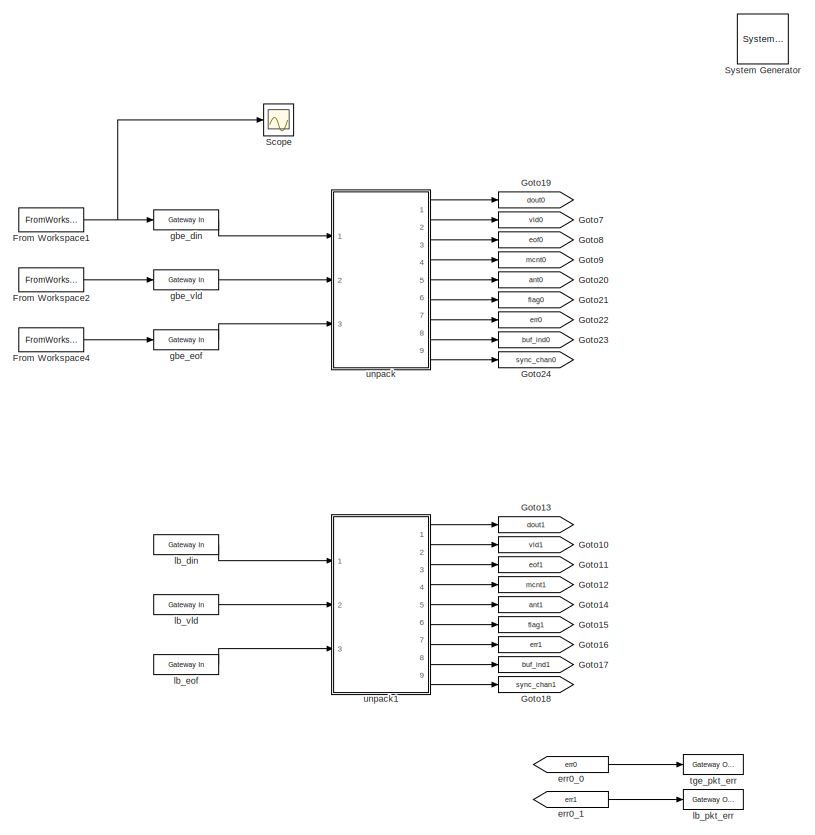
[diagram: root canvas - part 1/2, left side, full height]
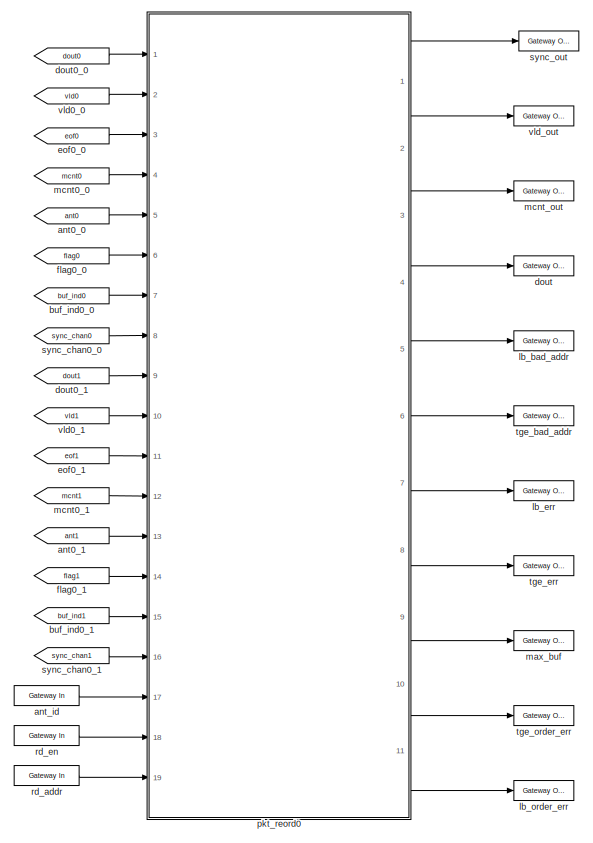
[diagram: root canvas - part 2/2, right side, full height]
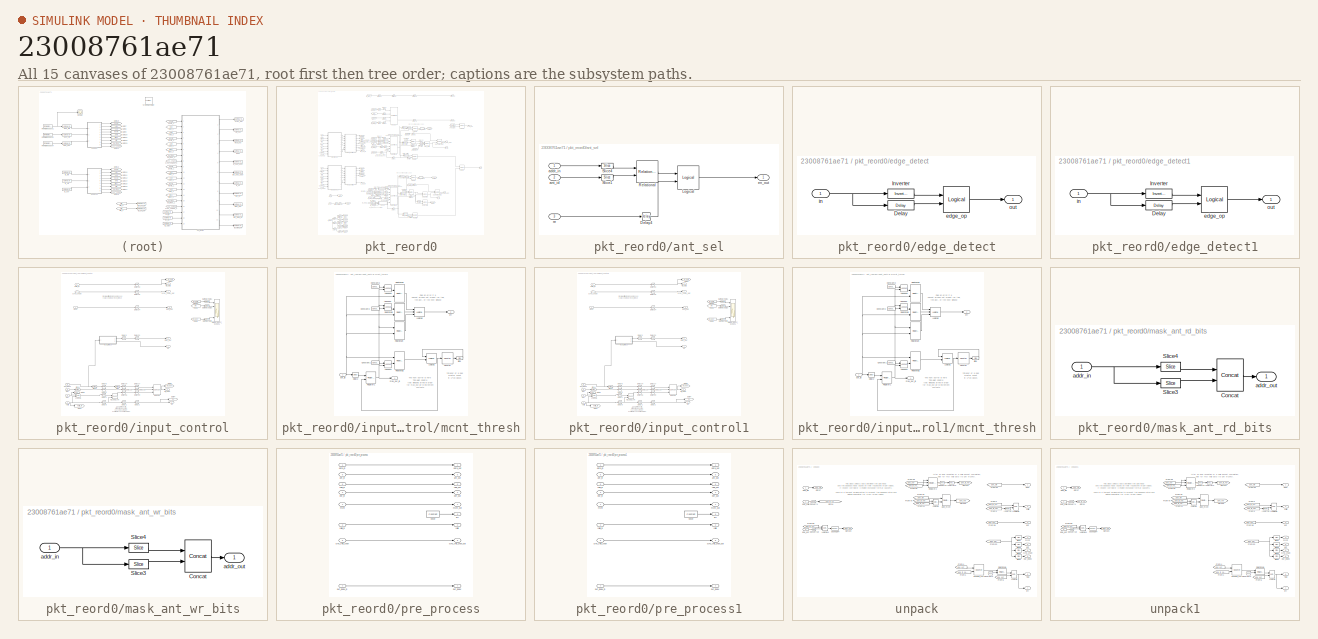
[diagram: thumbnail index - all 15 canvases of the model, root first then tree order]
MODEL slx_23008761ae71
KIND model
BLOCK [Reference]  System Generator  REF=xbsIndex_r4/ System Generator
  AttributesFormatString = System\nGenerator
  Impl_file = ISE Defaults
  Ports = []
  SourceBlock = xbsIndex_r4/ System Generator
  SourceType = Xilinx System Generator Block
  Synth_file = XST Defaults
  Tag = genX
  UserDataPersistent = on
  block_type = sysgen
  block_version = 10.1.3
  clock_wrapper = Clock Enables
  core_generation = According to Block Masks
  dbl_ovrd = According to Block Masks
  dcm_input_clock_period = 100
  deprecated_control = off
  directory = ./tge_rx_8a_core
  eval_field = 0
  has_advanced_control = 0
  incr_netlist = off
  infoedit = System Generator
  package = ff1759
  part = xc6vsx475t
  proj_type = Project Navigator
  run_coregen = off
  sg_icon_stat = 51,50,0,0,token,white,0,58c5b5770fe5f7c311f53dbc6e73f0f6,right,,[ ],[ ]
  sg_mask_display = fprintf('','COMMENT: begin icon graphics');\npatch([0 51 51 0 0 ],[0 0 50 50 0 ],[1 1 1 ]);\npatch([1.6375 16.81 27.31 37.81 48.31 27.31 12.1375 1.6375 ],[36.655 36.655 47.155 36.655 47.155 47.155 47.155 36.655 ],[0.933333 0.203922 0.141176 ]);\npatch([12.1375 27.31 16.81 1.6375 12.1375 ],[26.155 26.155 36.655 36.655 26.155 ],[0.698039 0.0313725 0.219608 ]);\npatch([1.6375 16.81 27.31 12.1375 1.6375 ]...<+327ch>
  sggui_pos = 500,144,464,470
  simulink_period = 1
  speed = -1
  synthesis_tool = XST
  sysclk_period = 3
  testbench = off
  trim_vbits = Everywhere in SubSystem
  xilinxfamily = virtex6
BLOCK [FromWorkspace] From Workspace1
  SampleTime = 1
  VariableName = sim_gbe_din
  ZeroCross = on
BLOCK [FromWorkspace] From Workspace2
  SampleTime = 1
  VariableName = sim_gbe_vld
  ZeroCross = on
BLOCK [FromWorkspace] From Workspace4
  SampleTime = 1
  VariableName = sim_gbe_eof
  ZeroCross = on
BLOCK [Goto] Goto10
  GotoTag = vld1
BLOCK [Goto] Goto11
  GotoTag = eof1
BLOCK [Goto] Goto12
  GotoTag = mcnt1
BLOCK [Goto] Goto13
  GotoTag = dout1
BLOCK [Goto] Goto14
  GotoTag = ant1
BLOCK [Goto] Goto15
  GotoTag = flag1
BLOCK [Goto] Goto16
  GotoTag = err1
BLOCK [Goto] Goto17
  GotoTag = buf_ind1
BLOCK [Goto] Goto18
  GotoTag = sync_chan1
BLOCK [Goto] Goto19
  GotoTag = dout0
BLOCK [Goto] Goto20
  GotoTag = ant0
BLOCK [Goto] Goto21
  GotoTag = flag0
BLOCK [Goto] Goto22
  GotoTag = err0
BLOCK [Goto] Goto23
  GotoTag = buf_ind0
BLOCK [Goto] Goto24
  GotoTag = sync_chan0
BLOCK [Goto] Goto7
  GotoTag = vld0
BLOCK [Goto] Goto8
  GotoTag = eof0
BLOCK [Goto] Goto9
  GotoTag = mcnt0
BLOCK [Scope] Scope
  DataFormat = StructureWithTime
  Floating = off
  NumInputPorts = 1
  Ports = [1]
  SampleTime = 0
  ShowLegends = off
BLOCK [From] ant0_0
  GotoTag = ant0
BLOCK [From] ant0_1
  GotoTag = ant1
BLOCK [Reference] ant_id  REF=xbsIndex_r4/Gateway In
  ADCChannel = '1'
  LOCs = {}
  Ports = [1, 1]
  SourceBlock = xbsIndex_r4/Gateway In
  SourceType = Xilinx Gateway In Block
  UseAsADC = off
  arith_type = Unsigned
  bin_pt = 0
  block_type = gatewayin
  dbl_ovrd = off
  exp_width = 8
  frac_width = 24
  gui_display_data_type = Fixed-point
  has_advanced_control = 0
  hdl_port = on
  infoedit = Gateway in block.  Converts inputs of type Simulink integer, single, double and fixed-point to  Xilinx fixed-point or floating-point data type.<br><br>Hardware notes:  In hardware these blocks become top level input ports.  <repeated x9 — deduplicated; at blocks: ant_id, gbe_din, gbe_eof, gbe_vld, lb_din, lb_eof, lb_vld, rd_addr, rd_en>
  inherit_from_input = off
  locs_specified = off
  n_bits = 4
  overflow = Wrap
  period = 1
  preci_type = Single
  quantization = Truncate
  sg_icon_stat = 65,20,1,1,white,yellow,1,00d3666e,right,,[ ],[ ]
  sg_mask_display = fprintf('','COMMENT: begin icon graphics');\npatch([0 65 65 0 0 ],[0 0 20 20 0 ],[0.95 0.93 0.65 ]);\nplot([0 65 65 0 0 ],[0 0 20 20 0 ]);\npatch([27.55 30.44 32.44 34.44 36.44 32.44 29.55 27.55 ],[12.22 12.22 14.22 12.22 14.22 14.22 14.22 12.22 ],[1 1 1 ]);\npatch([29.55 32.44 30.44 27.55 29.55 ],[10.22 10.22 12.22 12.22 10.22 ],[0.985 0.979 0.895 ]);\npatch([27.55 30.44 32.44 29.55 27.55 ],[8.22 8.22...<+383ch>  <repeated x9 — deduplicated; at blocks: ant_id, gbe_din, gbe_eof, gbe_vld, lb_din, lb_eof, lb_vld, rd_addr, rd_en>
  sggui_pos = -1,17,481,695
  timing_constraint = None
  xl_area = [0,0,0,0,0,0,0]
  xl_use_area = off
BLOCK [From] buf_ind0_0
  GotoTag = buf_ind0
BLOCK [From] buf_ind0_1
  GotoTag = buf_ind1
BLOCK [Reference] dout  REF=xbsIndex_r4/Gateway Out
  DACChannel = '1'
  LOCs = {}
  Ports = [1, 1]
  SourceBlock = xbsIndex_r4/Gateway Out
  SourceType = Xilinx Gateway Out Block
  UseAsDAC = off
  block_type = gatewayout
  has_advanced_control = 0
  hdl_port = on
  infoedit = Gateway out block.  Converts Xilinx fixed-point or floating-point type inputs into ouputs of type Simulink integer, single, double, or fixed-point.<br><br>Hardware notes:  In hardware these blocks become top level output ports or are discarded, depending on how they are configured.  <repeated x13 — deduplicated; at blocks: dout, lb_bad_addr, lb_err, lb_order_err, lb_pkt_err, max_buf, mcnt_out, sync_out, tge_bad_addr, tge_err, tge_order_err, tge_pkt_err, vld_out>
  inherit_from_input = off
  locs_specified = off
  sg_icon_stat = 60,20,1,1,white,yellow,1,cc31b7ac,right,,[ ],[ ]
  sg_mask_display = fprintf('','COMMENT: begin icon graphics');\npatch([0 60 60 0 0 ],[0 0 20 20 0 ],[0.95 0.93 0.65 ]);\nplot([0 60 60 0 0 ],[0 0 20 20 0 ]);\npatch([25.55 28.44 30.44 32.44 34.44 30.44 27.55 25.55 ],[12.22 12.22 14.22 12.22 14.22 14.22 14.22 12.22 ],[1 1 1 ]);\npatch([27.55 30.44 28.44 25.55 27.55 ],[10.22 10.22 12.22 12.22 10.22 ],[0.985 0.979 0.895 ]);\npatch([25.55 28.44 30.44 27.55 25.55 ],[8.22 8.22...<+384ch>  <repeated x13 — deduplicated; at blocks: dout, lb_bad_addr, lb_err, lb_order_err, lb_pkt_err, max_buf, mcnt_out, sync_out, tge_bad_addr, tge_err, tge_order_err, tge_pkt_err, vld_out>
  sggui_pos = 13,17,465,671
  timing_constraint = None
  xl_area = [0,0,0,0,0,0,0]
  xl_use_area = off
BLOCK [From] dout0_0
  GotoTag = dout0
BLOCK [From] dout0_1
  GotoTag = dout1
BLOCK [From] eof0_0
  GotoTag = eof0
BLOCK [From] eof0_1
  GotoTag = eof1
BLOCK [From] err0_0
  GotoTag = err0
BLOCK [From] err0_1
  GotoTag = err1
BLOCK [From] flag0_0
  GotoTag = flag0
BLOCK [From] flag0_1
  GotoTag = flag1
BLOCK [Reference] gbe_din  REF=xbsIndex_r4/Gateway In
  ADCChannel = '1'
  LOCs = {}
  Ports = [1, 1]
  SourceBlock = xbsIndex_r4/Gateway In
  SourceType = Xilinx Gateway In Block
  UseAsADC = off
  arith_type = Unsigned
  bin_pt = 0
  block_type = gatewayin
  dbl_ovrd = off
  exp_width = 8
  frac_width = 24
  gui_display_data_type = Fixed-point
  has_advanced_control = 0
  hdl_port = on
  inherit_from_input = off
  locs_specified = off
  n_bits = 64
  overflow = Wrap
  period = 1
  preci_type = Single
  quantization = Truncate
  sg_icon_stat = 65,20,1,1,white,yellow,1,00d3666e,right,,[ ],[ ]
  sggui_pos = 13,17,481,695
  timing_constraint = None
  xl_area = [0,0,0,0,0,0,0]
  xl_use_area = off
BLOCK [Reference] gbe_eof  REF=xbsIndex_r4/Gateway In
  ADCChannel = '1'
  LOCs = {}
  Ports = [1, 1]
  SourceBlock = xbsIndex_r4/Gateway In
  SourceType = Xilinx Gateway In Block
  UseAsADC = off
  arith_type = Boolean
  bin_pt = 0
  block_type = gatewayin
  dbl_ovrd = off
  exp_width = 8
  frac_width = 24
  gui_display_data_type = Boolean
  has_advanced_control = 0
  hdl_port = on
  inherit_from_input = off
  locs_specified = off
  n_bits = 64
  overflow = Wrap
  period = 1
  preci_type = Single
  quantization = Truncate
  sg_icon_stat = 65,20,1,1,white,yellow,1,00d3666e,right,,[ ],[ ]
  sggui_pos = -1,17,481,695
  timing_constraint = None
  xl_area = [0,0,0,0,0,0,0]
  xl_use_area = off
BLOCK [Reference] gbe_vld  REF=xbsIndex_r4/Gateway In
  ADCChannel = '1'
  LOCs = {}
  Ports = [1, 1]
  SourceBlock = xbsIndex_r4/Gateway In
  SourceType = Xilinx Gateway In Block
  UseAsADC = off
  arith_type = Boolean
  bin_pt = 0
  block_type = gatewayin
  dbl_ovrd = off
  exp_width = 8
  frac_width = 24
  gui_display_data_type = Boolean
  has_advanced_control = 0
  hdl_port = on
  inherit_from_input = off
  locs_specified = off
  n_bits = 64
  overflow = Wrap
  period = 1
  preci_type = Single
  quantization = Truncate
  sg_icon_stat = 65,20,1,1,white,yellow,1,00d3666e,right,,[ ],[ ]
  sggui_pos = 6,17,481,695
  timing_constraint = None
  xl_area = [0,0,0,0,0,0,0]
  xl_use_area = off
BLOCK [Reference] lb_bad_addr  REF=xbsIndex_r4/Gateway Out
  DACChannel = '1'
  LOCs = {}
  Ports = [1, 1]
  SourceBlock = xbsIndex_r4/Gateway Out
  SourceType = Xilinx Gateway Out Block
  UseAsDAC = off
  block_type = gatewayout
  has_advanced_control = 0
  hdl_port = on
  inherit_from_input = off
  locs_specified = off
  sg_icon_stat = 60,20,1,1,white,yellow,1,cc31b7ac,right,,[ ],[ ]
  sggui_pos = 13,17,465,671
  timing_constraint = None
  xl_area = [0,0,0,0,0,0,0]
  xl_use_area = off
BLOCK [Reference] lb_din  REF=xbsIndex_r4/Gateway In
  ADCChannel = '1'
  LOCs = {}
  Ports = [1, 1]
  SourceBlock = xbsIndex_r4/Gateway In
  SourceType = Xilinx Gateway In Block
  UseAsADC = off
  arith_type = Unsigned
  bin_pt = 0
  block_type = gatewayin
  dbl_ovrd = off
  exp_width = 8
  frac_width = 24
  gui_display_data_type = Fixed-point
  has_advanced_control = 0
  hdl_port = on
  inherit_from_input = off
  locs_specified = off
  n_bits = 64
  overflow = Wrap
  period = 1
  preci_type = Single
  quantization = Truncate
  sg_icon_stat = 65,20,1,1,white,yellow,1,00d3666e,right,,[ ],[ ]
  sggui_pos = 13,17,481,695
  timing_constraint = None
  xl_area = [0,0,0,0,0,0,0]
  xl_use_area = off
BLOCK [Reference] lb_eof  REF=xbsIndex_r4/Gateway In
  ADCChannel = '1'
  LOCs = {}
  Ports = [1, 1]
  SourceBlock = xbsIndex_r4/Gateway In
  SourceType = Xilinx Gateway In Block
  UseAsADC = off
  arith_type = Boolean
  bin_pt = 0
  block_type = gatewayin
  dbl_ovrd = off
  exp_width = 8
  frac_width = 24
  gui_display_data_type = Boolean
  has_advanced_control = 0
  hdl_port = on
  inherit_from_input = off
  locs_specified = off
  n_bits = 64
  overflow = Wrap
  period = 1
  preci_type = Single
  quantization = Truncate
  sg_icon_stat = 65,20,1,1,white,yellow,1,00d3666e,right,,[ ],[ ]
  sggui_pos = -1,17,481,695
  timing_constraint = None
  xl_area = [0,0,0,0,0,0,0]
  xl_use_area = off
BLOCK [Reference] lb_err  REF=xbsIndex_r4/Gateway Out
  DACChannel = '1'
  LOCs = {}
  Ports = [1, 1]
  SourceBlock = xbsIndex_r4/Gateway Out
  SourceType = Xilinx Gateway Out Block
  UseAsDAC = off
  block_type = gatewayout
  has_advanced_control = 0
  hdl_port = on
  inherit_from_input = off
  locs_specified = off
  sg_icon_stat = 60,20,1,1,white,yellow,1,cc31b7ac,right,,[ ],[ ]
  sggui_pos = 13,17,465,671
  timing_constraint = None
  xl_area = [0,0,0,0,0,0,0]
  xl_use_area = off
BLOCK [Reference] lb_order_err  REF=xbsIndex_r4/Gateway Out
  DACChannel = '1'
  LOCs = {}
  Ports = [1, 1]
  SourceBlock = xbsIndex_r4/Gateway Out
  SourceType = Xilinx Gateway Out Block
  UseAsDAC = off
  block_type = gatewayout
  has_advanced_control = 0
  hdl_port = on
  inherit_from_input = off
  locs_specified = off
  sg_icon_stat = 60,20,1,1,white,yellow,1,cc31b7ac,right,,[ ],[ ]
  sggui_pos = 6,17,465,671
  timing_constraint = None
  xl_area = [0,0,0,0,0,0,0]
  xl_use_area = off
BLOCK [Reference] lb_pkt_err  REF=xbsIndex_r4/Gateway Out
  DACChannel = '1'
  LOCs = {}
  Ports = [1, 1]
  SourceBlock = xbsIndex_r4/Gateway Out
  SourceType = Xilinx Gateway Out Block
  UseAsDAC = off
  block_type = gatewayout
  has_advanced_control = 0
  hdl_port = on
  inherit_from_input = off
  locs_specified = off
  sg_icon_stat = 60,20,1,1,white,yellow,1,cc31b7ac,right,,[ ],[ ]
  sggui_pos = 13,17,465,671
  timing_constraint = None
  xl_area = [0,0,0,0,0,0,0]
  xl_use_area = off
BLOCK [Reference] lb_vld  REF=xbsIndex_r4/Gateway In
  ADCChannel = '1'
  LOCs = {}
  Ports = [1, 1]
  SourceBlock = xbsIndex_r4/Gateway In
  SourceType = Xilinx Gateway In Block
  UseAsADC = off
  arith_type = Boolean
  bin_pt = 0
  block_type = gatewayin
  dbl_ovrd = off
  exp_width = 8
  frac_width = 24
  gui_display_data_type = Boolean
  has_advanced_control = 0
  hdl_port = on
  inherit_from_input = off
  locs_specified = off
  n_bits = 64
  overflow = Wrap
  period = 1
  preci_type = Single
  quantization = Truncate
  sg_icon_stat = 65,20,1,1,white,yellow,1,00d3666e,right,,[ ],[ ]
  sggui_pos = 6,17,481,695
  timing_constraint = None
  xl_area = [0,0,0,0,0,0,0]
  xl_use_area = off
BLOCK [Reference] max_buf  REF=xbsIndex_r4/Gateway Out
  DACChannel = '1'
  LOCs = {}
  Ports = [1, 1]
  SourceBlock = xbsIndex_r4/Gateway Out
  SourceType = Xilinx Gateway Out Block
  UseAsDAC = off
  block_type = gatewayout
  has_advanced_control = 0
  hdl_port = on
  inherit_from_input = off
  locs_specified = off
  sg_icon_stat = 60,20,1,1,white,yellow,1,cc31b7ac,right,,[ ],[ ]
  sggui_pos = 13,17,465,671
  timing_constraint = None
  xl_area = [0,0,0,0,0,0,0]
  xl_use_area = off
BLOCK [From] mcnt0_0
  GotoTag = mcnt0
BLOCK [From] mcnt0_1
  GotoTag = mcnt1
BLOCK [Reference] mcnt_out  REF=xbsIndex_r4/Gateway Out
  DACChannel = '1'
  LOCs = {}
  Ports = [1, 1]
  SourceBlock = xbsIndex_r4/Gateway Out
  SourceType = Xilinx Gateway Out Block
  UseAsDAC = off
  block_type = gatewayout
  has_advanced_control = 0
  hdl_port = on
  inherit_from_input = off
  locs_specified = off
  sg_icon_stat = 60,20,1,1,white,yellow,1,cc31b7ac,right,,[ ],[ ]
  sggui_pos = 13,17,465,671
  timing_constraint = None
  xl_area = [0,0,0,0,0,0,0]
  xl_use_area = off
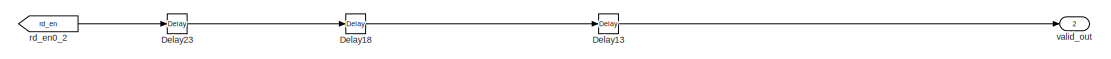
[diagram: pkt_reord0 - part 1/6, top center region]
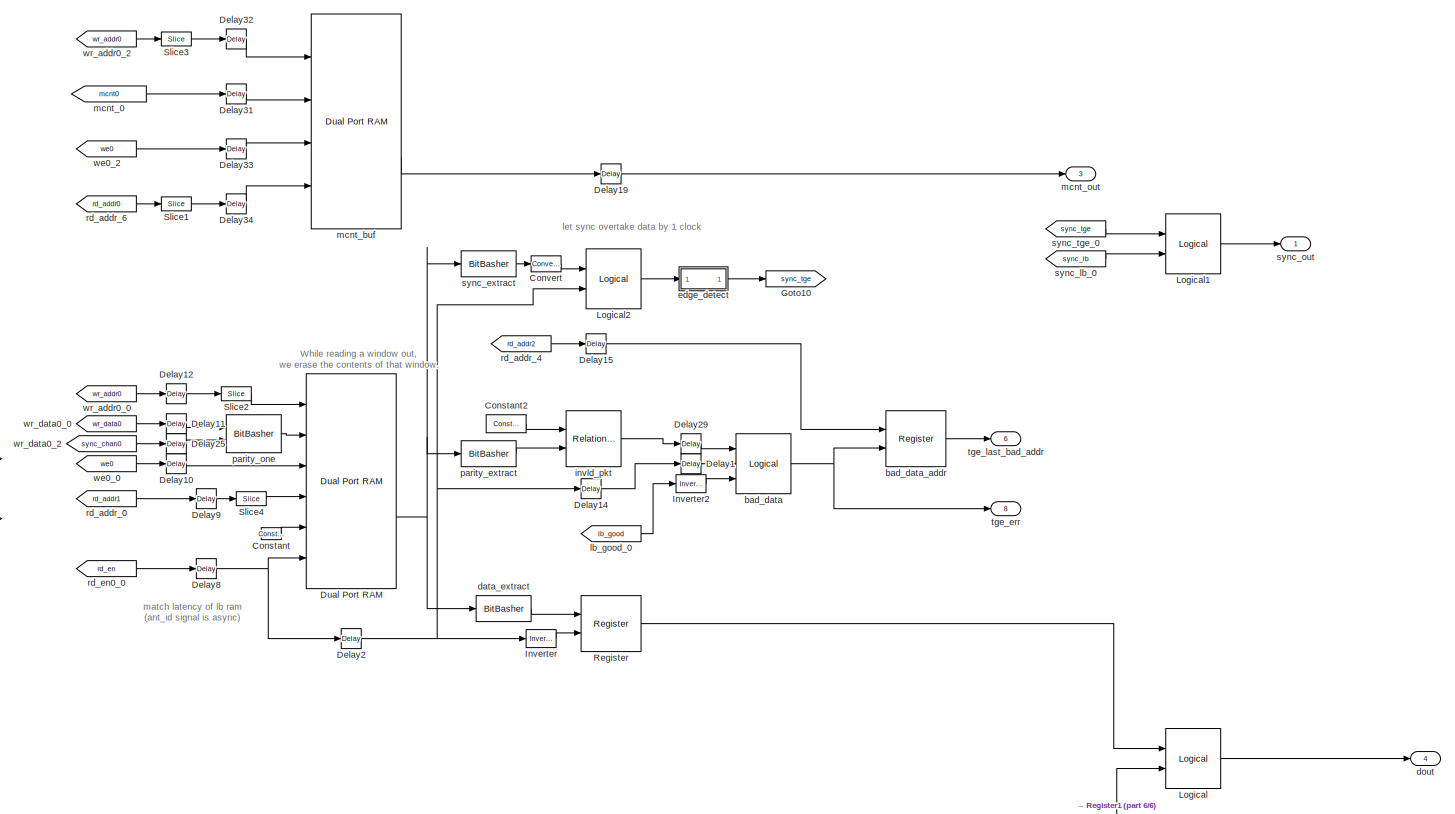
[diagram: pkt_reord0 - part 2/6, top center region]
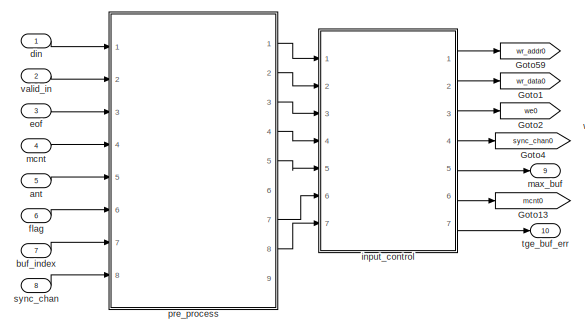
[diagram: pkt_reord0 - part 3/6, middle left region]
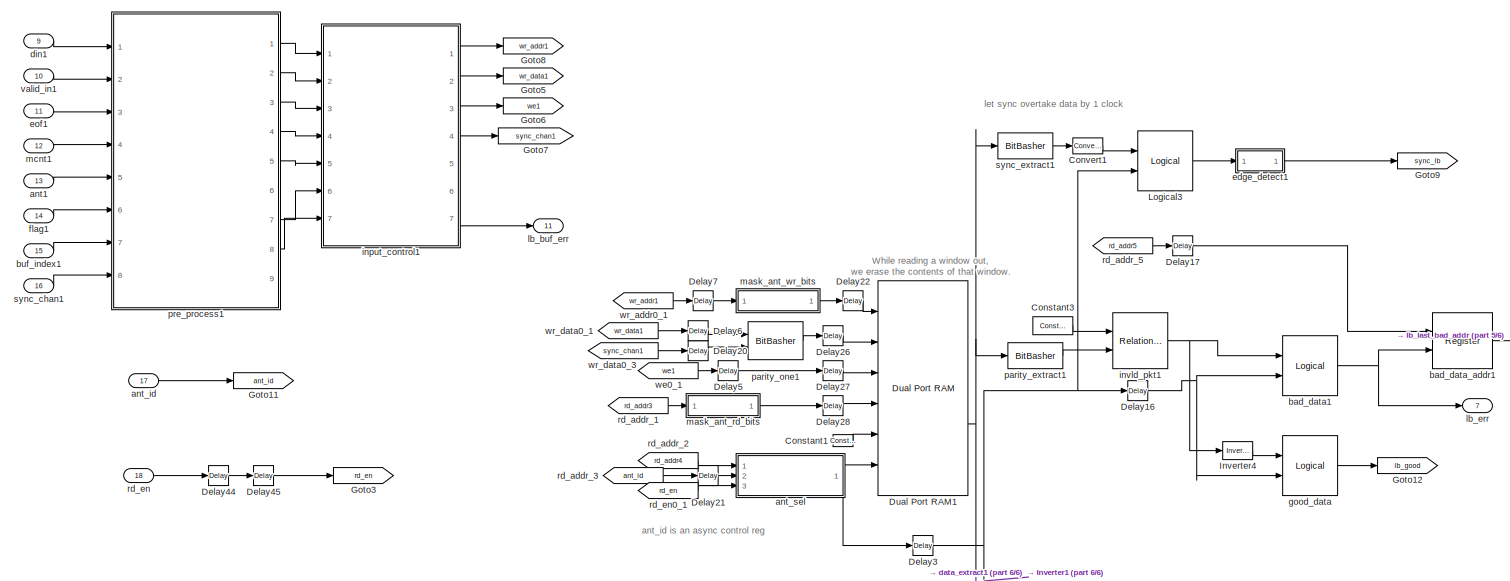
[diagram: pkt_reord0 - part 4/6, full width, bottom band]
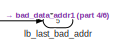
[diagram: pkt_reord0 - part 5/6, bottom right region]
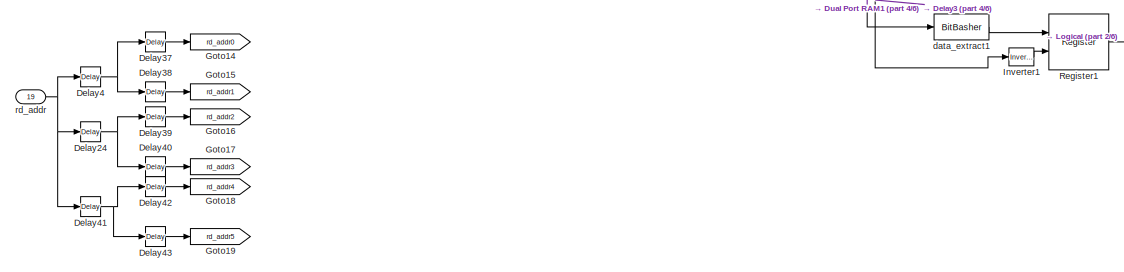
[diagram: pkt_reord0 - part 6/6, bottom left region]
BLOCK [SubSystem] pkt_reord0
  AttributesFormatString = Payload Len: 16
  FunctionWithSeparateData = off
  MaskHideContents = off
  MinAlgLoopOccurrences = off
  Opaque = off
  Ports = [19, 11]
  PropExecContextOutsideSubsystem = off
  RTWSystemCode = Auto
  RequestExecContextInheritance = off
BLOCK [Reference] pkt_reord0/Constant  REF=xbsIndex_r4/Constant
  Ports = [0, 1]
  SourceBlock = xbsIndex_r4/Constant
  SourceType = Xilinx Constant Block Block
  arith_type = Unsigned
  bin_pt = 0
  block_type = constant
  block_version = 10.1.3
  carry = CIN
  const = 0
  dbl_ovrd = off
  dsp48_infoedit = The use of this block for DSP48 instructions is deprecated.  Please use the Opmode block.
  equ = P=C
  exp_width = 8
  explicit_period = on
  frac_width = 24
  gui_display_data_type = Fixed-point
  has_advanced_control = 0
  inp1 = P
  inp2 = PCIN>>17
  n_bits = 9*(2^x_parallel_bits)
  opr = +
  opselect = C
  period = 1
  preci_type = Single
  sg_icon_stat = 20,12,0,1,white,blue,0,bf4ddd8b,right,,[ ],[ ]
  sg_mask_display = fprintf('','COMMENT: begin icon graphics');\npatch([0 20 20 0 0 ],[0 0 12 12 0 ],[0.77 0.82 0.91 ]);\nplot([0 20 20 0 0 ],[0 0 12 12 0 ]);\npatch([7.775 9.22 10.22 11.22 12.22 10.22 8.775 7.775 ],[7.11 7.11 8.11 7.11 8.11 8.11 8.11 7.11 ],[1 1 1 ]);\npatch([8.775 10.22 9.22 7.775 8.775 ],[6.11 6.11 7.11 7.11 6.11 ],[0.931 0.946 0.973 ]);\npatch([7.775 9.22 10.22 8.775 7.775 ],[5.11 5.11 6.11 6.11 5.11 ...<+286ch>
  sggui_pos = 920,320,421,478
BLOCK [Reference] pkt_reord0/Constant1  REF=xbsIndex_r4/Constant
  Ports = [0, 1]
  SourceBlock = xbsIndex_r4/Constant
  SourceType = Xilinx Constant Block Block
  arith_type = Unsigned
  bin_pt = 0
  block_type = constant
  block_version = 10.1.3
  carry = CIN
  const = 0
  dbl_ovrd = off
  dsp48_infoedit = The use of this block for DSP48 instructions is deprecated.  Please use the Opmode block.
  equ = P=C
  exp_width = 8
  explicit_period = on
  frac_width = 24
  gui_display_data_type = Fixed-point
  has_advanced_control = 0
  inp1 = P
  inp2 = PCIN>>17
  n_bits = 9*(2^x_parallel_bits)
  opr = +
  opselect = C
  period = 1
  preci_type = Single
  sg_icon_stat = 20,12,0,1,white,blue,0,bf4ddd8b,right,,[ ],[ ]
  sg_mask_display = fprintf('','COMMENT: begin icon graphics');\npatch([0 20 20 0 0 ],[0 0 12 12 0 ],[0.77 0.82 0.91 ]);\nplot([0 20 20 0 0 ],[0 0 12 12 0 ]);\npatch([7.775 9.22 10.22 11.22 12.22 10.22 8.775 7.775 ],[7.11 7.11 8.11 7.11 8.11 8.11 8.11 7.11 ],[1 1 1 ]);\npatch([8.775 10.22 9.22 7.775 8.775 ],[6.11 6.11 7.11 7.11 6.11 ],[0.931 0.946 0.973 ]);\npatch([7.775 9.22 10.22 8.775 7.775 ],[5.11 5.11 6.11 6.11 5.11 ...<+286ch>
  sggui_pos = 934,334,421,478
BLOCK [Reference] pkt_reord0/Constant2  REF=xbsIndex_r4/Constant
  Ports = [0, 1]
  SourceBlock = xbsIndex_r4/Constant
  SourceType = Xilinx Constant Block Block
  arith_type = Unsigned
  bin_pt = 0
  block_type = constant
  block_version = 10.1.3
  carry = CIN
  const = 3
  dbl_ovrd = off
  dsp48_infoedit = The use of this block for DSP48 instructions is deprecated.  Please use the Opmode block.
  equ = P=C
  exp_width = 8
  explicit_period = on
  frac_width = 24
  gui_display_data_type = Fixed-point
  has_advanced_control = 0
  inp1 = P
  inp2 = PCIN>>17
  n_bits = 2
  opr = +
  opselect = C
  period = 1
  preci_type = Single
  sg_icon_stat = 40,18,0,1,white,blue,0,279a71c8,right,,[ ],[ ]
  sg_mask_display = fprintf('','COMMENT: begin icon graphics');\npatch([0 40 40 0 0 ],[0 0 18 18 0 ],[0.77 0.82 0.91 ]);\nplot([0 40 40 0 0 ],[0 0 18 18 0 ]);\npatch([15.55 18.44 20.44 22.44 24.44 20.44 17.55 15.55 ],[11.22 11.22 13.22 11.22 13.22 13.22 13.22 11.22 ],[1 1 1 ]);\npatch([17.55 20.44 18.44 15.55 17.55 ],[9.22 9.22 11.22 11.22 9.22 ],[0.931 0.946 0.973 ]);\npatch([15.55 18.44 20.44 17.55 15.55 ],[7.22 7.22 9....<+300ch>
  sggui_pos = 906,306,421,478
BLOCK [Reference] pkt_reord0/Constant3  REF=xbsIndex_r4/Constant
  Ports = [0, 1]
  SourceBlock = xbsIndex_r4/Constant
  SourceType = Xilinx Constant Block Block
  arith_type = Unsigned
  bin_pt = 0
  block_type = constant
  block_version = 10.1.3
  carry = CIN
  const = 3
  dbl_ovrd = off
  dsp48_infoedit = The use of this block for DSP48 instructions is deprecated.  Please use the Opmode block.
  equ = P=C
  exp_width = 8
  explicit_period = on
  frac_width = 24
  gui_display_data_type = Fixed-point
  has_advanced_control = 0
  inp1 = P
  inp2 = PCIN>>17
  n_bits = 2
  opr = +
  opselect = C
  period = 1
  preci_type = Single
  sg_icon_stat = 40,18,0,1,white,blue,0,279a71c8,right,,[ ],[ ]
  sg_mask_display = fprintf('','COMMENT: begin icon graphics');\npatch([0 40 40 0 0 ],[0 0 18 18 0 ],[0.77 0.82 0.91 ]);\nplot([0 40 40 0 0 ],[0 0 18 18 0 ]);\npatch([15.55 18.44 20.44 22.44 24.44 20.44 17.55 15.55 ],[11.22 11.22 13.22 11.22 13.22 13.22 13.22 11.22 ],[1 1 1 ]);\npatch([17.55 20.44 18.44 15.55 17.55 ],[9.22 9.22 11.22 11.22 9.22 ],[0.931 0.946 0.973 ]);\npatch([15.55 18.44 20.44 17.55 15.55 ],[7.22 7.22 9....<+300ch>
  sggui_pos = 906,306,421,478
BLOCK [Reference] pkt_reord0/Convert  REF=xbsIndex_r4/Convert
  Ports = [1, 1]
  SourceBlock = xbsIndex_r4/Convert
  SourceType = Xilinx Type Converter Block
  arith_type = Boolean
  bin_pt = 0
  block_type = convert
  block_version = 11.4
  dbl_ovrd = off
  en = off
  exp_bits = 8
  float_type = Single
  fraction_bits = 24
  gui_display_data_type = Boolean
  has_advanced_control = 0
  infoedit = Hardware notes: rounding and saturating require hardware resources; truncating and wrapping do not.
  latency = 0
  n_bits = 3
  overflow = Wrap
  pipeline = off
  quantization = Truncate
  sg_icon_stat = 30,16,1,1,white,blue,0,edca21da,right,,[ ],[ ]
  sg_mask_display = fprintf('','COMMENT: begin icon graphics');\npatch([0 30 30 0 0 ],[0 0 16 16 0 ],[0.77 0.82 0.91 ]);\nplot([0 30 30 0 0 ],[0 0 16 16 0 ]);\npatch([10.55 13.44 15.44 17.44 19.44 15.44 12.55 10.55 ],[10.22 10.22 12.22 10.22 12.22 12.22 12.22 10.22 ],[1 1 1 ]);\npatch([12.55 15.44 13.44 10.55 12.55 ],[8.22 8.22 10.22 10.22 8.22 ],[0.931 0.946 0.973 ]);\npatch([10.55 13.44 15.44 12.55 10.55 ],[6.22 6.22 8....<+304ch>
  sggui_pos = 13,17,636,659
  xl_area = [0,0,0,0,0,0,0]
  xl_use_area = off
BLOCK [Reference] pkt_reord0/Convert1  REF=xbsIndex_r4/Convert
  Ports = [1, 1]
  SourceBlock = xbsIndex_r4/Convert
  SourceType = Xilinx Type Converter Block
  arith_type = Boolean
  bin_pt = 0
  block_type = convert
  block_version = 11.4
  dbl_ovrd = off
  en = off
  exp_bits = 8
  float_type = Single
  fraction_bits = 24
  gui_display_data_type = Boolean
  has_advanced_control = 0
  infoedit = Hardware notes: rounding and saturating require hardware resources; truncating and wrapping do not.
  latency = 0
  n_bits = 3
  overflow = Wrap
  pipeline = off
  quantization = Truncate
  sg_icon_stat = 30,16,1,1,white,blue,0,edca21da,right,,[ ],[ ]
  sg_mask_display = fprintf('','COMMENT: begin icon graphics');\npatch([0 30 30 0 0 ],[0 0 16 16 0 ],[0.77 0.82 0.91 ]);\nplot([0 30 30 0 0 ],[0 0 16 16 0 ]);\npatch([10.55 13.44 15.44 17.44 19.44 15.44 12.55 10.55 ],[10.22 10.22 12.22 10.22 12.22 12.22 12.22 10.22 ],[1 1 1 ]);\npatch([12.55 15.44 13.44 10.55 12.55 ],[8.22 8.22 10.22 10.22 8.22 ],[0.931 0.946 0.973 ]);\npatch([10.55 13.44 15.44 12.55 10.55 ],[6.22 6.22 8....<+304ch>
  sggui_pos = 13,17,636,659
  xl_area = [0,0,0,0,0,0,0]
  xl_use_area = off
BLOCK [Reference] pkt_reord0/Delay1  REF=xbsIndex_r4/Delay
  Ports = [1, 1]
  SourceBlock = xbsIndex_r4/Delay
  SourceType = Xilinx Delay Block
  block_type = delay
  block_version = 10.1.3
  dbl_ovrd = off
  en = off
  has_advanced_control = 0
  infoedit = Hardware notes: A delay line is a chain, each link of which is an SRL16 followed by a flip-flop.
  infoeditControl = Selection of Reset will increase slice count due to use of real FFs and instead of SRLs
  latency = 1
  reg_retiming = on
  rst = off
  sg_icon_stat = 20,20,1,1,white,blue,0,07b98262,right,,[ ],[ ]
  sg_mask_display = fprintf('','COMMENT: begin icon graphics');\npatch([0 20 20 0 0 ],[0 0 20 20 0 ],[0.77 0.82 0.91 ]);\nplot([0 20 20 0 0 ],[0 0 20 20 0 ]);\npatch([5.55 8.44 10.44 12.44 14.44 10.44 7.55 5.55 ],[12.22 12.22 14.22 12.22 14.22 14.22 14.22 12.22 ],[1 1 1 ]);\npatch([7.55 10.44 8.44 5.55 7.55 ],[10.22 10.22 12.22 12.22 10.22 ],[0.931 0.946 0.973 ]);\npatch([5.55 8.44 10.44 7.55 5.55 ],[8.22 8.22 10.22 10.22...<+294ch>  <repeated x43 — deduplicated; at blocks: Delay1, Delay10, Delay11, Delay12, Delay13, Delay14, Delay15, Delay16, Delay17, Delay18, Delay19, Delay2, Delay20, Delay21, Delay22, Delay23, +26 more>
  sggui_pos = -1,17,592,473
  xl_area = [0, 0, 0, 0, 0, 0, 0]
  xl_use_area = off
BLOCK [Reference] pkt_reord0/Delay10  REF=xbsIndex_r4/Delay
  Ports = [1, 1]
  SourceBlock = xbsIndex_r4/Delay
  SourceType = Xilinx Delay Block
  block_type = delay
  block_version = 10.1.3
  dbl_ovrd = off
  en = off
  has_advanced_control = 0
  infoedit = Hardware notes: A delay line is a chain, each link of which is an SRL16 followed by a flip-flop.
  infoeditControl = Selection of Reset will increase slice count due to use of real FFs and instead of SRLs
  latency = 1
  reg_retiming = on
  rst = off
  sg_icon_stat = 20,20,1,1,white,blue,0,07b98262,right,,[ ],[ ]
  sggui_pos = 13,17,481,387
  xl_area = [0, 0, 0, 0, 0, 0, 0]
  xl_use_area = off
BLOCK [Reference] pkt_reord0/Delay11  REF=xbsIndex_r4/Delay
  Ports = [1, 1]
  SourceBlock = xbsIndex_r4/Delay
  SourceType = Xilinx Delay Block
  block_type = delay
  block_version = 10.1.3
  dbl_ovrd = off
  en = off
  has_advanced_control = 0
  infoedit = Hardware notes: A delay line is a chain, each link of which is an SRL16 followed by a flip-flop.
  infoeditControl = Selection of Reset will increase slice count due to use of real FFs and instead of SRLs
  latency = 1
  reg_retiming = on
  rst = off
  sg_icon_stat = 20,20,1,1,white,blue,0,07b98262,right,,[ ],[ ]
  sggui_pos = 6,17,592,473
  xl_area = [0, 0, 0, 0, 0, 0, 0]
  xl_use_area = off
BLOCK [Reference] pkt_reord0/Delay12  REF=xbsIndex_r4/Delay
  Ports = [1, 1]
  SourceBlock = xbsIndex_r4/Delay
  SourceType = Xilinx Delay Block
  block_type = delay
  block_version = 10.1.3
  dbl_ovrd = off
  en = off
  has_advanced_control = 0
  infoedit = Hardware notes: A delay line is a chain, each link of which is an SRL16 followed by a flip-flop.
  infoeditControl = Selection of Reset will increase slice count due to use of real FFs and instead of SRLs
  latency = 1
  reg_retiming = on
  rst = off
  sg_icon_stat = 20,20,1,1,white,blue,0,07b98262,right,,[ ],[ ]
  sggui_pos = 13,17,592,473
  xl_area = [0, 0, 0, 0, 0, 0, 0]
  xl_use_area = off
BLOCK [Reference] pkt_reord0/Delay13  REF=xbsIndex_r4/Delay
  Ports = [1, 1]
  SourceBlock = xbsIndex_r4/Delay
  SourceType = Xilinx Delay Block
  block_type = delay
  block_version = 10.1.3
  dbl_ovrd = off
  en = off
  has_advanced_control = 0
  infoedit = Hardware notes: A delay line is a chain, each link of which is an SRL16 followed by a flip-flop.
  infoeditControl = Selection of Reset will increase slice count due to use of real FFs and instead of SRLs
  latency = 1
  reg_retiming = on
  rst = off
  sg_icon_stat = 20,20,1,1,white,blue,0,07b98262,right,,[ ],[ ]
  sggui_pos = 13,17,481,387
  xl_area = [0, 0, 0, 0, 0, 0, 0]
  xl_use_area = off
BLOCK [Reference] pkt_reord0/Delay14  REF=xbsIndex_r4/Delay
  Ports = [1, 1]
  SourceBlock = xbsIndex_r4/Delay
  SourceType = Xilinx Delay Block
  block_type = delay
  block_version = 10.1.3
  dbl_ovrd = off
  en = off
  has_advanced_control = 0
  infoedit = Hardware notes: A delay line is a chain, each link of which is an SRL16 followed by a flip-flop.
  infoeditControl = Selection of Reset will increase slice count due to use of real FFs and instead of SRLs
  latency = 1
  reg_retiming = off
  rst = off
  sg_icon_stat = 20,20,1,1,white,blue,0,07b98262,right,,[ ],[ ]
  sggui_pos = 6,17,592,473
  xl_area = [0, 0, 0, 0, 0, 0, 0]
  xl_use_area = off
BLOCK [Reference] pkt_reord0/Delay15  REF=xbsIndex_r4/Delay
  Ports = [1, 1]
  SourceBlock = xbsIndex_r4/Delay
  SourceType = Xilinx Delay Block
  block_type = delay
  block_version = 10.1.3
  dbl_ovrd = off
  en = off
  has_advanced_control = 0
  infoedit = Hardware notes: A delay line is a chain, each link of which is an SRL16 followed by a flip-flop.
  infoeditControl = Selection of Reset will increase slice count due to use of real FFs and instead of SRLs
  latency = 7
  reg_retiming = off
  rst = off
  sg_icon_stat = 20,20,1,1,white,blue,0,d93bb731,right,,[ ],[ ]
  sggui_pos = -1,17,592,473
  xl_area = [0, 0, 0, 0, 0, 0, 0]
  xl_use_area = off
BLOCK [Reference] pkt_reord0/Delay16  REF=xbsIndex_r4/Delay
  Ports = [1, 1]
  SourceBlock = xbsIndex_r4/Delay
  SourceType = Xilinx Delay Block
  block_type = delay
  block_version = 10.1.3
  dbl_ovrd = off
  en = off
  has_advanced_control = 0
  infoedit = Hardware notes: A delay line is a chain, each link of which is an SRL16 followed by a flip-flop.
  infoeditControl = Selection of Reset will increase slice count due to use of real FFs and instead of SRLs
  latency = 1
  reg_retiming = off
  rst = off
  sg_icon_stat = 20,20,1,1,white,blue,0,07b98262,right,,[ ],[ ]
  sggui_pos = 6,17,481,387
  xl_area = [0, 0, 0, 0, 0, 0, 0]
  xl_use_area = off
BLOCK [Reference] pkt_reord0/Delay17  REF=xbsIndex_r4/Delay
  Ports = [1, 1]
  SourceBlock = xbsIndex_r4/Delay
  SourceType = Xilinx Delay Block
  block_type = delay
  block_version = 10.1.3
  dbl_ovrd = off
  en = off
  has_advanced_control = 0
  infoedit = Hardware notes: A delay line is a chain, each link of which is an SRL16 followed by a flip-flop.
  infoeditControl = Selection of Reset will increase slice count due to use of real FFs and instead of SRLs
  latency = 7
  reg_retiming = off
  rst = off
  sg_icon_stat = 20,20,1,1,white,blue,0,d93bb731,right,,[ ],[ ]
  sggui_pos = 13,17,592,473
  xl_area = [0, 0, 0, 0, 0, 0, 0]
  xl_use_area = off
BLOCK [Reference] pkt_reord0/Delay18  REF=xbsIndex_r4/Delay
  Ports = [1, 1]
  SourceBlock = xbsIndex_r4/Delay
  SourceType = Xilinx Delay Block
  block_type = delay
  block_version = 10.1.3
  dbl_ovrd = off
  en = off
  has_advanced_control = 0
  infoedit = Hardware notes: A delay line is a chain, each link of which is an SRL16 followed by a flip-flop.
  infoeditControl = Selection of Reset will increase slice count due to use of real FFs and instead of SRLs
  latency = 3
  reg_retiming = on
  rst = off
  sg_icon_stat = 20,20,1,1,white,blue,0,83e6bb61,right,,[ ],[ ]
  sggui_pos = -1,-1,-1,-1
  xl_area = [0, 0, 0, 0, 0, 0, 0]
  xl_use_area = off
BLOCK [Reference] pkt_reord0/Delay19  REF=xbsIndex_r4/Delay
  Ports = [1, 1]
  SourceBlock = xbsIndex_r4/Delay
  SourceType = Xilinx Delay Block
  block_type = delay
  block_version = 10.1.3
  dbl_ovrd = off
  en = off
  has_advanced_control = 0
  infoedit = Hardware notes: A delay line is a chain, each link of which is an SRL16 followed by a flip-flop.
  infoeditControl = Selection of Reset will increase slice count due to use of real FFs and instead of SRLs
  latency = 1
  reg_retiming = on
  rst = off
  sg_icon_stat = 20,20,1,1,white,blue,0,07b98262,right,,[ ],[ ]
  sggui_pos = 13,17,481,387
  xl_area = [0, 0, 0, 0, 0, 0, 0]
  xl_use_area = off
BLOCK [Reference] pkt_reord0/Delay2  REF=xbsIndex_r4/Delay
  Ports = [1, 1]
  SourceBlock = xbsIndex_r4/Delay
  SourceType = Xilinx Delay Block
  block_type = delay
  block_version = 10.1.3
  dbl_ovrd = off
  en = off
  has_advanced_control = 0
  infoedit = Hardware notes: A delay line is a chain, each link of which is an SRL16 followed by a flip-flop.
  infoeditControl = Selection of Reset will increase slice count due to use of real FFs and instead of SRLs
  latency = 3
  reg_retiming = off
  rst = off
  sg_icon_stat = 20,20,1,1,white,blue,0,83e6bb61,right,,[ ],[ ]
  sggui_pos = 20,20,592,473
  xl_area = [0, 0, 0, 0, 0, 0, 0]
  xl_use_area = off
BLOCK [Reference] pkt_reord0/Delay20  REF=xbsIndex_r4/Delay
  Ports = [1, 1]
  SourceBlock = xbsIndex_r4/Delay
  SourceType = Xilinx Delay Block
  block_type = delay
  block_version = 10.1.3
  dbl_ovrd = off
  en = off
  has_advanced_control = 0
  infoedit = Hardware notes: A delay line is a chain, each link of which is an SRL16 followed by a flip-flop.
  infoeditControl = Selection of Reset will increase slice count due to use of real FFs and instead of SRLs
  latency = 1
  reg_retiming = on
  rst = off
  sg_icon_stat = 20,20,1,1,white,blue,0,07b98262,right,,[ ],[ ]
  sggui_pos = 13,17,481,387
  xl_area = [0, 0, 0, 0, 0, 0, 0]
  xl_use_area = off
BLOCK [Reference] pkt_reord0/Delay21  REF=xbsIndex_r4/Delay
  Ports = [1, 1]
  SourceBlock = xbsIndex_r4/Delay
  SourceType = Xilinx Delay Block
  block_type = delay
  block_version = 10.1.3
  dbl_ovrd = off
  en = off
  has_advanced_control = 0
  infoedit = Hardware notes: A delay line is a chain, each link of which is an SRL16 followed by a flip-flop.
  infoeditControl = Selection of Reset will increase slice count due to use of real FFs and instead of SRLs
  latency = 1
  reg_retiming = off
  rst = off
  sg_icon_stat = 20,20,1,1,white,blue,0,07b98262,right,,[ ],[ ]
  sggui_pos = 13,17,592,473
  xl_area = [0, 0, 0, 0, 0, 0, 0]
  xl_use_area = off
BLOCK [Reference] pkt_reord0/Delay22  REF=xbsIndex_r4/Delay
  Ports = [1, 1]
  SourceBlock = xbsIndex_r4/Delay
  SourceType = Xilinx Delay Block
  block_type = delay
  block_version = 10.1.3
  dbl_ovrd = off
  en = off
  has_advanced_control = 0
  infoedit = Hardware notes: A delay line is a chain, each link of which is an SRL16 followed by a flip-flop.
  infoeditControl = Selection of Reset will increase slice count due to use of real FFs and instead of SRLs
  latency = 1
  reg_retiming = off
  rst = off
  sg_icon_stat = 20,20,1,1,white,blue,0,07b98262,right,,[ ],[ ]
  sggui_pos = 13,17,592,473
  xl_area = [0, 0, 0, 0, 0, 0, 0]
  xl_use_area = off
BLOCK [Reference] pkt_reord0/Delay23  REF=xbsIndex_r4/Delay
  Ports = [1, 1]
  SourceBlock = xbsIndex_r4/Delay
  SourceType = Xilinx Delay Block
  block_type = delay
  block_version = 10.1.3
  dbl_ovrd = off
  en = off
  has_advanced_control = 0
  infoedit = Hardware notes: A delay line is a chain, each link of which is an SRL16 followed by a flip-flop.
  infoeditControl = Selection of Reset will increase slice count due to use of real FFs and instead of SRLs
  latency = 2
  reg_retiming = on
  rst = off
  sg_icon_stat = 20,20,1,1,white,blue,0,85ce9542,right,,[ ],[ ]
  sggui_pos = 6,17,481,387
  xl_area = [0, 0, 0, 0, 0, 0, 0]
  xl_use_area = off
BLOCK [Reference] pkt_reord0/Delay24  REF=xbsIndex_r4/Delay
  Ports = [1, 1]
  SourceBlock = xbsIndex_r4/Delay
  SourceType = Xilinx Delay Block
  block_type = delay
  block_version = 10.1.3
  dbl_ovrd = off
  en = off
  has_advanced_control = 0
  infoedit = Hardware notes: A delay line is a chain, each link of which is an SRL16 followed by a flip-flop.
  infoeditControl = Selection of Reset will increase slice count due to use of real FFs and instead of SRLs
  latency = 1
  reg_retiming = off
  rst = off
  sg_icon_stat = 20,20,1,1,white,blue,0,07b98262,right,,[ ],[ ]
  sggui_pos = 13,17,592,473
  xl_area = [0, 0, 0, 0, 0, 0, 0]
  xl_use_area = off
BLOCK [Reference] pkt_reord0/Delay25  REF=xbsIndex_r4/Delay
  Ports = [1, 1]
  SourceBlock = xbsIndex_r4/Delay
  SourceType = Xilinx Delay Block
  block_type = delay
  block_version = 10.1.3
  dbl_ovrd = off
  en = off
  has_advanced_control = 0
  infoedit = Hardware notes: A delay line is a chain, each link of which is an SRL16 followed by a flip-flop.
  infoeditControl = Selection of Reset will increase slice count due to use of real FFs and instead of SRLs
  latency = 1
  reg_retiming = on
  rst = off
  sg_icon_stat = 20,20,1,1,white,blue,0,07b98262,right,,[ ],[ ]
  sggui_pos = 13,17,481,387
  xl_area = [0, 0, 0, 0, 0, 0, 0]
  xl_use_area = off
BLOCK [Reference] pkt_reord0/Delay26  REF=xbsIndex_r4/Delay
  Ports = [1, 1]
  SourceBlock = xbsIndex_r4/Delay
  SourceType = Xilinx Delay Block
  block_type = delay
  block_version = 10.1.3
  dbl_ovrd = off
  en = off
  has_advanced_control = 0
  infoedit = Hardware notes: A delay line is a chain, each link of which is an SRL16 followed by a flip-flop.
  infoeditControl = Selection of Reset will increase slice count due to use of real FFs and instead of SRLs
  latency = 1
  reg_retiming = off
  rst = off
  sg_icon_stat = 20,20,1,1,white,blue,0,07b98262,right,,[ ],[ ]
  sggui_pos = 13,17,592,473
  xl_area = [0, 0, 0, 0, 0, 0, 0]
  xl_use_area = off
BLOCK [Reference] pkt_reord0/Delay27  REF=xbsIndex_r4/Delay
  Ports = [1, 1]
  SourceBlock = xbsIndex_r4/Delay
  SourceType = Xilinx Delay Block
  block_type = delay
  block_version = 10.1.3
  dbl_ovrd = off
  en = off
  has_advanced_control = 0
  infoedit = Hardware notes: A delay line is a chain, each link of which is an SRL16 followed by a flip-flop.
  infoeditControl = Selection of Reset will increase slice count due to use of real FFs and instead of SRLs
  latency = 1
  reg_retiming = off
  rst = off
  sg_icon_stat = 20,20,1,1,white,blue,0,07b98262,right,,[ ],[ ]
  sggui_pos = 13,17,592,473
  xl_area = [0, 0, 0, 0, 0, 0, 0]
  xl_use_area = off
BLOCK [Reference] pkt_reord0/Delay28  REF=xbsIndex_r4/Delay
  Ports = [1, 1]
  SourceBlock = xbsIndex_r4/Delay
  SourceType = Xilinx Delay Block
  block_type = delay
  block_version = 10.1.3
  dbl_ovrd = off
  en = off
  has_advanced_control = 0
  infoedit = Hardware notes: A delay line is a chain, each link of which is an SRL16 followed by a flip-flop.
  infoeditControl = Selection of Reset will increase slice count due to use of real FFs and instead of SRLs
  latency = 2
  reg_retiming = off
  rst = off
  sg_icon_stat = 20,20,1,1,white,blue,0,85ce9542,right,,[ ],[ ]
  sggui_pos = 13,17,592,473
  xl_area = [0, 0, 0, 0, 0, 0, 0]
  xl_use_area = off
BLOCK [Reference] pkt_reord0/Delay29  REF=xbsIndex_r4/Delay
  Ports = [1, 1]
  SourceBlock = xbsIndex_r4/Delay
  SourceType = Xilinx Delay Block
  block_type = delay
  block_version = 10.1.3
  dbl_ovrd = off
  en = off
  has_advanced_control = 0
  infoedit = Hardware notes: A delay line is a chain, each link of which is an SRL16 followed by a flip-flop.
  infoeditControl = Selection of Reset will increase slice count due to use of real FFs and instead of SRLs
  latency = 1
  reg_retiming = on
  rst = off
  sg_icon_stat = 20,20,1,1,white,blue,0,07b98262,right,,[ ],[ ]
  sggui_pos = 13,17,481,387
  xl_area = [0, 0, 0, 0, 0, 0, 0]
  xl_use_area = off
BLOCK [Reference] pkt_reord0/Delay3  REF=xbsIndex_r4/Delay
  Ports = [1, 1]
  SourceBlock = xbsIndex_r4/Delay
  SourceType = Xilinx Delay Block
  block_type = delay
  block_version = 10.1.3
  dbl_ovrd = off
  en = off
  has_advanced_control = 0
  infoedit = Hardware notes: A delay line is a chain, each link of which is an SRL16 followed by a flip-flop.
  infoeditControl = Selection of Reset will increase slice count due to use of real FFs and instead of SRLs
  latency = 3
  reg_retiming = on
  rst = off
  sg_icon_stat = 20,20,1,1,white,blue,0,83e6bb61,right,,[ ],[ ]
  sggui_pos = 20,20,592,473
  xl_area = [0, 0, 0, 0, 0, 0, 0]
  xl_use_area = off
BLOCK [Reference] pkt_reord0/Delay31  REF=xbsIndex_r4/Delay
  Ports = [1, 1]
  SourceBlock = xbsIndex_r4/Delay
  SourceType = Xilinx Delay Block
  block_type = delay
  block_version = 10.1.3
  dbl_ovrd = off
  en = off
  has_advanced_control = 0
  infoedit = Hardware notes: A delay line is a chain, each link of which is an SRL16 followed by a flip-flop.
  infoeditControl = Selection of Reset will increase slice count due to use of real FFs and instead of SRLs
  latency = 1
  reg_retiming = on
  rst = off
  sg_icon_stat = 20,20,1,1,white,blue,0,07b98262,right,,[ ],[ ]
  sggui_pos = 13,17,481,387
  xl_area = [0, 0, 0, 0, 0, 0, 0]
  xl_use_area = off
BLOCK [Reference] pkt_reord0/Delay32  REF=xbsIndex_r4/Delay
  Ports = [1, 1]
  SourceBlock = xbsIndex_r4/Delay
  SourceType = Xilinx Delay Block
  block_type = delay
  block_version = 10.1.3
  dbl_ovrd = off
  en = off
  has_advanced_control = 0
  infoedit = Hardware notes: A delay line is a chain, each link of which is an SRL16 followed by a flip-flop.
  infoeditControl = Selection of Reset will increase slice count due to use of real FFs and instead of SRLs
  latency = 1
  reg_retiming = on
  rst = off
  sg_icon_stat = 20,20,1,1,white,blue,0,07b98262,right,,[ ],[ ]
  sggui_pos = 13,17,481,387
  xl_area = [0, 0, 0, 0, 0, 0, 0]
  xl_use_area = off
BLOCK [Reference] pkt_reord0/Delay33  REF=xbsIndex_r4/Delay
  Ports = [1, 1]
  SourceBlock = xbsIndex_r4/Delay
  SourceType = Xilinx Delay Block
  block_type = delay
  block_version = 10.1.3
  dbl_ovrd = off
  en = off
  has_advanced_control = 0
  infoedit = Hardware notes: A delay line is a chain, each link of which is an SRL16 followed by a flip-flop.
  infoeditControl = Selection of Reset will increase slice count due to use of real FFs and instead of SRLs
  latency = 1
  reg_retiming = on
  rst = off
  sg_icon_stat = 20,20,1,1,white,blue,0,07b98262,right,,[ ],[ ]
  sggui_pos = 13,17,481,387
  xl_area = [0, 0, 0, 0, 0, 0, 0]
  xl_use_area = off
BLOCK [Reference] pkt_reord0/Delay34  REF=xbsIndex_r4/Delay
  Ports = [1, 1]
  SourceBlock = xbsIndex_r4/Delay
  SourceType = Xilinx Delay Block
  block_type = delay
  block_version = 10.1.3
  dbl_ovrd = off
  en = off
  has_advanced_control = 0
  infoedit = Hardware notes: A delay line is a chain, each link of which is an SRL16 followed by a flip-flop.
  infoeditControl = Selection of Reset will increase slice count due to use of real FFs and instead of SRLs
  latency = 2
  reg_retiming = off
  rst = off
  sg_icon_stat = 20,20,1,1,white,blue,0,85ce9542,right,,[ ],[ ]
  sggui_pos = 13,17,592,473
  xl_area = [0, 0, 0, 0, 0, 0, 0]
  xl_use_area = off
BLOCK [Reference] pkt_reord0/Delay37  REF=xbsIndex_r4/Delay
  Ports = [1, 1]
  SourceBlock = xbsIndex_r4/Delay
  SourceType = Xilinx Delay Block
  block_type = delay
  block_version = 10.1.3
  dbl_ovrd = off
  en = off
  has_advanced_control = 0
  infoedit = Hardware notes: A delay line is a chain, each link of which is an SRL16 followed by a flip-flop.
  infoeditControl = Selection of Reset will increase slice count due to use of real FFs and instead of SRLs
  latency = 1
  reg_retiming = off
  rst = off
  sg_icon_stat = 20,20,1,1,white,blue,0,07b98262,right,,[ ],[ ]
  sggui_pos = 13,17,592,473
  xl_area = [0, 0, 0, 0, 0, 0, 0]
  xl_use_area = off
BLOCK [Reference] pkt_reord0/Delay38  REF=xbsIndex_r4/Delay
  Ports = [1, 1]
  SourceBlock = xbsIndex_r4/Delay
  SourceType = Xilinx Delay Block
  block_type = delay
  block_version = 10.1.3
  dbl_ovrd = off
  en = off
  has_advanced_control = 0
  infoedit = Hardware notes: A delay line is a chain, each link of which is an SRL16 followed by a flip-flop.
  infoeditControl = Selection of Reset will increase slice count due to use of real FFs and instead of SRLs
  latency = 1
  reg_retiming = off
  rst = off
  sg_icon_stat = 20,20,1,1,white,blue,0,07b98262,right,,[ ],[ ]
  sggui_pos = 13,17,592,473
  xl_area = [0, 0, 0, 0, 0, 0, 0]
  xl_use_area = off
BLOCK [Reference] pkt_reord0/Delay39  REF=xbsIndex_r4/Delay
  Ports = [1, 1]
  SourceBlock = xbsIndex_r4/Delay
  SourceType = Xilinx Delay Block
  block_type = delay
  block_version = 10.1.3
  dbl_ovrd = off
  en = off
  has_advanced_control = 0
  infoedit = Hardware notes: A delay line is a chain, each link of which is an SRL16 followed by a flip-flop.
  infoeditControl = Selection of Reset will increase slice count due to use of real FFs and instead of SRLs
  latency = 1
  reg_retiming = off
  rst = off
  sg_icon_stat = 20,20,1,1,white,blue,0,07b98262,right,,[ ],[ ]
  sggui_pos = 13,17,592,473
  xl_area = [0, 0, 0, 0, 0, 0, 0]
  xl_use_area = off
BLOCK [Reference] pkt_reord0/Delay4  REF=xbsIndex_r4/Delay
  Ports = [1, 1]
  SourceBlock = xbsIndex_r4/Delay
  SourceType = Xilinx Delay Block
  block_type = delay
  block_version = 10.1.3
  dbl_ovrd = off
  en = off
  has_advanced_control = 0
  infoedit = Hardware notes: A delay line is a chain, each link of which is an SRL16 followed by a flip-flop.
  infoeditControl = Selection of Reset will increase slice count due to use of real FFs and instead of SRLs
  latency = 1
  reg_retiming = off
  rst = off
  sg_icon_stat = 20,20,1,1,white,blue,0,07b98262,right,,[ ],[ ]
  sggui_pos = 13,17,592,473
  xl_area = [0, 0, 0, 0, 0, 0, 0]
  xl_use_area = off
BLOCK [Reference] pkt_reord0/Delay40  REF=xbsIndex_r4/Delay
  Ports = [1, 1]
  SourceBlock = xbsIndex_r4/Delay
  SourceType = Xilinx Delay Block
  block_type = delay
  block_version = 10.1.3
  dbl_ovrd = off
  en = off
  has_advanced_control = 0
  infoedit = Hardware notes: A delay line is a chain, each link of which is an SRL16 followed by a flip-flop.
  infoeditControl = Selection of Reset will increase slice count due to use of real FFs and instead of SRLs
  latency = 1
  reg_retiming = off
  rst = off
  sg_icon_stat = 20,20,1,1,white,blue,0,07b98262,right,,[ ],[ ]
  sggui_pos = 13,17,592,473
  xl_area = [0, 0, 0, 0, 0, 0, 0]
  xl_use_area = off
BLOCK [Reference] pkt_reord0/Delay41  REF=xbsIndex_r4/Delay
  Ports = [1, 1]
  SourceBlock = xbsIndex_r4/Delay
  SourceType = Xilinx Delay Block
  block_type = delay
  block_version = 10.1.3
  dbl_ovrd = off
  en = off
  has_advanced_control = 0
  infoedit = Hardware notes: A delay line is a chain, each link of which is an SRL16 followed by a flip-flop.
  infoeditControl = Selection of Reset will increase slice count due to use of real FFs and instead of SRLs
  latency = 1
  reg_retiming = off
  rst = off
  sg_icon_stat = 20,20,1,1,white,blue,0,07b98262,right,,[ ],[ ]
  sggui_pos = 13,17,592,473
  xl_area = [0, 0, 0, 0, 0, 0, 0]
  xl_use_area = off
BLOCK [Reference] pkt_reord0/Delay42  REF=xbsIndex_r4/Delay
  Ports = [1, 1]
  SourceBlock = xbsIndex_r4/Delay
  SourceType = Xilinx Delay Block
  block_type = delay
  block_version = 10.1.3
  dbl_ovrd = off
  en = off
  has_advanced_control = 0
  infoedit = Hardware notes: A delay line is a chain, each link of which is an SRL16 followed by a flip-flop.
  infoeditControl = Selection of Reset will increase slice count due to use of real FFs and instead of SRLs
  latency = 1
  reg_retiming = off
  rst = off
  sg_icon_stat = 20,20,1,1,white,blue,0,07b98262,right,,[ ],[ ]
  sggui_pos = 13,17,592,473
  xl_area = [0, 0, 0, 0, 0, 0, 0]
  xl_use_area = off
BLOCK [Reference] pkt_reord0/Delay43  REF=xbsIndex_r4/Delay
  Ports = [1, 1]
  SourceBlock = xbsIndex_r4/Delay
  SourceType = Xilinx Delay Block
  block_type = delay
  block_version = 10.1.3
  dbl_ovrd = off
  en = off
  has_advanced_control = 0
  infoedit = Hardware notes: A delay line is a chain, each link of which is an SRL16 followed by a flip-flop.
  infoeditControl = Selection of Reset will increase slice count due to use of real FFs and instead of SRLs
  latency = 1
  reg_retiming = off
  rst = off
  sg_icon_stat = 20,20,1,1,white,blue,0,07b98262,right,,[ ],[ ]
  sggui_pos = 13,17,592,473
  xl_area = [0, 0, 0, 0, 0, 0, 0]
  xl_use_area = off
BLOCK [Reference] pkt_reord0/Delay44  REF=xbsIndex_r4/Delay
  Ports = [1, 1]
  SourceBlock = xbsIndex_r4/Delay
  SourceType = Xilinx Delay Block
  block_type = delay
  block_version = 10.1.3
  dbl_ovrd = off
  en = off
  has_advanced_control = 0
  infoedit = Hardware notes: A delay line is a chain, each link of which is an SRL16 followed by a flip-flop.
  infoeditControl = Selection of Reset will increase slice count due to use of real FFs and instead of SRLs
  latency = 1
  reg_retiming = on
  rst = off
  sg_icon_stat = 20,20,1,1,white,blue,0,07b98262,right,,[ ],[ ]
  sggui_pos = 13,17,592,473
  xl_area = [0, 0, 0, 0, 0, 0, 0]
  xl_use_area = off
BLOCK [Reference] pkt_reord0/Delay45  REF=xbsIndex_r4/Delay
  Ports = [1, 1]
  SourceBlock = xbsIndex_r4/Delay
  SourceType = Xilinx Delay Block
  block_type = delay
  block_version = 10.1.3
  dbl_ovrd = off
  en = off
  has_advanced_control = 0
  infoedit = Hardware notes: A delay line is a chain, each link of which is an SRL16 followed by a flip-flop.
  infoeditControl = Selection of Reset will increase slice count due to use of real FFs and instead of SRLs
  latency = 1
  reg_retiming = on
  rst = off
  sg_icon_stat = 20,20,1,1,white,blue,0,07b98262,right,,[ ],[ ]
  sggui_pos = 13,17,592,473
  xl_area = [0, 0, 0, 0, 0, 0, 0]
  xl_use_area = off
BLOCK [Reference] pkt_reord0/Delay5  REF=xbsIndex_r4/Delay
  Ports = [1, 1]
  SourceBlock = xbsIndex_r4/Delay
  SourceType = Xilinx Delay Block
  block_type = delay
  block_version = 10.1.3
  dbl_ovrd = off
  en = off
  has_advanced_control = 0
  infoedit = Hardware notes: A delay line is a chain, each link of which is an SRL16 followed by a flip-flop.
  infoeditControl = Selection of Reset will increase slice count due to use of real FFs and instead of SRLs
  latency = 1
  reg_retiming = on
  rst = off
  sg_icon_stat = 20,20,1,1,white,blue,0,07b98262,right,,[ ],[ ]
  sggui_pos = 13,17,481,387
  xl_area = [0, 0, 0, 0, 0, 0, 0]
  xl_use_area = off
BLOCK [Reference] pkt_reord0/Delay6  REF=xbsIndex_r4/Delay
  Ports = [1, 1]
  SourceBlock = xbsIndex_r4/Delay
  SourceType = Xilinx Delay Block
  block_type = delay
  block_version = 10.1.3
  dbl_ovrd = off
  en = off
  has_advanced_control = 0
  infoedit = Hardware notes: A delay line is a chain, each link of which is an SRL16 followed by a flip-flop.
  infoeditControl = Selection of Reset will increase slice count due to use of real FFs and instead of SRLs
  latency = 1
  reg_retiming = on
  rst = off
  sg_icon_stat = 20,20,1,1,white,blue,0,07b98262,right,,[ ],[ ]
  sggui_pos = 13,17,481,387
  xl_area = [0, 0, 0, 0, 0, 0, 0]
  xl_use_area = off
BLOCK [Reference] pkt_reord0/Delay7  REF=xbsIndex_r4/Delay
  Ports = [1, 1]
  SourceBlock = xbsIndex_r4/Delay
  SourceType = Xilinx Delay Block
  block_type = delay
  block_version = 10.1.3
  dbl_ovrd = off
  en = off
  has_advanced_control = 0
  infoedit = Hardware notes: A delay line is a chain, each link of which is an SRL16 followed by a flip-flop.
  infoeditControl = Selection of Reset will increase slice count due to use of real FFs and instead of SRLs
  latency = 1
  reg_retiming = on
  rst = off
  sg_icon_stat = 20,20,1,1,white,blue,0,07b98262,right,,[ ],[ ]
  sggui_pos = 13,17,481,387
  xl_area = [0, 0, 0, 0, 0, 0, 0]
  xl_use_area = off
BLOCK [Reference] pkt_reord0/Delay8  REF=xbsIndex_r4/Delay
  Ports = [1, 1]
  SourceBlock = xbsIndex_r4/Delay
  SourceType = Xilinx Delay Block
  block_type = delay
  block_version = 10.1.3
  dbl_ovrd = off
  en = off
  has_advanced_control = 0
  infoedit = Hardware notes: A delay line is a chain, each link of which is an SRL16 followed by a flip-flop.
  infoeditControl = Selection of Reset will increase slice count due to use of real FFs and instead of SRLs
  latency = 2
  reg_retiming = off
  rst = off
  sg_icon_stat = 20,20,1,1,white,blue,0,85ce9542,right,,[ ],[ ]
  sggui_pos = 13,17,592,473
  xl_area = [0, 0, 0, 0, 0, 0, 0]
  xl_use_area = off
BLOCK [Reference] pkt_reord0/Delay9  REF=xbsIndex_r4/Delay
  Ports = [1, 1]
  SourceBlock = xbsIndex_r4/Delay
  SourceType = Xilinx Delay Block
  block_type = delay
  block_version = 10.1.3
  dbl_ovrd = off
  en = off
  has_advanced_control = 0
  infoedit = Hardware notes: A delay line is a chain, each link of which is an SRL16 followed by a flip-flop.
  infoeditControl = Selection of Reset will increase slice count due to use of real FFs and instead of SRLs
  latency = 2
  reg_retiming = off
  rst = off
  sg_icon_stat = 20,20,1,1,white,blue,0,85ce9542,right,,[ ],[ ]
  sggui_pos = 13,17,592,473
  xl_area = [0, 0, 0, 0, 0, 0, 0]
  xl_use_area = off
BLOCK [Reference] pkt_reord0/Dual Port RAM  REF=xbsIndex_r4/Dual Port RAM
  Ports = [6, 2]
  SourceBlock = xbsIndex_r4/Dual Port RAM
  SourceType = Xilinx Dual Port Random Access Memory Block
  block_type = dpram
  block_version = 10.1.3
  dbl_ovrd = off
  depth = 2^x_int_bits * 2^ant_bits * 2^window_bits * 2^(x_parallel_bits - 3)
  distributed_mem = Block RAM
  en_a = off
  en_b = off
  has_advanced_control = 0
  initVector = 1
  init_a = 0
  init_b = 0
  latency = 3
  optimize = Area
  rst_a = off
  rst_b = off
  sg_icon_stat = 90,215,6,2,white,blue,0,28af736d,right,,[ ],[ ]
  sg_mask_display = fprintf('','COMMENT: begin icon graphics');\npatch([0 90 90 0 0 ],[0 0 215 215 0 ],[0.77 0.82 0.91 ]);\nplot([0 90 90 0 0 ],[0 0 215 215 0 ]);\npatch([18.3 35.64 47.64 59.64 71.64 47.64 30.3 18.3 ],[120.32 120.32 132.32 120.32 132.32 132.32 132.32 120.32 ],[1 1 1 ]);\npatch([30.3 47.64 35.64 18.3 30.3 ],[108.32 108.32 120.32 120.32 108.32 ],[0.931 0.946 0.973 ]);\npatch([18.3 35.64 47.64 30.3 18.3 ],[9...<+635ch>
  sggui_pos = 6,17,530,451
  write_mode_A = Read Before Write
  write_mode_B = Read Before Write
  xl_area = [0, 0, 0, 0, 0, 0, 0]
  xl_use_area = off
BLOCK [Reference] pkt_reord0/Dual Port RAM1  REF=xbsIndex_r4/Dual Port RAM
  Ports = [6, 2]
  SourceBlock = xbsIndex_r4/Dual Port RAM
  SourceType = Xilinx Dual Port Random Access Memory Block
  block_type = dpram
  block_version = 10.1.3
  dbl_ovrd = off
  depth = 2^x_int_bits * 2^(window_bits+1) * 2^(x_parallel_bits - 3)
  distributed_mem = Block RAM
  en_a = off
  en_b = off
  has_advanced_control = 0
  initVector = 0
  init_a = 0
  init_b = 0
  latency = 3
  optimize = Area
  rst_a = off
  rst_b = off
  sg_icon_stat = 90,215,6,2,white,blue,0,28af736d,right,,[ ],[ ]
  sg_mask_display = fprintf('','COMMENT: begin icon graphics');\npatch([0 90 90 0 0 ],[0 0 215 215 0 ],[0.77 0.82 0.91 ]);\nplot([0 90 90 0 0 ],[0 0 215 215 0 ]);\npatch([18.3 35.64 47.64 59.64 71.64 47.64 30.3 18.3 ],[120.32 120.32 132.32 120.32 132.32 132.32 132.32 120.32 ],[1 1 1 ]);\npatch([30.3 47.64 35.64 18.3 30.3 ],[108.32 108.32 120.32 120.32 108.32 ],[0.931 0.946 0.973 ]);\npatch([18.3 35.64 47.64 30.3 18.3 ],[9...<+635ch>
  sggui_pos = 13,17,530,451
  write_mode_A = Read Before Write
  write_mode_B = Read Before Write
  xl_area = [0, 0, 0, 0, 0, 0, 0]
  xl_use_area = off
BLOCK [Goto] pkt_reord0/Goto1
  GotoTag = wr_data0
BLOCK [Goto] pkt_reord0/Goto10
  GotoTag = sync_tge
BLOCK [Goto] pkt_reord0/Goto11
  GotoTag = ant_id
BLOCK [Goto] pkt_reord0/Goto12
  GotoTag = lb_good
BLOCK [Goto] pkt_reord0/Goto13
  GotoTag = mcnt0
BLOCK [Goto] pkt_reord0/Goto14
  GotoTag = rd_addr0
BLOCK [Goto] pkt_reord0/Goto15
  GotoTag = rd_addr1
BLOCK [Goto] pkt_reord0/Goto16
  GotoTag = rd_addr2
BLOCK [Goto] pkt_reord0/Goto17
  GotoTag = rd_addr3
BLOCK [Goto] pkt_reord0/Goto18
  GotoTag = rd_addr4
BLOCK [Goto] pkt_reord0/Goto19
  GotoTag = rd_addr5
BLOCK [Goto] pkt_reord0/Goto2
  GotoTag = we0
BLOCK [Goto] pkt_reord0/Goto3
  GotoTag = rd_en
BLOCK [Goto] pkt_reord0/Goto4
  GotoTag = sync_chan0
BLOCK [Goto] pkt_reord0/Goto5
  GotoTag = wr_data1
BLOCK [Goto] pkt_reord0/Goto59
  GotoTag = wr_addr0
BLOCK [Goto] pkt_reord0/Goto6
  GotoTag = we1
BLOCK [Goto] pkt_reord0/Goto7
  GotoTag = sync_chan1
BLOCK [Goto] pkt_reord0/Goto8
  GotoTag = wr_addr1
BLOCK [Goto] pkt_reord0/Goto9
  GotoTag = sync_lb
BLOCK [Reference] pkt_reord0/Inverter  REF=xbsIndex_r4/Inverter
  Ports = [1, 1]
  SourceBlock = xbsIndex_r4/Inverter
  SourceType = Xilinx Inverter Block
  block_type = inv
  dbl_ovrd = off
  en = off
  has_advanced_control = 0
  infoedit = Bitwise logical negation (one's complement) operator.
  latency = 0
  sg_icon_stat = 30,18,1,1,white,blue,0,267846e5,right,,[ ],[ ]
  sg_mask_display = fprintf('','COMMENT: begin icon graphics');\npatch([0 30 30 0 0 ],[0 0 18 18 0 ],[0.77 0.82 0.91 ]);\nplot([0 30 30 0 0 ],[0 0 18 18 0 ]);\npatch([10.55 13.44 15.44 17.44 19.44 15.44 12.55 10.55 ],[11.22 11.22 13.22 11.22 13.22 13.22 13.22 11.22 ],[1 1 1 ]);\npatch([12.55 15.44 13.44 10.55 12.55 ],[9.22 9.22 11.22 11.22 9.22 ],[0.931 0.946 0.973 ]);\npatch([10.55 13.44 15.44 12.55 10.55 ],[7.22 7.22 9....<+287ch>  <repeated x3 — deduplicated; at blocks: Inverter, Inverter2, Inverter4>
  sggui_pos = -1,-1,-1,-1
  xl_area = [0,0,0,0,0,0,0]
  xl_use_area = off
BLOCK [Reference] pkt_reord0/Inverter1  REF=xbsIndex_r4/Inverter
  Ports = [1, 1]
  SourceBlock = xbsIndex_r4/Inverter
  SourceType = Xilinx Inverter Block
  block_type = inv
  dbl_ovrd = off
  en = off
  has_advanced_control = 0
  infoedit = Bitwise logical negation (one's complement) operator.
  latency = 0
  sg_icon_stat = 25,18,1,1,white,blue,0,267846e5,right,,[ ],[ ]
  sg_mask_display = fprintf('','COMMENT: begin icon graphics');\npatch([0 25 25 0 0 ],[0 0 18 18 0 ],[0.77 0.82 0.91 ]);\nplot([0 25 25 0 0 ],[0 0 18 18 0 ]);\npatch([7.55 10.44 12.44 14.44 16.44 12.44 9.55 7.55 ],[11.22 11.22 13.22 11.22 13.22 13.22 13.22 11.22 ],[1 1 1 ]);\npatch([9.55 12.44 10.44 7.55 9.55 ],[9.22 9.22 11.22 11.22 9.22 ],[0.931 0.946 0.973 ]);\npatch([7.55 10.44 12.44 9.55 7.55 ],[7.22 7.22 9.22 9.22 7...<+275ch>
  sggui_pos = -1,-1,-1,-1
  xl_area = [0,0,0,0,0,0,0]
  xl_use_area = off
BLOCK [Reference] pkt_reord0/Inverter2  REF=xbsIndex_r4/Inverter
  Ports = [1, 1]
  SourceBlock = xbsIndex_r4/Inverter
  SourceType = Xilinx Inverter Block
  block_type = inv
  dbl_ovrd = off
  en = off
  has_advanced_control = 0
  infoedit = Bitwise logical negation (one's complement) operator.
  latency = 0
  sg_icon_stat = 30,18,1,1,white,blue,0,267846e5,right,,[ ],[ ]
  sggui_pos = -1,-1,-1,-1
  xl_area = [0,0,0,0,0,0,0]
  xl_use_area = off
BLOCK [Reference] pkt_reord0/Inverter4  REF=xbsIndex_r4/Inverter
  Ports = [1, 1]
  SourceBlock = xbsIndex_r4/Inverter
  SourceType = Xilinx Inverter Block
  block_type = inv
  dbl_ovrd = off
  en = off
  has_advanced_control = 0
  infoedit = Bitwise logical negation (one's complement) operator.
  latency = 0
  sg_icon_stat = 30,18,1,1,white,blue,0,267846e5,right,,[ ],[ ]
  sggui_pos = -1,-1,-1,-1
  xl_area = [0,0,0,0,0,0,0]
  xl_use_area = off
BLOCK [Reference] pkt_reord0/Logical  REF=xbsIndex_r4/Logical
  Ports = [2, 1]
  SourceBlock = xbsIndex_r4/Logical
  SourceType = Xilinx Logical Block Block
  align_bp = on
  arith_type = Unsigned
  bin_pt = 0
  block_type = logical
  dbl_ovrd = off
  en = off
  has_advanced_control = 0
  inputs = 2
  latency = 0
  logical_function = OR
  n_bits = 16
  precision = Full
  sg_icon_stat = 55,60,2,1,white,blue,0,7ede7d88,right,,[ ],[ ]
  sg_mask_display = fprintf('','COMMENT: begin icon graphics');\npatch([0 55 55 0 0 ],[0 0 60 60 0 ],[0.77 0.82 0.91 ]);\nplot([0 55 55 0 0 ],[0 0 60 60 0 ]);\npatch([11.425 21.54 28.54 35.54 42.54 28.54 18.425 11.425 ],[37.77 37.77 44.77 37.77 44.77 44.77 44.77 37.77 ],[1 1 1 ]);\npatch([18.425 28.54 21.54 11.425 18.425 ],[30.77 30.77 37.77 37.77 30.77 ],[0.931 0.946 0.973 ]);\npatch([11.425 21.54 28.54 18.425 11.425 ],[...<+314ch>
  sggui_pos = 13,17,481,301
  xl_area = [0,0,0,0,0,0,0]
  xl_use_area = off
BLOCK [Reference] pkt_reord0/Logical1  REF=xbsIndex_r4/Logical
  Ports = [2, 1]
  SourceBlock = xbsIndex_r4/Logical
  SourceType = Xilinx Logical Block Block
  align_bp = on
  arith_type = Unsigned
  bin_pt = 0
  block_type = logical
  dbl_ovrd = off
  en = off
  has_advanced_control = 0
  inputs = 2
  latency = 0
  logical_function = OR
  n_bits = 16
  precision = Full
  sg_icon_stat = 55,60,2,1,white,blue,0,7ede7d88,right,,[ ],[ ]
  sg_mask_display = fprintf('','COMMENT: begin icon graphics');\npatch([0 55 55 0 0 ],[0 0 60 60 0 ],[0.77 0.82 0.91 ]);\nplot([0 55 55 0 0 ],[0 0 60 60 0 ]);\npatch([11.425 21.54 28.54 35.54 42.54 28.54 18.425 11.425 ],[37.77 37.77 44.77 37.77 44.77 44.77 44.77 37.77 ],[1 1 1 ]);\npatch([18.425 28.54 21.54 11.425 18.425 ],[30.77 30.77 37.77 37.77 30.77 ],[0.931 0.946 0.973 ]);\npatch([11.425 21.54 28.54 18.425 11.425 ],[...<+314ch>
  sggui_pos = 13,17,481,301
  xl_area = [0,0,0,0,0,0,0]
  xl_use_area = off
BLOCK [Reference] pkt_reord0/Logical2  REF=xbsIndex_r4/Logical
  Ports = [2, 1]
  SourceBlock = xbsIndex_r4/Logical
  SourceType = Xilinx Logical Block Block
  align_bp = on
  arith_type = Unsigned
  bin_pt = 0
  block_type = logical
  dbl_ovrd = off
  en = off
  has_advanced_control = 0
  inputs = 2
  latency = 0
  logical_function = AND
  n_bits = 16
  precision = Full
  sg_icon_stat = 55,60,2,1,white,blue,0,83a4b621,right,,[ ],[ ]
  sg_mask_display = fprintf('','COMMENT: begin icon graphics');\npatch([0 55 55 0 0 ],[0 0 60 60 0 ],[0.77 0.82 0.91 ]);\nplot([0 55 55 0 0 ],[0 0 60 60 0 ]);\npatch([11.425 21.54 28.54 35.54 42.54 28.54 18.425 11.425 ],[37.77 37.77 44.77 37.77 44.77 44.77 44.77 37.77 ],[1 1 1 ]);\npatch([18.425 28.54 21.54 11.425 18.425 ],[30.77 30.77 37.77 37.77 30.77 ],[0.931 0.946 0.973 ]);\npatch([11.425 21.54 28.54 18.425 11.425 ],[...<+315ch>
  sggui_pos = 13,17,481,301
  xl_area = [0,0,0,0,0,0,0]
  xl_use_area = off
BLOCK [Reference] pkt_reord0/Logical3  REF=xbsIndex_r4/Logical
  Ports = [2, 1]
  SourceBlock = xbsIndex_r4/Logical
  SourceType = Xilinx Logical Block Block
  align_bp = on
  arith_type = Unsigned
  bin_pt = 0
  block_type = logical
  dbl_ovrd = off
  en = off
  has_advanced_control = 0
  inputs = 2
  latency = 0
  logical_function = AND
  n_bits = 16
  precision = Full
  sg_icon_stat = 55,60,2,1,white,blue,0,83a4b621,right,,[ ],[ ]
  sg_mask_display = fprintf('','COMMENT: begin icon graphics');\npatch([0 55 55 0 0 ],[0 0 60 60 0 ],[0.77 0.82 0.91 ]);\nplot([0 55 55 0 0 ],[0 0 60 60 0 ]);\npatch([11.425 21.54 28.54 35.54 42.54 28.54 18.425 11.425 ],[37.77 37.77 44.77 37.77 44.77 44.77 44.77 37.77 ],[1 1 1 ]);\npatch([18.425 28.54 21.54 11.425 18.425 ],[30.77 30.77 37.77 37.77 30.77 ],[0.931 0.946 0.973 ]);\npatch([11.425 21.54 28.54 18.425 11.425 ],[...<+315ch>
  sggui_pos = -1,17,481,301
  xl_area = [0,0,0,0,0,0,0]
  xl_use_area = off
BLOCK [Reference] pkt_reord0/Register  REF=xbsIndex_r4/Register
  Ports = [2, 1]
  SourceBlock = xbsIndex_r4/Register
  SourceType = Xilinx Register Block
  block_type = register
  dbl_ovrd = off
  en = off
  has_advanced_control = 0
  init = 0
  rst = on
  sg_icon_stat = 60,56,2,1,white,blue,0,140cc11c,right,,[ ],[ ]
  sg_mask_display = fprintf('','COMMENT: begin icon graphics');\npatch([0 60 60 0 0 ],[0 0 56 56 0 ],[0.77 0.82 0.91 ]);\nplot([0 60 60 0 0 ],[0 0 56 56 0 ]);\npatch([12.2 23.76 31.76 39.76 47.76 31.76 20.2 12.2 ],[36.88 36.88 44.88 36.88 44.88 44.88 44.88 36.88 ],[1 1 1 ]);\npatch([20.2 31.76 23.76 12.2 20.2 ],[28.88 28.88 36.88 36.88 28.88 ],[0.931 0.946 0.973 ]);\npatch([12.2 23.76 31.76 20.2 12.2 ],[20.88 20.88 28.88 ...<+435ch>
  sggui_pos = 6,17,481,211
  xl_area = [0,0,0,0,0,0,0]
  xl_use_area = off
BLOCK [Reference] pkt_reord0/Register1  REF=xbsIndex_r4/Register
  Ports = [2, 1]
  SourceBlock = xbsIndex_r4/Register
  SourceType = Xilinx Register Block
  block_type = register
  dbl_ovrd = off
  en = off
  has_advanced_control = 0
  init = 0
  rst = on
  sg_icon_stat = 60,56,2,1,white,blue,0,140cc11c,right,,[ ],[ ]
  sg_mask_display = fprintf('','COMMENT: begin icon graphics');\npatch([0 60 60 0 0 ],[0 0 56 56 0 ],[0.77 0.82 0.91 ]);\nplot([0 60 60 0 0 ],[0 0 56 56 0 ]);\npatch([12.2 23.76 31.76 39.76 47.76 31.76 20.2 12.2 ],[36.88 36.88 44.88 36.88 44.88 44.88 44.88 36.88 ],[1 1 1 ]);\npatch([20.2 31.76 23.76 12.2 20.2 ],[28.88 28.88 36.88 36.88 28.88 ],[0.931 0.946 0.973 ]);\npatch([12.2 23.76 31.76 20.2 12.2 ],[20.88 20.88 28.88 ...<+435ch>
  sggui_pos = 13,17,481,211
  xl_area = [0,0,0,0,0,0,0]
  xl_use_area = off
BLOCK [Reference] pkt_reord0/Slice1  REF=xbsIndex_r4/Slice
  Ports = [1, 1]
  SourceBlock = xbsIndex_r4/Slice
  SourceType = Xilinx Bit Slice Extractor Block
  base0 = LSB of Input
  base1 = MSB of Input
  bit0 = x_int_bits + x_parallel_bits + ant_bits - 4
  bit1 = 0
  block_type = slice
  block_version = 10.1.3
  boolean_output = off
  dbl_ovrd = off
  has_advanced_control = 0
  infoedit = Extracts a given range of bits from each input sample and presents it at the output.  The output type is ordinarily unsigned with binary point at zero, but can be Boolean when the slice is one bit wide.<br><br>Hardware notes: In hardware this block costs nothing.  <repeated x18 — deduplicated; at blocks: Slice1, Slice2, Slice3, Slice4>
  mode = Lower Bit Location + Width
  nbits = window_bits
  sg_icon_stat = 30,14,1,1,white,blue,0,1fd851a7,right,,[ ],[ ]
  sg_mask_display = fprintf('','COMMENT: begin icon graphics');\npatch([0 30 30 0 0 ],[0 0 14 14 0 ],[0.77 0.82 0.91 ]);\nplot([0 30 30 0 0 ],[0 0 14 14 0 ]);\npatch([10.55 13.44 15.44 17.44 19.44 15.44 12.55 10.55 ],[9.22 9.22 11.22 9.22 11.22 11.22 11.22 9.22 ],[1 1 1 ]);\npatch([12.55 15.44 13.44 10.55 12.55 ],[7.22 7.22 9.22 9.22 7.22 ],[0.931 0.946 0.973 ]);\npatch([10.55 13.44 15.44 12.55 10.55 ],[5.22 5.22 7.22 7.2...<+299ch>  <repeated x17 — deduplicated; at blocks: Slice1, Slice2, Slice3, Slice4, Slice>
  sggui_pos = 1913,381,633,509
BLOCK [Reference] pkt_reord0/Slice2  REF=xbsIndex_r4/Slice
  Ports = [1, 1]
  SourceBlock = xbsIndex_r4/Slice
  SourceType = Xilinx Bit Slice Extractor Block
  base0 = LSB of Input
  base1 = MSB of Input
  bit0 = 0
  bit1 = 0
  block_type = slice
  block_version = 10.1.3
  boolean_output = off
  dbl_ovrd = off
  has_advanced_control = 0
  mode = Lower Bit Location + Width
  nbits = x_int_bits + x_parallel_bits + window_bits + ant_bits - 3
  sg_icon_stat = 30,14,1,1,white,blue,0,1fd851a7,right,,[ ],[ ]
  sggui_pos = 354,185,1200,798
BLOCK [Reference] pkt_reord0/Slice3  REF=xbsIndex_r4/Slice
  Ports = [1, 1]
  SourceBlock = xbsIndex_r4/Slice
  SourceType = Xilinx Bit Slice Extractor Block
  base0 = LSB of Input
  base1 = MSB of Input
  bit0 = xeng_bits
  bit1 = 0
  block_type = slice
  block_version = 10.1.3
  boolean_output = off
  dbl_ovrd = off
  has_advanced_control = 0
  mode = Upper Bit Location + Width
  nbits = window_bits
  sg_icon_stat = 30,14,1,1,white,blue,0,1fd851a7,right,,[ ],[ ]
  sggui_pos = 819,337,633,509
BLOCK [Reference] pkt_reord0/Slice4  REF=xbsIndex_r4/Slice
  Ports = [1, 1]
  SourceBlock = xbsIndex_r4/Slice
  SourceType = Xilinx Bit Slice Extractor Block
  base0 = LSB of Input
  base1 = MSB of Input
  bit0 = 0
  bit1 = 0
  block_type = slice
  block_version = 10.1.3
  boolean_output = off
  dbl_ovrd = off
  has_advanced_control = 0
  mode = Lower Bit Location + Width
  nbits = x_int_bits + x_parallel_bits + window_bits + ant_bits - 4
  sg_icon_stat = 30,14,1,1,white,blue,0,1fd851a7,right,,[ ],[ ]
  sggui_pos = 347,178,633,509
BLOCK [Inport] pkt_reord0/ant
  IconDisplay = Port number
  Port = 5
BLOCK [Inport] pkt_reord0/ant1
  IconDisplay = Port number
  Port = 13
BLOCK [Inport] pkt_reord0/ant_id
  IconDisplay = Port number
  Port = 17
BLOCK [SubSystem] pkt_reord0/ant_sel
  FunctionWithSeparateData = off
  MaskHideContents = off
  MinAlgLoopOccurrences = off
  Opaque = off
  Ports = [3, 1]
  PropExecContextOutsideSubsystem = off
  RTWSystemCode = Auto
  RequestExecContextInheritance = off
BLOCK [Reference] pkt_reord0/ant_sel/Delay4  REF=xbsIndex_r4/Delay
  Ports = [1, 1]
  SourceBlock = xbsIndex_r4/Delay
  SourceType = Xilinx Delay Block
  block_type = delay
  block_version = 10.1.3
  dbl_ovrd = off
  en = off
  has_advanced_control = 0
  infoedit = Hardware notes: A delay line is a chain, each link of which is an SRL16 followed by a flip-flop.
  infoeditControl = Selection of Reset will increase slice count due to use of real FFs and instead of SRLs
  latency = 1
  reg_retiming = off
  rst = off
  sg_icon_stat = 20,20,1,1,white,blue,0,07b98262,right,,[ ],[ ]
  sggui_pos = 6,17,592,473
  xl_area = [0, 0, 0, 0, 0, 0, 0]
  xl_use_area = off
BLOCK [Reference] pkt_reord0/ant_sel/Logical  REF=xbsIndex_r4/Logical
  Ports = [2, 1]
  SourceBlock = xbsIndex_r4/Logical
  SourceType = Xilinx Logical Block Block
  align_bp = on
  arith_type = Unsigned
  bin_pt = 0
  block_type = logical
  dbl_ovrd = off
  en = off
  has_advanced_control = 0
  inputs = 2
  latency = 1
  logical_function = AND
  n_bits = 16
  precision = Full
  sg_icon_stat = 55,60,2,1,white,blue,0,e7f9d02e,right,,[ ],[ ]
  sg_mask_display = fprintf('','COMMENT: begin icon graphics');\npatch([0 55 55 0 0 ],[0 0 60 60 0 ],[0.77 0.82 0.91 ]);\nplot([0 55 55 0 0 ],[0 0 60 60 0 ]);\npatch([11.425 21.54 28.54 35.54 42.54 28.54 18.425 11.425 ],[37.77 37.77 44.77 37.77 44.77 44.77 44.77 37.77 ],[1 1 1 ]);\npatch([18.425 28.54 21.54 11.425 18.425 ],[30.77 30.77 37.77 37.77 30.77 ],[0.931 0.946 0.973 ]);\npatch([11.425 21.54 28.54 18.425 11.425 ],[...<+373ch>  <repeated x3 — deduplicated; at blocks: Logical, bad_data1, good_data>
  sggui_pos = 6,17,592,339
  xl_area = [0,0,0,0,0,0,0]
  xl_use_area = off
BLOCK [Reference] pkt_reord0/ant_sel/Relational  REF=xbsIndex_r4/Relational
  Ports = [2, 1]
  SourceBlock = xbsIndex_r4/Relational
  SourceType = Xilinx Arithmetic Relational Operator Block
  block_type = relational
  dbl_ovrd = off
  en = off
  has_advanced_control = 0
  latency = 1
  mode = a=b
  sg_icon_stat = 55,56,2,1,white,blue,0,3618233f,right,,[ ],[ ]
  sg_mask_display = fprintf('','COMMENT: begin icon graphics');\npatch([0 55 55 0 0 ],[0 0 56 56 0 ],[0.77 0.82 0.91 ]);\nplot([0 55 55 0 0 ],[0 0 56 56 0 ]);\npatch([11.425 21.54 28.54 35.54 42.54 28.54 18.425 11.425 ],[35.77 35.77 42.77 35.77 42.77 42.77 42.77 35.77 ],[1 1 1 ]);\npatch([18.425 28.54 21.54 11.425 18.425 ],[28.77 28.77 35.77 35.77 28.77 ],[0.931 0.946 0.973 ]);\npatch([11.425 21.54 28.54 18.425 11.425 ],[...<+517ch>
  sggui_pos = -1,17,481,211
  xl_area = [0,0,0,0,0,0,0]
  xl_use_area = off
BLOCK [Reference] pkt_reord0/ant_sel/Slice1  REF=xbsIndex_r4/Slice
  Ports = [1, 1]
  SourceBlock = xbsIndex_r4/Slice
  SourceType = Xilinx Bit Slice Extractor Block
  base0 = LSB of Input
  base1 = MSB of Input
  bit0 = 0
  bit1 = 0
  block_type = slice
  block_version = 10.1.3
  boolean_output = off
  dbl_ovrd = off
  has_advanced_control = 0
  mode = Lower Bit Location + Width
  nbits = ant_bits
  sg_icon_stat = 30,14,1,1,white,blue,0,1fd851a7,right,,[ ],[ ]
  sggui_pos = 13,17,633,509
BLOCK [Reference] pkt_reord0/ant_sel/Slice4  REF=xbsIndex_r4/Slice
  Ports = [1, 1]
  SourceBlock = xbsIndex_r4/Slice
  SourceType = Xilinx Bit Slice Extractor Block
  base0 = LSB of Input
  base1 = MSB of Input
  bit0 = x_int_bits + x_parallel_bits - 4
  bit1 = 0
  block_type = slice
  block_version = 10.1.3
  boolean_output = off
  dbl_ovrd = off
  has_advanced_control = 0
  mode = Lower Bit Location + Width
  nbits = ant_bits
  sg_icon_stat = 30,14,1,1,white,blue,0,1fd851a7,right,,[ ],[ ]
  sggui_pos = 13,17,633,509
BLOCK [Inport] pkt_reord0/ant_sel/addr_in
  IconDisplay = Port number
BLOCK [Inport] pkt_reord0/ant_sel/ant_id
  IconDisplay = Port number
  Port = 2
BLOCK [Outport] pkt_reord0/ant_sel/en_out
  IconDisplay = Port number
BLOCK [Inport] pkt_reord0/ant_sel/re
  IconDisplay = Port number
  Port = 3
BLOCK [Reference] pkt_reord0/bad_data  REF=xbsIndex_r4/Logical
  Ports = [3, 1]
  SourceBlock = xbsIndex_r4/Logical
  SourceType = Xilinx Logical Block Block
  align_bp = on
  arith_type = Unsigned
  bin_pt = 0
  block_type = logical
  dbl_ovrd = off
  en = off
  has_advanced_control = 0
  inputs = 3
  latency = 1
  logical_function = AND
  n_bits = 16
  precision = Full
  sg_icon_stat = 55,60,3,1,white,blue,0,e36395a3,right,,[ ],[ ]
  sg_mask_display = fprintf('','COMMENT: begin icon graphics');\npatch([0 55 55 0 0 ],[0 0 60 60 0 ],[0.77 0.82 0.91 ]);\nplot([0 55 55 0 0 ],[0 0 60 60 0 ]);\npatch([11.425 21.54 28.54 35.54 42.54 28.54 18.425 11.425 ],[37.77 37.77 44.77 37.77 44.77 44.77 44.77 37.77 ],[1 1 1 ]);\npatch([18.425 28.54 21.54 11.425 18.425 ],[30.77 30.77 37.77 37.77 30.77 ],[0.931 0.946 0.973 ]);\npatch([11.425 21.54 28.54 18.425 11.425 ],[...<+374ch>
  sggui_pos = 6,17,481,301
  xl_area = [0,0,0,0,0,0,0]
  xl_use_area = off
BLOCK [Reference] pkt_reord0/bad_data1  REF=xbsIndex_r4/Logical
  Ports = [2, 1]
  SourceBlock = xbsIndex_r4/Logical
  SourceType = Xilinx Logical Block Block
  align_bp = on
  arith_type = Unsigned
  bin_pt = 0
  block_type = logical
  dbl_ovrd = off
  en = off
  has_advanced_control = 0
  inputs = 2
  latency = 1
  logical_function = AND
  n_bits = 16
  precision = Full
  sg_icon_stat = 55,60,2,1,white,blue,0,e7f9d02e,right,,[ ],[ ]
  sggui_pos = 13,17,481,301
  xl_area = [0,0,0,0,0,0,0]
  xl_use_area = off
BLOCK [Reference] pkt_reord0/bad_data_addr  REF=xbsIndex_r4/Register
  Ports = [2, 1]
  SourceBlock = xbsIndex_r4/Register
  SourceType = Xilinx Register Block
  block_type = register
  dbl_ovrd = off
  en = on
  has_advanced_control = 0
  init = 0
  rst = off
  sg_icon_stat = 60,56,2,1,white,blue,0,6bd0930c,right,,[ ],[ ]
  sg_mask_display = fprintf('','COMMENT: begin icon graphics');\npatch([0 60 60 0 0 ],[0 0 56 56 0 ],[0.77 0.82 0.91 ]);\nplot([0 60 60 0 0 ],[0 0 56 56 0 ]);\npatch([12.2 23.76 31.76 39.76 47.76 31.76 20.2 12.2 ],[36.88 36.88 44.88 36.88 44.88 44.88 44.88 36.88 ],[1 1 1 ]);\npatch([20.2 31.76 23.76 12.2 20.2 ],[28.88 28.88 36.88 36.88 28.88 ],[0.931 0.946 0.973 ]);\npatch([12.2 23.76 31.76 20.2 12.2 ],[20.88 20.88 28.88 ...<+434ch>
  sggui_pos = 6,17,481,211
  xl_area = [0,0,0,0,0,0,0]
  xl_use_area = off
BLOCK [Reference] pkt_reord0/bad_data_addr1  REF=xbsIndex_r4/Register
  Ports = [2, 1]
  SourceBlock = xbsIndex_r4/Register
  SourceType = Xilinx Register Block
  block_type = register
  dbl_ovrd = off
  en = on
  has_advanced_control = 0
  init = 0
  rst = off
  sg_icon_stat = 60,56,2,1,white,blue,0,6bd0930c,right,,[ ],[ ]
  sg_mask_display = fprintf('','COMMENT: begin icon graphics');\npatch([0 60 60 0 0 ],[0 0 56 56 0 ],[0.77 0.82 0.91 ]);\nplot([0 60 60 0 0 ],[0 0 56 56 0 ]);\npatch([12.2 23.76 31.76 39.76 47.76 31.76 20.2 12.2 ],[36.88 36.88 44.88 36.88 44.88 44.88 44.88 36.88 ],[1 1 1 ]);\npatch([20.2 31.76 23.76 12.2 20.2 ],[28.88 28.88 36.88 36.88 28.88 ],[0.931 0.946 0.973 ]);\npatch([12.2 23.76 31.76 20.2 12.2 ],[20.88 20.88 28.88 ...<+434ch>
  sggui_pos = 6,17,481,211
  xl_area = [0,0,0,0,0,0,0]
  xl_use_area = off
BLOCK [Inport] pkt_reord0/buf_index
  IconDisplay = Port number
  Port = 7
BLOCK [Inport] pkt_reord0/buf_index1
  IconDisplay = Port number
  Port = 15
BLOCK [Reference] pkt_reord0/data_extract  REF=xbsIndex_r4/BitBasher
  Ports = [1, 1]
  SourceBlock = xbsIndex_r4/BitBasher
  SourceType = Xilinx BitBasher Block
  arith_type1 = Unsigned
  arith_type2 = Unsigned
  arith_type3 = Unsigned
  arith_type4 = Unsigned
  bin_pt1 = 0
  bin_pt2 = 0
  bin_pt3 = 0
  bin_pt4 = 0
  bitexpr = <!DOCTYPE HTML PUBLIC "-//W3C//DTD HTML 4.0//EN" "http://www.w3.org/TR/REC-html40/strict.dtd">\n<html><head><meta name="qrichtext" content="1" /><style type="text/css">\np, li { white-space: pre-wrap; }\n</style></head><body style=" font-family:'Ubuntu'; font-size:11pt; font-weight:400; font-style:normal;">\n<p style=" margin-top:12px; margin-bottom:12px; margin-left:0px; margin-right:0px; -qt-block-i...<+136ch>
  block_type = bitbasher
  dbl_ovrd = off
  display_expr = off
  has_advanced_control = 0
  infoedit = Allows extraction, concatenation and augmentation of bits
  sg_icon_stat = 55,26,1,1,white,blue,0,e59bef2d,right,,[ ],[ ]
  sg_mask_display = fprintf('','COMMENT: begin icon graphics');\npatch([0 55 55 0 0 ],[0 0 26 26 0 ],[0.77 0.82 0.91 ]);\nplot([0 55 55 0 0 ],[0 0 26 26 0 ]);\npatch([20.325 24.66 27.66 30.66 33.66 27.66 23.325 20.325 ],[16.33 16.33 19.33 16.33 19.33 19.33 19.33 16.33 ],[1 1 1 ]);\npatch([23.325 27.66 24.66 20.325 23.325 ],[13.33 13.33 16.33 16.33 13.33 ],[0.931 0.946 0.973 ]);\npatch([20.325 24.66 27.66 23.325 20.325 ],[...<+368ch>  <repeated x6 — deduplicated; at blocks: data_extract, data_extract1, parity_extract, parity_extract1, sync_extract, sync_extract1>
  sggui_pos = 13,17,368,347
  sr_1 = 1
  sr_2 = 2
  sr_3 = 3
  sr_4 = 4
BLOCK [Reference] pkt_reord0/data_extract1  REF=xbsIndex_r4/BitBasher
  Ports = [1, 1]
  SourceBlock = xbsIndex_r4/BitBasher
  SourceType = Xilinx BitBasher Block
  arith_type1 = Unsigned
  arith_type2 = Unsigned
  arith_type3 = Unsigned
  arith_type4 = Unsigned
  bin_pt1 = 0
  bin_pt2 = 0
  bin_pt3 = 0
  bin_pt4 = 0
  bitexpr = <!DOCTYPE HTML PUBLIC "-//W3C//DTD HTML 4.0//EN" "http://www.w3.org/TR/REC-html40/strict.dtd">\n<html><head><meta name="qrichtext" content="1" /><style type="text/css">\np, li { white-space: pre-wrap; }\n</style></head><body style=" font-family:'Ubuntu'; font-size:11pt; font-weight:400; font-style:normal;">\n<p style=" margin-top:12px; margin-bottom:12px; margin-left:0px; margin-right:0px; -qt-block-i...<+136ch>
  block_type = bitbasher
  dbl_ovrd = off
  display_expr = off
  has_advanced_control = 0
  infoedit = Allows extraction, concatenation and augmentation of bits
  sg_icon_stat = 55,26,1,1,white,blue,0,e59bef2d,right,,[ ],[ ]
  sggui_pos = -1,17,368,347
  sr_1 = 1
  sr_2 = 2
  sr_3 = 3
  sr_4 = 4
BLOCK [Inport] pkt_reord0/din
  IconDisplay = Port number
BLOCK [Inport] pkt_reord0/din1
  IconDisplay = Port number
  Port = 9
BLOCK [Outport] pkt_reord0/dout
  IconDisplay = Port number
  Port = 4
BLOCK [SubSystem] pkt_reord0/edge_detect
  AncestorBlock = casper_library_misc/edge_detect
  AttributesFormatString = rising edges\nactive high
  FunctionWithSeparateData = off
  MaskHideContents = off
  MinAlgLoopOccurrences = off
  Opaque = off
  Ports = [1, 1]
  PropExecContextOutsideSubsystem = off
  RTWSystemCode = Auto
  RequestExecContextInheritance = off
  UserDataPersistent = on
BLOCK [Reference] pkt_reord0/edge_detect/Delay  REF=xbsIndex_r4/Delay
  Ports = [1, 1]
  SourceBlock = xbsIndex_r4/Delay
  SourceType = Xilinx Delay Block
  block_type = delay
  block_version = 10.1.3
  dbl_ovrd = off
  en = off
  has_advanced_control = 0
  infoedit = Hardware notes: A delay line is a chain, each link of which is an SRL16 followed by a flip-flop.
  infoeditControl = Selection of Reset will increase slice count due to use of real FFs and instead of SRLs
  latency = 1
  reg_retiming = off
  rst = off
  sg_icon_stat = 45,16,1,1,white,blue,0,07b98262,right,,[ ],[ ]
  sg_mask_display = fprintf('','COMMENT: begin icon graphics');\npatch([0 45 45 0 0 ],[0 0 16 16 0 ],[0.77 0.82 0.91 ]);\nplot([0 45 45 0 0 ],[0 0 16 16 0 ]);\npatch([17.55 20.44 22.44 24.44 26.44 22.44 19.55 17.55 ],[10.22 10.22 12.22 10.22 12.22 12.22 12.22 10.22 ],[1 1 1 ]);\npatch([19.55 22.44 20.44 17.55 19.55 ],[8.22 8.22 10.22 10.22 8.22 ],[0.931 0.946 0.973 ]);\npatch([17.55 20.44 22.44 19.55 17.55 ],[6.22 6.22 8....<+305ch>
  sggui_pos = -1,-1,-1,-1
  xl_area = [0, 0, 0, 0, 0, 0, 0]
  xl_use_area = off
BLOCK [Reference] pkt_reord0/edge_detect/Inverter  REF=xbsIndex_r4/Inverter
  Ports = [1, 1]
  SourceBlock = xbsIndex_r4/Inverter
  SourceType = Xilinx Inverter Block
  block_type = inv
  block_version = 10.1.3
  dbl_ovrd = off
  en = off
  has_advanced_control = 0
  infoedit = Bitwise logical negation (one's complement) operator.
  latency = 0
  sg_icon_stat = 45,16,1,1,white,blue,0,267846e5,right,,[ ],[ ]
  sg_mask_display = fprintf('','COMMENT: begin icon graphics');\npatch([0 45 45 0 0 ],[0 0 16 16 0 ],[0.77 0.82 0.91 ]);\nplot([0 45 45 0 0 ],[0 0 16 16 0 ]);\npatch([17.55 20.44 22.44 24.44 26.44 22.44 19.55 17.55 ],[10.22 10.22 12.22 10.22 12.22 12.22 12.22 10.22 ],[1 1 1 ]);\npatch([19.55 22.44 20.44 17.55 19.55 ],[8.22 8.22 10.22 10.22 8.22 ],[0.931 0.946 0.973 ]);\npatch([17.55 20.44 22.44 19.55 17.55 ],[6.22 6.22 8....<+287ch>
  sggui_pos = -1,-1,-1,-1
  xl_area = [0, 0, 0, 0, 0, 0, 0]
  xl_use_area = off
BLOCK [Reference] pkt_reord0/edge_detect/edge_op  REF=xbsIndex_r4/Logical
  Ports = [2, 1]
  SourceBlock = xbsIndex_r4/Logical
  SourceType = Xilinx Logical Block Block
  align_bp = on
  arith_type = Unsigned
  bin_pt = 2
  block_type = logical
  block_version = 10.1.3
  dbl_ovrd = off
  en = off
  has_advanced_control = 0
  inputs = 2
  latency = 0
  logical_function = NOR
  n_bits = 8
  precision = Full
  sg_icon_stat = 45,44,2,1,white,blue,0,affe8783,right,,[ ],[ ]
  sg_mask_display = fprintf('','COMMENT: begin icon graphics');\npatch([0 45 45 0 0 ],[0 0 44 44 0 ],[0.77 0.82 0.91 ]);\nplot([0 45 45 0 0 ],[0 0 44 44 0 ]);\npatch([8.65 17.32 23.32 29.32 35.32 23.32 14.65 8.65 ],[28.66 28.66 34.66 28.66 34.66 34.66 34.66 28.66 ],[1 1 1 ]);\npatch([14.65 23.32 17.32 8.65 14.65 ],[22.66 22.66 28.66 28.66 22.66 ],[0.931 0.946 0.973 ]);\npatch([8.65 17.32 23.32 14.65 8.65 ],[16.66 16.66 22...<+297ch>
  sggui_pos = -1,-1,-1,-1
  xl_area = [0, 0, 0, 0, 0, 0, 0]
  xl_use_area = off
BLOCK [Inport] pkt_reord0/edge_detect/in
  IconDisplay = Port number
BLOCK [Outport] pkt_reord0/edge_detect/out
  IconDisplay = Port number
BLOCK [SubSystem] pkt_reord0/edge_detect1
  AncestorBlock = casper_library_misc/edge_detect
  AttributesFormatString = rising edges\nactive high
  FunctionWithSeparateData = off
  MaskHideContents = off
  MinAlgLoopOccurrences = off
  Opaque = off
  Ports = [1, 1]
  PropExecContextOutsideSubsystem = off
  RTWSystemCode = Auto
  RequestExecContextInheritance = off
  UserDataPersistent = on
BLOCK [Reference] pkt_reord0/edge_detect1/Delay  REF=xbsIndex_r4/Delay
  Ports = [1, 1]
  SourceBlock = xbsIndex_r4/Delay
  SourceType = Xilinx Delay Block
  block_type = delay
  block_version = 10.1.3
  dbl_ovrd = off
  en = off
  has_advanced_control = 0
  infoedit = Hardware notes: A delay line is a chain, each link of which is an SRL16 followed by a flip-flop.
  infoeditControl = Selection of Reset will increase slice count due to use of real FFs and instead of SRLs
  latency = 1
  reg_retiming = off
  rst = off
  sg_icon_stat = 45,16,1,1,white,blue,0,07b98262,right,,[ ],[ ]
  sg_mask_display = fprintf('','COMMENT: begin icon graphics');\npatch([0 45 45 0 0 ],[0 0 16 16 0 ],[0.77 0.82 0.91 ]);\nplot([0 45 45 0 0 ],[0 0 16 16 0 ]);\npatch([17.55 20.44 22.44 24.44 26.44 22.44 19.55 17.55 ],[10.22 10.22 12.22 10.22 12.22 12.22 12.22 10.22 ],[1 1 1 ]);\npatch([19.55 22.44 20.44 17.55 19.55 ],[8.22 8.22 10.22 10.22 8.22 ],[0.931 0.946 0.973 ]);\npatch([17.55 20.44 22.44 19.55 17.55 ],[6.22 6.22 8....<+305ch>
  sggui_pos = -1,-1,-1,-1
  xl_area = [0, 0, 0, 0, 0, 0, 0]
  xl_use_area = off
BLOCK [Reference] pkt_reord0/edge_detect1/Inverter  REF=xbsIndex_r4/Inverter
  Ports = [1, 1]
  SourceBlock = xbsIndex_r4/Inverter
  SourceType = Xilinx Inverter Block
  block_type = inv
  block_version = 10.1.3
  dbl_ovrd = off
  en = off
  has_advanced_control = 0
  infoedit = Bitwise logical negation (one's complement) operator.
  latency = 0
  sg_icon_stat = 45,16,1,1,white,blue,0,267846e5,right,,[ ],[ ]
  sg_mask_display = fprintf('','COMMENT: begin icon graphics');\npatch([0 45 45 0 0 ],[0 0 16 16 0 ],[0.77 0.82 0.91 ]);\nplot([0 45 45 0 0 ],[0 0 16 16 0 ]);\npatch([17.55 20.44 22.44 24.44 26.44 22.44 19.55 17.55 ],[10.22 10.22 12.22 10.22 12.22 12.22 12.22 10.22 ],[1 1 1 ]);\npatch([19.55 22.44 20.44 17.55 19.55 ],[8.22 8.22 10.22 10.22 8.22 ],[0.931 0.946 0.973 ]);\npatch([17.55 20.44 22.44 19.55 17.55 ],[6.22 6.22 8....<+287ch>
  sggui_pos = -1,-1,-1,-1
  xl_area = [0, 0, 0, 0, 0, 0, 0]
  xl_use_area = off
BLOCK [Reference] pkt_reord0/edge_detect1/edge_op  REF=xbsIndex_r4/Logical
  Ports = [2, 1]
  SourceBlock = xbsIndex_r4/Logical
  SourceType = Xilinx Logical Block Block
  align_bp = on
  arith_type = Unsigned
  bin_pt = 2
  block_type = logical
  block_version = 10.1.3
  dbl_ovrd = off
  en = off
  has_advanced_control = 0
  inputs = 2
  latency = 0
  logical_function = NOR
  n_bits = 8
  precision = Full
  sg_icon_stat = 45,44,2,1,white,blue,0,affe8783,right,,[ ],[ ]
  sg_mask_display = fprintf('','COMMENT: begin icon graphics');\npatch([0 45 45 0 0 ],[0 0 44 44 0 ],[0.77 0.82 0.91 ]);\nplot([0 45 45 0 0 ],[0 0 44 44 0 ]);\npatch([8.65 17.32 23.32 29.32 35.32 23.32 14.65 8.65 ],[28.66 28.66 34.66 28.66 34.66 34.66 34.66 28.66 ],[1 1 1 ]);\npatch([14.65 23.32 17.32 8.65 14.65 ],[22.66 22.66 28.66 28.66 22.66 ],[0.931 0.946 0.973 ]);\npatch([8.65 17.32 23.32 14.65 8.65 ],[16.66 16.66 22...<+297ch>
  sggui_pos = -1,-1,-1,-1
  xl_area = [0, 0, 0, 0, 0, 0, 0]
  xl_use_area = off
BLOCK [Inport] pkt_reord0/edge_detect1/in
  IconDisplay = Port number
BLOCK [Outport] pkt_reord0/edge_detect1/out
  IconDisplay = Port number
BLOCK [Inport] pkt_reord0/eof
  IconDisplay = Port number
  Port = 3
BLOCK [Inport] pkt_reord0/eof1
  IconDisplay = Port number
  Port = 11
BLOCK [Inport] pkt_reord0/flag
  IconDisplay = Port number
  Port = 6
BLOCK [Inport] pkt_reord0/flag1
  IconDisplay = Port number
  Port = 14
BLOCK [Reference] pkt_reord0/good_data  REF=xbsIndex_r4/Logical
  Ports = [2, 1]
  SourceBlock = xbsIndex_r4/Logical
  SourceType = Xilinx Logical Block Block
  align_bp = on
  arith_type = Unsigned
  bin_pt = 0
  block_type = logical
  dbl_ovrd = off
  en = off
  has_advanced_control = 0
  inputs = 2
  latency = 1
  logical_function = AND
  n_bits = 16
  precision = Full
  sg_icon_stat = 55,60,2,1,white,blue,0,e7f9d02e,right,,[ ],[ ]
  sggui_pos = 13,17,481,301
  xl_area = [0,0,0,0,0,0,0]
  xl_use_area = off
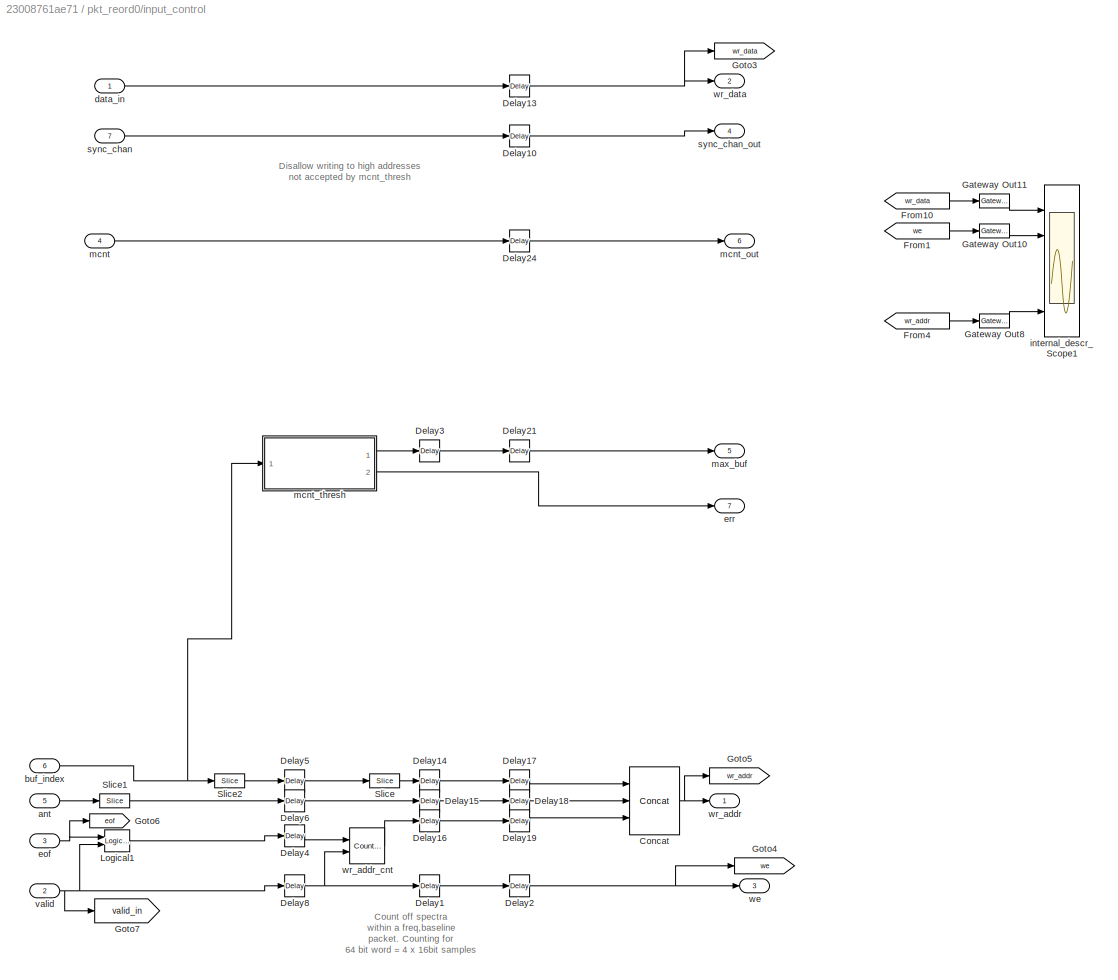
BLOCK [SubSystem] pkt_reord0/input_control
  FunctionWithSeparateData = off
  MaskHideContents = off
  MinAlgLoopOccurrences = off
  Opaque = off
  Ports = [7, 7]
  PropExecContextOutsideSubsystem = off
  RTWSystemCode = Auto
  RequestExecContextInheritance = off
BLOCK [Reference] pkt_reord0/input_control/Concat  REF=xbsIndex_r4/Concat
  Ports = [3, 1]
  SourceBlock = xbsIndex_r4/Concat
  SourceType = Xilinx Bus Concatenator Block
  block_type = concat
  block_version = 10.1.3
  dbl_ovrd = off
  has_advanced_control = 0
  infoedit = Concatenates two or more inputs.  Output will be cast to an unsigned value with the binary point at zero.
  num_inputs = 3
  sg_icon_stat = 50,68,3,1,white,blue,0,61ef8218,right,,[ ],[ ]
  sg_mask_display = fprintf('','COMMENT: begin icon graphics');\npatch([0 50 50 0 0 ],[0 0 68 68 0 ],[0.77 0.82 0.91 ]);\nplot([0 50 50 0 0 ],[0 0 68 68 0 ]);\npatch([9.425 19.54 26.54 33.54 40.54 26.54 16.425 9.425 ],[41.77 41.77 48.77 41.77 48.77 48.77 48.77 41.77 ],[1 1 1 ]);\npatch([16.425 26.54 19.54 9.425 16.425 ],[34.77 34.77 41.77 41.77 34.77 ],[0.931 0.946 0.973 ]);\npatch([9.425 19.54 26.54 16.425 9.425 ],[27.77...<+421ch>
  sggui_pos = -1,-1,-1,-1
BLOCK [Reference] pkt_reord0/input_control/Delay1  REF=xbsIndex_r4/Delay
  Ports = [1, 1]
  SourceBlock = xbsIndex_r4/Delay
  SourceType = Xilinx Delay Block
  block_type = delay
  block_version = 10.1.3
  dbl_ovrd = off
  en = off
  has_advanced_control = 0
  infoedit = Hardware notes: A delay line is a chain, each link of which is an SRL16 followed by a flip-flop.
  infoeditControl = Selection of Reset will increase slice count due to use of real FFs and instead of SRLs
  latency = 2
  reg_retiming = on
  rst = off
  sg_icon_stat = 20,22,1,1,white,blue,0,85ce9542,right,,[ ],[ ]
  sg_mask_display = fprintf('','COMMENT: begin icon graphics');\npatch([0 20 20 0 0 ],[0 0 22 22 0 ],[0.77 0.82 0.91 ]);\nplot([0 20 20 0 0 ],[0 0 22 22 0 ]);\npatch([5.55 8.44 10.44 12.44 14.44 10.44 7.55 5.55 ],[13.22 13.22 15.22 13.22 15.22 15.22 15.22 13.22 ],[1 1 1 ]);\npatch([7.55 10.44 8.44 5.55 7.55 ],[11.22 11.22 13.22 13.22 11.22 ],[0.931 0.946 0.973 ]);\npatch([5.55 8.44 10.44 7.55 5.55 ],[9.22 9.22 11.22 11.22...<+294ch>  <repeated x34 — deduplicated; at blocks: Delay1, Delay10, Delay13, Delay14, Delay15, Delay16, Delay17, Delay18, Delay19, Delay2, Delay21, Delay24, Delay3, Delay4, Delay5, Delay6, +1 more>
  sggui_pos = -1,-1,-1,-1
  xl_area = [0, 0, 0, 0, 0, 0, 0]
  xl_use_area = off
BLOCK [Reference] pkt_reord0/input_control/Delay10  REF=xbsIndex_r4/Delay
  Ports = [1, 1]
  SourceBlock = xbsIndex_r4/Delay
  SourceType = Xilinx Delay Block
  block_type = delay
  block_version = 10.1.3
  dbl_ovrd = off
  en = off
  has_advanced_control = 0
  infoedit = Hardware notes: A delay line is a chain, each link of which is an SRL16 followed by a flip-flop.
  infoeditControl = Selection of Reset will increase slice count due to use of real FFs and instead of SRLs
  latency = 4
  reg_retiming = on
  rst = off
  sg_icon_stat = 20,22,1,1,white,blue,0,d390c2d8,right,,[ ],[ ]
  sggui_pos = 13,17,481,387
  xl_area = [0, 0, 0, 0, 0, 0, 0]
  xl_use_area = off
BLOCK [Reference] pkt_reord0/input_control/Delay13  REF=xbsIndex_r4/Delay
  Ports = [1, 1]
  SourceBlock = xbsIndex_r4/Delay
  SourceType = Xilinx Delay Block
  block_type = delay
  block_version = 10.1.3
  dbl_ovrd = off
  en = off
  has_advanced_control = 0
  infoedit = Hardware notes: A delay line is a chain, each link of which is an SRL16 followed by a flip-flop.
  infoeditControl = Selection of Reset will increase slice count due to use of real FFs and instead of SRLs
  latency = 4
  reg_retiming = on
  rst = off
  sg_icon_stat = 20,22,1,1,white,blue,0,d390c2d8,right,,[ ],[ ]
  sggui_pos = 20,20,592,473
  xl_area = [0, 0, 0, 0, 0, 0, 0]
  xl_use_area = off
BLOCK [Reference] pkt_reord0/input_control/Delay14  REF=xbsIndex_r4/Delay
  Ports = [1, 1]
  SourceBlock = xbsIndex_r4/Delay
  SourceType = Xilinx Delay Block
  block_type = delay
  block_version = 10.1.3
  dbl_ovrd = off
  en = off
  has_advanced_control = 0
  infoedit = Hardware notes: A delay line is a chain, each link of which is an SRL16 followed by a flip-flop.
  infoeditControl = Selection of Reset will increase slice count due to use of real FFs and instead of SRLs
  latency = 2
  reg_retiming = on
  rst = off
  sg_icon_stat = 20,22,1,1,white,blue,0,85ce9542,right,,[ ],[ ]
  sggui_pos = -1,-1,-1,-1
  xl_area = [0, 0, 0, 0, 0, 0, 0]
  xl_use_area = off
BLOCK [Reference] pkt_reord0/input_control/Delay15  REF=xbsIndex_r4/Delay
  Ports = [1, 1]
  SourceBlock = xbsIndex_r4/Delay
  SourceType = Xilinx Delay Block
  block_type = delay
  block_version = 10.1.3
  dbl_ovrd = off
  en = off
  has_advanced_control = 0
  infoedit = Hardware notes: A delay line is a chain, each link of which is an SRL16 followed by a flip-flop.
  infoeditControl = Selection of Reset will increase slice count due to use of real FFs and instead of SRLs
  latency = 2
  reg_retiming = on
  rst = off
  sg_icon_stat = 20,22,1,1,white,blue,0,85ce9542,right,,[ ],[ ]
  sggui_pos = -1,-1,-1,-1
  xl_area = [0, 0, 0, 0, 0, 0, 0]
  xl_use_area = off
BLOCK [Reference] pkt_reord0/input_control/Delay16  REF=xbsIndex_r4/Delay
  Ports = [1, 1]
  SourceBlock = xbsIndex_r4/Delay
  SourceType = Xilinx Delay Block
  block_type = delay
  block_version = 10.1.3
  dbl_ovrd = off
  en = off
  has_advanced_control = 0
  infoedit = Hardware notes: A delay line is a chain, each link of which is an SRL16 followed by a flip-flop.
  infoeditControl = Selection of Reset will increase slice count due to use of real FFs and instead of SRLs
  latency = 2
  reg_retiming = on
  rst = off
  sg_icon_stat = 20,22,1,1,white,blue,0,85ce9542,right,,[ ],[ ]
  sggui_pos = -1,-1,-1,-1
  xl_area = [0, 0, 0, 0, 0, 0, 0]
  xl_use_area = off
BLOCK [Reference] pkt_reord0/input_control/Delay17  REF=xbsIndex_r4/Delay
  Ports = [1, 1]
  SourceBlock = xbsIndex_r4/Delay
  SourceType = Xilinx Delay Block
  block_type = delay
  block_version = 10.1.3
  dbl_ovrd = off
  en = off
  has_advanced_control = 0
  infoedit = Hardware notes: A delay line is a chain, each link of which is an SRL16 followed by a flip-flop.
  infoeditControl = Selection of Reset will increase slice count due to use of real FFs and instead of SRLs
  latency = 1
  reg_retiming = on
  rst = off
  sg_icon_stat = 20,22,1,1,white,blue,0,07b98262,right,,[ ],[ ]
  sggui_pos = -1,-1,-1,-1
  xl_area = [0, 0, 0, 0, 0, 0, 0]
  xl_use_area = off
BLOCK [Reference] pkt_reord0/input_control/Delay18  REF=xbsIndex_r4/Delay
  Ports = [1, 1]
  SourceBlock = xbsIndex_r4/Delay
  SourceType = Xilinx Delay Block
  block_type = delay
  block_version = 10.1.3
  dbl_ovrd = off
  en = off
  has_advanced_control = 0
  infoedit = Hardware notes: A delay line is a chain, each link of which is an SRL16 followed by a flip-flop.
  infoeditControl = Selection of Reset will increase slice count due to use of real FFs and instead of SRLs
  latency = 1
  reg_retiming = on
  rst = off
  sg_icon_stat = 20,22,1,1,white,blue,0,07b98262,right,,[ ],[ ]
  sggui_pos = -1,-1,-1,-1
  xl_area = [0, 0, 0, 0, 0, 0, 0]
  xl_use_area = off
BLOCK [Reference] pkt_reord0/input_control/Delay19  REF=xbsIndex_r4/Delay
  Ports = [1, 1]
  SourceBlock = xbsIndex_r4/Delay
  SourceType = Xilinx Delay Block
  block_type = delay
  block_version = 10.1.3
  dbl_ovrd = off
  en = off
  has_advanced_control = 0
  infoedit = Hardware notes: A delay line is a chain, each link of which is an SRL16 followed by a flip-flop.
  infoeditControl = Selection of Reset will increase slice count due to use of real FFs and instead of SRLs
  latency = 1
  reg_retiming = on
  rst = off
  sg_icon_stat = 20,22,1,1,white,blue,0,07b98262,right,,[ ],[ ]
  sggui_pos = -1,-1,-1,-1
  xl_area = [0, 0, 0, 0, 0, 0, 0]
  xl_use_area = off
BLOCK [Reference] pkt_reord0/input_control/Delay2  REF=xbsIndex_r4/Delay
  Ports = [1, 1]
  SourceBlock = xbsIndex_r4/Delay
  SourceType = Xilinx Delay Block
  block_type = delay
  block_version = 10.1.3
  dbl_ovrd = off
  en = off
  has_advanced_control = 0
  infoedit = Hardware notes: A delay line is a chain, each link of which is an SRL16 followed by a flip-flop.
  infoeditControl = Selection of Reset will increase slice count due to use of real FFs and instead of SRLs
  latency = 1
  reg_retiming = on
  rst = off
  sg_icon_stat = 20,22,1,1,white,blue,0,07b98262,right,,[ ],[ ]
  sggui_pos = -1,-1,-1,-1
  xl_area = [0, 0, 0, 0, 0, 0, 0]
  xl_use_area = off
BLOCK [Reference] pkt_reord0/input_control/Delay21  REF=xbsIndex_r4/Delay
  Ports = [1, 1]
  SourceBlock = xbsIndex_r4/Delay
  SourceType = Xilinx Delay Block
  block_type = delay
  block_version = 10.1.3
  dbl_ovrd = off
  en = off
  has_advanced_control = 0
  infoedit = Hardware notes: A delay line is a chain, each link of which is an SRL16 followed by a flip-flop.
  infoeditControl = Selection of Reset will increase slice count due to use of real FFs and instead of SRLs
  latency = 1
  reg_retiming = on
  rst = off
  sg_icon_stat = 20,22,1,1,white,blue,0,07b98262,right,,[ ],[ ]
  sggui_pos = -1,-1,-1,-1
  xl_area = [0, 0, 0, 0, 0, 0, 0]
  xl_use_area = off
BLOCK [Reference] pkt_reord0/input_control/Delay24  REF=xbsIndex_r4/Delay
  Ports = [1, 1]
  SourceBlock = xbsIndex_r4/Delay
  SourceType = Xilinx Delay Block
  block_type = delay
  block_version = 10.1.3
  dbl_ovrd = off
  en = off
  has_advanced_control = 0
  infoedit = Hardware notes: A delay line is a chain, each link of which is an SRL16 followed by a flip-flop.
  infoeditControl = Selection of Reset will increase slice count due to use of real FFs and instead of SRLs
  latency = 4
  reg_retiming = on
  rst = off
  sg_icon_stat = 20,22,1,1,white,blue,0,d390c2d8,right,,[ ],[ ]
  sggui_pos = -1,17,481,387
  xl_area = [0, 0, 0, 0, 0, 0, 0]
  xl_use_area = off
BLOCK [Reference] pkt_reord0/input_control/Delay3  REF=xbsIndex_r4/Delay
  Ports = [1, 1]
  SourceBlock = xbsIndex_r4/Delay
  SourceType = Xilinx Delay Block
  block_type = delay
  block_version = 10.1.3
  dbl_ovrd = off
  en = off
  has_advanced_control = 0
  infoedit = Hardware notes: A delay line is a chain, each link of which is an SRL16 followed by a flip-flop.
  infoeditControl = Selection of Reset will increase slice count due to use of real FFs and instead of SRLs
  latency = 2
  reg_retiming = on
  rst = off
  sg_icon_stat = 20,22,1,1,white,blue,0,85ce9542,right,,[ ],[ ]
  sggui_pos = 13,17,481,387
  xl_area = [0, 0, 0, 0, 0, 0, 0]
  xl_use_area = off
BLOCK [Reference] pkt_reord0/input_control/Delay4  REF=xbsIndex_r4/Delay
  Ports = [1, 1]
  SourceBlock = xbsIndex_r4/Delay
  SourceType = Xilinx Delay Block
  block_type = delay
  block_version = 10.1.3
  dbl_ovrd = off
  en = off
  has_advanced_control = 0
  infoedit = Hardware notes: A delay line is a chain, each link of which is an SRL16 followed by a flip-flop.
  infoeditControl = Selection of Reset will increase slice count due to use of real FFs and instead of SRLs
  latency = 1
  reg_retiming = on
  rst = off
  sg_icon_stat = 20,22,1,1,white,blue,0,07b98262,right,,[ ],[ ]
  sggui_pos = -1,-1,-1,-1
  xl_area = [0, 0, 0, 0, 0, 0, 0]
  xl_use_area = off
BLOCK [Reference] pkt_reord0/input_control/Delay5  REF=xbsIndex_r4/Delay
  Ports = [1, 1]
  SourceBlock = xbsIndex_r4/Delay
  SourceType = Xilinx Delay Block
  block_type = delay
  block_version = 10.1.3
  dbl_ovrd = off
  en = off
  has_advanced_control = 0
  infoedit = Hardware notes: A delay line is a chain, each link of which is an SRL16 followed by a flip-flop.
  infoeditControl = Selection of Reset will increase slice count due to use of real FFs and instead of SRLs
  latency = 1
  reg_retiming = on
  rst = off
  sg_icon_stat = 20,22,1,1,white,blue,0,07b98262,right,,[ ],[ ]
  sggui_pos = -1,-1,-1,-1
  xl_area = [0, 0, 0, 0, 0, 0, 0]
  xl_use_area = off
BLOCK [Reference] pkt_reord0/input_control/Delay6  REF=xbsIndex_r4/Delay
  Ports = [1, 1]
  SourceBlock = xbsIndex_r4/Delay
  SourceType = Xilinx Delay Block
  block_type = delay
  block_version = 10.1.3
  dbl_ovrd = off
  en = off
  has_advanced_control = 0
  infoedit = Hardware notes: A delay line is a chain, each link of which is an SRL16 followed by a flip-flop.
  infoeditControl = Selection of Reset will increase slice count due to use of real FFs and instead of SRLs
  latency = 1
  reg_retiming = on
  rst = off
  sg_icon_stat = 20,22,1,1,white,blue,0,07b98262,right,,[ ],[ ]
  sggui_pos = -1,-1,-1,-1
  xl_area = [0, 0, 0, 0, 0, 0, 0]
  xl_use_area = off
BLOCK [Reference] pkt_reord0/input_control/Delay8  REF=xbsIndex_r4/Delay
  Ports = [1, 1]
  SourceBlock = xbsIndex_r4/Delay
  SourceType = Xilinx Delay Block
  block_type = delay
  block_version = 10.1.3
  dbl_ovrd = off
  en = off
  has_advanced_control = 0
  infoedit = Hardware notes: A delay line is a chain, each link of which is an SRL16 followed by a flip-flop.
  infoeditControl = Selection of Reset will increase slice count due to use of real FFs and instead of SRLs
  latency = 1
  reg_retiming = on
  rst = off
  sg_icon_stat = 20,22,1,1,white,blue,0,07b98262,right,,[ ],[ ]
  sggui_pos = -1,-1,-1,-1
  xl_area = [0, 0, 0, 0, 0, 0, 0]
  xl_use_area = off
BLOCK [From] pkt_reord0/input_control/From1
  CloseFcn = tagdialog Close
  GotoTag = we
BLOCK [From] pkt_reord0/input_control/From10
  CloseFcn = tagdialog Close
  GotoTag = wr_data
BLOCK [From] pkt_reord0/input_control/From4
  CloseFcn = tagdialog Close
  GotoTag = wr_addr
BLOCK [Reference] pkt_reord0/input_control/Gateway Out10  REF=xbsIndex_r4/Gateway Out
  DACChannel = '1'
  LOCs = {}
  Ports = [1, 1]
  SourceBlock = xbsIndex_r4/Gateway Out
  SourceType = Xilinx Gateway Out Block
  UseAsDAC = off
  block_type = gatewayout
  block_version = 10.1.3
  has_advanced_control = 0
  hdl_port = off
  infoedit = Gateway out block.  Converts Xilinx fixed point inputs into ouputs of type Simulink integer, double, or fixed point.<P><P>Hardware notes:  In hardware these blocks become top level output ports or are discarded, depending on how they are configured.  <repeated x6 — deduplicated; at blocks: Gateway Out10, Gateway Out11, Gateway Out8>
  inherit_from_input = off
  locs_specified = off
  sg_icon_stat = 30,14,1,1,white,grey,1,632ec840,right,,[ ],[ ]
  sg_mask_display = fprintf('','COMMENT: begin icon graphics');\npatch([0 30 30 0 0 ],[0 0 14 14 0 ],[0.88 0.88 0.88 ]);\nplot([0 30 30 0 0 ],[0 0 14 14 0 ]);\npatch([10.55 13.44 15.44 17.44 19.44 15.44 12.55 10.55 ],[9.22 9.22 11.22 9.22 11.22 11.22 11.22 9.22 ],[1 1 1 ]);\npatch([12.55 15.44 13.44 10.55 12.55 ],[7.22 7.22 9.22 9.22 7.22 ],[0.964 0.964 0.964 ]);\npatch([10.55 13.44 15.44 12.55 10.55 ],[5.22 5.22 7.22 7.2...<+370ch>  <repeated x6 — deduplicated; at blocks: Gateway Out10, Gateway Out11, Gateway Out8>
  sggui_pos = -1,-1,-1,-1
  timing_constraint = None
  xl_area = [0, 0, 0, 0, 0, 0, 0]
  xl_use_area = off
BLOCK [Reference] pkt_reord0/input_control/Gateway Out11  REF=xbsIndex_r4/Gateway Out
  DACChannel = '1'
  LOCs = {}
  Ports = [1, 1]
  SourceBlock = xbsIndex_r4/Gateway Out
  SourceType = Xilinx Gateway Out Block
  UseAsDAC = off
  block_type = gatewayout
  block_version = 10.1.3
  has_advanced_control = 0
  hdl_port = off
  inherit_from_input = off
  locs_specified = off
  sg_icon_stat = 30,14,1,1,white,grey,1,632ec840,right,,[ ],[ ]
  sggui_pos = -1,-1,-1,-1
  timing_constraint = None
  xl_area = [0, 0, 0, 0, 0, 0, 0]
  xl_use_area = off
BLOCK [Reference] pkt_reord0/input_control/Gateway Out8  REF=xbsIndex_r4/Gateway Out
  DACChannel = '1'
  LOCs = {}
  Ports = [1, 1]
  SourceBlock = xbsIndex_r4/Gateway Out
  SourceType = Xilinx Gateway Out Block
  UseAsDAC = off
  block_type = gatewayout
  block_version = 10.1.3
  has_advanced_control = 0
  hdl_port = off
  inherit_from_input = off
  locs_specified = off
  sg_icon_stat = 30,14,1,1,white,grey,1,632ec840,right,,[ ],[ ]
  sggui_pos = -1,-1,-1,-1
  timing_constraint = None
  xl_area = [0, 0, 0, 0, 0, 0, 0]
  xl_use_area = off
BLOCK [Goto] pkt_reord0/input_control/Goto3
  GotoTag = wr_data
BLOCK [Goto] pkt_reord0/input_control/Goto4
  GotoTag = we
BLOCK [Goto] pkt_reord0/input_control/Goto5
  GotoTag = wr_addr
BLOCK [Goto] pkt_reord0/input_control/Goto6
  GotoTag = eof
BLOCK [Goto] pkt_reord0/input_control/Goto7
  GotoTag = valid_in
BLOCK [Reference] pkt_reord0/input_control/Logical1  REF=xbsIndex_r4/Logical
  Ports = [2, 1]
  SourceBlock = xbsIndex_r4/Logical
  SourceType = Xilinx Logical Block Block
  align_bp = on
  arith_type = Unsigned
  bin_pt = 2
  block_type = logical
  block_version = 10.1.3
  dbl_ovrd = off
  en = off
  has_advanced_control = 0
  inputs = 2
  latency = 0
  logical_function = AND
  n_bits = 8
  precision = Full
  sg_icon_stat = 25,22,2,1,white,blue,0,83a4b621,right,,[ ],[ ]
  sg_mask_display = fprintf('','COMMENT: begin icon graphics');\npatch([0 25 25 0 0 ],[0 0 22 22 0 ],[0.77 0.82 0.91 ]);\nplot([0 25 25 0 0 ],[0 0 22 22 0 ]);\npatch([5.325 9.66 12.66 15.66 18.66 12.66 8.325 5.325 ],[14.33 14.33 17.33 14.33 17.33 17.33 17.33 14.33 ],[1 1 1 ]);\npatch([8.325 12.66 9.66 5.325 8.325 ],[11.33 11.33 14.33 14.33 11.33 ],[0.931 0.946 0.973 ]);\npatch([5.325 9.66 12.66 8.325 5.325 ],[8.33 8.33 11...<+289ch>
  sggui_pos = -1,-1,-1,-1
  xl_area = [0, 0, 0, 0, 0, 0, 0]
  xl_use_area = off
BLOCK [Reference] pkt_reord0/input_control/Slice  REF=xbsIndex_r4/Slice
  Ports = [1, 1]
  SourceBlock = xbsIndex_r4/Slice
  SourceType = Xilinx Bit Slice Extractor Block
  base0 = LSB of Input
  base1 = MSB of Input
  bit0 = 0
  bit1 = 0
  block_type = slice
  block_version = 10.1.3
  boolean_output = off
  dbl_ovrd = off
  has_advanced_control = 0
  infoedit = Extracts a given range of bits from each input sample and presents it at the output.  The output type is ordinarily unsigned with binary point at zero, but can be Boolean when the slice is one bit wide.<P><P>Hardware notes: In hardware this block costs nothing.  <repeated x7 — deduplicated; at blocks: Slice, Slice1>
  mode = Lower Bit Location + Width
  nbits = window_bits
  sg_icon_stat = 30,14,1,1,white,blue,0,1fd851a7,right,,[ ],[ ]
  sggui_pos = 7,187,633,509
BLOCK [Reference] pkt_reord0/input_control/Slice1  REF=xbsIndex_r4/Slice
  Ports = [1, 1]
  SourceBlock = xbsIndex_r4/Slice
  SourceType = Xilinx Bit Slice Extractor Block
  base0 = LSB of Input
  base1 = MSB of Input
  bit0 = 0
  bit1 = 0
  block_type = slice
  block_version = 10.1.3
  boolean_output = off
  dbl_ovrd = off
  has_advanced_control = 0
  mode = Lower Bit Location + Width
  nbits = ant_bits
  sg_icon_stat = 30,14,1,1,white,blue,0,1fd851a7,right,,[ ],[ ]
  sggui_pos = 1,207,633,509
BLOCK [Reference] pkt_reord0/input_control/Slice2  REF=xbsIndex_r4/Slice
  Ports = [1, 1]
  SourceBlock = xbsIndex_r4/Slice
  SourceType = Xilinx Bit Slice Extractor Block
  base0 = LSB of Input
  base1 = MSB of Input
  bit0 = 0
  bit1 = 0
  block_type = slice
  block_version = 10.1.3
  boolean_output = off
  dbl_ovrd = off
  has_advanced_control = 0
  mode = Lower Bit Location + Width
  nbits = window_bits
  sg_icon_stat = 30,14,1,1,white,blue,0,1fd851a7,right,,[ ],[ ]
  sggui_pos = 862,362,633,509
BLOCK [Inport] pkt_reord0/input_control/ant
  IconDisplay = Port number
  Port = 5
BLOCK [Inport] pkt_reord0/input_control/buf_index
  IconDisplay = Port number
  Port = 6
BLOCK [Inport] pkt_reord0/input_control/data_in
  IconDisplay = Port number
BLOCK [Inport] pkt_reord0/input_control/eof
  IconDisplay = Port number
  Port = 3
BLOCK [Outport] pkt_reord0/input_control/err
  IconDisplay = Port number
  Port = 7
BLOCK [Scope] pkt_reord0/input_control/internal_descr_Scope1
  DataFormat = StructureWithTime
  Floating = off
  LimitDataPoints = off
  NumInputPorts = 5
  Ports = [5]
  SampleTime = 0
  SaveName = ScopeData5
  ShowLegends = off
  TimeRange = 1
  YMax = 2.47929e+21~1~8.4~8.4~8.4
  YMin = 2.24317e+21~-1~7.6~7.6~7.6
  ZoomMode = xonly
BLOCK [Outport] pkt_reord0/input_control/max_buf
  IconDisplay = Port number
  Port = 5
BLOCK [Inport] pkt_reord0/input_control/mcnt
  IconDisplay = Port number
  Port = 4
BLOCK [Outport] pkt_reord0/input_control/mcnt_out
  IconDisplay = Port number
  Port = 6
BLOCK [SubSystem] pkt_reord0/input_control/mcnt_thresh
  FunctionWithSeparateData = off
  MaskHideContents = off
  MinAlgLoopOccurrences = off
  Opaque = off
  Ports = [1, 2]
  PropExecContextOutsideSubsystem = off
  RTWSystemCode = Auto
  RequestExecContextInheritance = off
BLOCK [Reference] pkt_reord0/input_control/mcnt_thresh/AddSub1  REF=xbsIndex_r4/AddSub
  Ports = [2, 1]
  SourceBlock = xbsIndex_r4/AddSub
  SourceType = Xilinx Adder/Subtracter Block
  arith_type = Unsigned
  bin_pt = 0
  block_type = addsub
  block_version = 10.1.3
  dbl_ovrd = off
  en = off
  has_advanced_control = 0
  hw_selection = Fabric
  latency = 1
  mode = Addition
  n_bits = buf_index_bits
  overflow = Wrap
  pipelined = off
  precision = User Defined
  quantization = Truncate
  sg_icon_stat = 30,33,2,1,white,blue,0,e85d8a90,right,,[ ],[ ]
  sg_mask_display = fprintf('','COMMENT: begin icon graphics');\npatch([0 30 30 0 0 ],[0 0 33 33 0 ],[0.77 0.82 0.91 ]);\nplot([0 30 30 0 0 ],[0 0 33 33 0 ]);\npatch([6.1 11.88 15.88 19.88 23.88 15.88 10.1 6.1 ],[20.44 20.44 24.44 20.44 24.44 24.44 24.44 20.44 ],[1 1 1 ]);\npatch([10.1 15.88 11.88 6.1 10.1 ],[16.44 16.44 20.44 20.44 16.44 ],[0.931 0.946 0.973 ]);\npatch([6.1 11.88 15.88 10.1 6.1 ],[12.44 12.44 16.44 16.44...<+510ch>  <repeated x6 — deduplicated; at blocks: AddSub1, AddSub2, AddSub3>
  sggui_pos = 2,234,481,373
  use_behavioral_HDL = on
  use_carryin = off
  use_carryout = off
  use_rpm = on
  xl_area = [0, 0, 0, 0, 0, 0, 0]
  xl_use_area = off
BLOCK [Reference] pkt_reord0/input_control/mcnt_thresh/AddSub2  REF=xbsIndex_r4/AddSub
  Ports = [2, 1]
  SourceBlock = xbsIndex_r4/AddSub
  SourceType = Xilinx Adder/Subtracter Block
  arith_type = Unsigned
  bin_pt = 0
  block_type = addsub
  block_version = 10.1.3
  dbl_ovrd = off
  en = off
  has_advanced_control = 0
  hw_selection = Fabric
  latency = 1
  mode = Addition
  n_bits = buf_index_bits
  overflow = Wrap
  pipelined = off
  precision = User Defined
  quantization = Truncate
  sg_icon_stat = 30,33,2,1,white,blue,0,e85d8a90,right,,[ ],[ ]
  sggui_pos = 9,241,481,373
  use_behavioral_HDL = on
  use_carryin = off
  use_carryout = off
  use_rpm = on
  xl_area = [0, 0, 0, 0, 0, 0, 0]
  xl_use_area = off
BLOCK [Reference] pkt_reord0/input_control/mcnt_thresh/AddSub3  REF=xbsIndex_r4/AddSub
  Ports = [2, 1]
  SourceBlock = xbsIndex_r4/AddSub
  SourceType = Xilinx Adder/Subtracter Block
  arith_type = Unsigned
  bin_pt = 0
  block_type = addsub
  block_version = 10.1.3
  dbl_ovrd = off
  en = off
  has_advanced_control = 0
  hw_selection = Fabric
  latency = 1
  mode = Subtraction
  n_bits = buf_index_bits
  overflow = Wrap
  pipelined = off
  precision = User Defined
  quantization = Truncate
  sg_icon_stat = 30,33,2,1,white,blue,0,8a00a986,right,,[ ],[ ]
  sggui_pos = -7,220,481,373
  use_behavioral_HDL = on
  use_carryin = off
  use_carryout = off
  use_rpm = on
  xl_area = [0, 0, 0, 0, 0, 0, 0]
  xl_use_area = off
BLOCK [Reference] pkt_reord0/input_control/mcnt_thresh/Constant1  REF=xbsIndex_r4/Constant
  Ports = [0, 1]
  SourceBlock = xbsIndex_r4/Constant
  SourceType = Xilinx Constant Block Block
  arith_type = Unsigned
  bin_pt = 0
  block_type = constant
  block_version = 10.1.3
  carry = CIN
  const = 1
  dbl_ovrd = off
  dsp48_infoedit = The use of this block for DSP48 instructions is deprecated.  Please use the Opmode block.
  equ = P=C
  exp_width = 8
  explicit_period = on
  frac_width = 24
  gui_display_data_type = Fixed-point
  has_advanced_control = 0
  inp1 = P
  inp2 = PCIN>>17
  n_bits = 1
  opr = +
  opselect = C
  period = 1
  preci_type = Single
  sg_icon_stat = 35,16,0,1,white,blue,0,1c72b5be,right,,[ ],[ ]
  sg_mask_display = fprintf('','COMMENT: begin icon graphics');\npatch([0 35 35 0 0 ],[0 0 16 16 0 ],[0.77 0.82 0.91 ]);\nplot([0 35 35 0 0 ],[0 0 16 16 0 ]);\npatch([12.55 15.44 17.44 19.44 21.44 17.44 14.55 12.55 ],[10.22 10.22 12.22 10.22 12.22 12.22 12.22 10.22 ],[1 1 1 ]);\npatch([14.55 17.44 15.44 12.55 14.55 ],[8.22 8.22 10.22 10.22 8.22 ],[0.931 0.946 0.973 ]);\npatch([12.55 15.44 17.44 14.55 12.55 ],[6.22 6.22 8....<+300ch>  <repeated x6 — deduplicated; at blocks: Constant1, Constant2, Constant3>
  sggui_pos = -7,173,478,478
BLOCK [Reference] pkt_reord0/input_control/mcnt_thresh/Constant2  REF=xbsIndex_r4/Constant
  Ports = [0, 1]
  SourceBlock = xbsIndex_r4/Constant
  SourceType = Xilinx Constant Block Block
  arith_type = Unsigned
  bin_pt = 0
  block_type = constant
  block_version = 10.1.3
  carry = CIN
  const = 1
  dbl_ovrd = off
  dsp48_infoedit = The use of this block for DSP48 instructions is deprecated.  Please use the Opmode block.
  equ = P=C
  exp_width = 8
  explicit_period = on
  frac_width = 24
  gui_display_data_type = Fixed-point
  has_advanced_control = 0
  inp1 = P
  inp2 = PCIN>>17
  n_bits = 1
  opr = +
  opselect = C
  period = 1
  preci_type = Single
  sg_icon_stat = 35,16,0,1,white,blue,0,1c72b5be,right,,[ ],[ ]
  sggui_pos = -7,173,478,478
BLOCK [Reference] pkt_reord0/input_control/mcnt_thresh/Constant3  REF=xbsIndex_r4/Constant
  Ports = [0, 1]
  SourceBlock = xbsIndex_r4/Constant
  SourceType = Xilinx Constant Block Block
  arith_type = Unsigned
  bin_pt = 0
  block_type = constant
  block_version = 10.1.3
  carry = CIN
  const = 1
  dbl_ovrd = off
  dsp48_infoedit = The use of this block for DSP48 instructions is deprecated.  Please use the Opmode block.
  equ = P=C
  exp_width = 8
  explicit_period = on
  frac_width = 24
  gui_display_data_type = Fixed-point
  has_advanced_control = 0
  inp1 = P
  inp2 = PCIN>>17
  n_bits = 1
  opr = +
  opselect = C
  period = 1
  preci_type = Single
  sg_icon_stat = 35,16,0,1,white,blue,0,1c72b5be,right,,[ ],[ ]
  sggui_pos = -7,173,478,478
BLOCK [Reference] pkt_reord0/input_control/mcnt_thresh/Counter  REF=xbsIndex_r4/Counter
  Ports = [1, 1]
  SourceBlock = xbsIndex_r4/Counter
  SourceType = Xilinx Counter Block
  arith_type = Unsigned
  bin_pt = 0
  block_type = counter
  block_version = 10.1.3
  cnt_by_val = 1
  cnt_to = Inf
  cnt_type = Free Running
  dbl_ovrd = off
  en = off
  explicit_period = on
  has_advanced_control = 0
  implementation = Fabric
  infoedit = Hardware notes: Free running counters are the least expensive in hardware.  A count limited counter is implemented by combining a counter with a comparator.
  load_pin = off
  n_bits = 21
  operation = Up
  period = 1
  rst = on
  sg_icon_stat = 50,52,1,1,white,blue,0,803eba70,right,,[ ],[ ]
  sg_mask_display = fprintf('','COMMENT: begin icon graphics');\npatch([0 50 50 0 0 ],[0 0 52 52 0 ],[0.77 0.82 0.91 ]);\nplot([0 50 50 0 0 ],[0 0 52 52 0 ]);\npatch([9.425 19.54 26.54 33.54 40.54 26.54 16.425 9.425 ],[33.77 33.77 40.77 33.77 40.77 40.77 40.77 33.77 ],[1 1 1 ]);\npatch([16.425 26.54 19.54 9.425 16.425 ],[26.77 26.77 33.77 33.77 26.77 ],[0.931 0.946 0.973 ]);\npatch([9.425 19.54 26.54 16.425 9.425 ],[19.77...<+383ch>
  sggui_pos = -1,17,481,773
  start_count = 0
  use_behavioral_HDL = off
  use_rpm = on
  xl_area = [0, 0, 0, 0, 0, 0, 0]
  xl_use_area = off
BLOCK [Reference] pkt_reord0/input_control/mcnt_thresh/Delay2  REF=xbsIndex_r4/Delay
  Ports = [1, 1]
  SourceBlock = xbsIndex_r4/Delay
  SourceType = Xilinx Delay Block
  block_type = delay
  block_version = 10.1.3
  dbl_ovrd = off
  en = off
  has_advanced_control = 0
  infoedit = Hardware notes: A delay line is a chain, each link of which is an SRL16 followed by a flip-flop.
  infoeditControl = Selection of Reset will increase slice count due to use of real FFs and instead of SRLs
  latency = 1
  reg_retiming = off
  rst = off
  sg_icon_stat = 25,24,1,1,white,blue,0,07b98262,right,,[ ],[ ]
  sg_mask_display = fprintf('','COMMENT: begin icon graphics');\npatch([0 25 25 0 0 ],[0 0 24 24 0 ],[0.77 0.82 0.91 ]);\nplot([0 25 25 0 0 ],[0 0 24 24 0 ]);\npatch([5.325 9.66 12.66 15.66 18.66 12.66 8.325 5.325 ],[15.33 15.33 18.33 15.33 18.33 18.33 18.33 15.33 ],[1 1 1 ]);\npatch([8.325 12.66 9.66 5.325 8.325 ],[12.33 12.33 15.33 15.33 12.33 ],[0.931 0.946 0.973 ]);\npatch([5.325 9.66 12.66 8.325 5.325 ],[9.33 9.33 12...<+306ch>
  sggui_pos = -1,-1,-1,-1
  xl_area = [0, 0, 0, 0, 0, 0, 0]
  xl_use_area = off
BLOCK [Reference] pkt_reord0/input_control/mcnt_thresh/Logical1  REF=xbsIndex_r4/Logical
  Ports = [2, 1]
  SourceBlock = xbsIndex_r4/Logical
  SourceType = Xilinx Logical Block Block
  align_bp = on
  arith_type = Unsigned
  bin_pt = 2
  block_type = logical
  block_version = 10.1.3
  dbl_ovrd = off
  en = off
  has_advanced_control = 0
  inputs = 2
  latency = 0
  logical_function = OR
  n_bits = 8
  precision = Full
  sg_icon_stat = 45,44,2,1,white,blue,0,7ede7d88,right,,[ ],[ ]
  sg_mask_display = fprintf('','COMMENT: begin icon graphics');\npatch([0 45 45 0 0 ],[0 0 44 44 0 ],[0.77 0.82 0.91 ]);\nplot([0 45 45 0 0 ],[0 0 44 44 0 ]);\npatch([8.65 17.32 23.32 29.32 35.32 23.32 14.65 8.65 ],[28.66 28.66 34.66 28.66 34.66 34.66 34.66 28.66 ],[1 1 1 ]);\npatch([14.65 23.32 17.32 8.65 14.65 ],[22.66 22.66 28.66 28.66 22.66 ],[0.931 0.946 0.973 ]);\npatch([8.65 17.32 23.32 14.65 8.65 ],[16.66 16.66 22...<+296ch>
  sggui_pos = 13,17,481,301
  xl_area = [0, 0, 0, 0, 0, 0, 0]
  xl_use_area = off
BLOCK [Reference] pkt_reord0/input_control/mcnt_thresh/Logical2  REF=xbsIndex_r4/Logical
  Ports = [3, 1]
  SourceBlock = xbsIndex_r4/Logical
  SourceType = Xilinx Logical Block Block
  align_bp = on
  arith_type = Unsigned
  bin_pt = 2
  block_type = logical
  block_version = 10.1.3
  dbl_ovrd = off
  en = off
  has_advanced_control = 0
  inputs = 3
  latency = 1
  logical_function = AND
  n_bits = 8
  precision = Full
  sg_icon_stat = 45,44,3,1,white,blue,0,e36395a3,right,,[ ],[ ]
  sg_mask_display = fprintf('','COMMENT: begin icon graphics');\npatch([0 45 45 0 0 ],[0 0 44 44 0 ],[0.77 0.82 0.91 ]);\nplot([0 45 45 0 0 ],[0 0 44 44 0 ]);\npatch([8.65 17.32 23.32 29.32 35.32 23.32 14.65 8.65 ],[28.66 28.66 34.66 28.66 34.66 34.66 34.66 28.66 ],[1 1 1 ]);\npatch([14.65 23.32 17.32 8.65 14.65 ],[22.66 22.66 28.66 28.66 22.66 ],[0.931 0.946 0.973 ]);\npatch([8.65 17.32 23.32 14.65 8.65 ],[16.66 16.66 22...<+356ch>
  sggui_pos = 6,17,481,301
  xl_area = [0, 0, 0, 0, 0, 0, 0]
  xl_use_area = off
BLOCK [Reference] pkt_reord0/input_control/mcnt_thresh/Register1  REF=xbsIndex_r4/Register
  Ports = [2, 1]
  SourceBlock = xbsIndex_r4/Register
  SourceType = Xilinx Register Block
  block_type = register
  block_version = 10.1.3
  dbl_ovrd = off
  en = on
  has_advanced_control = 0
  init = 0
  rst = off
  sg_icon_stat = 45,51,2,1,white,blue,0,6bd0930c,right,,[ ],[ ]
  sg_mask_display = fprintf('','COMMENT: begin icon graphics');\npatch([0 45 45 0 0 ],[0 0 51 51 0 ],[0.77 0.82 0.91 ]);\nplot([0 45 45 0 0 ],[0 0 51 51 0 ]);\npatch([8.65 17.32 23.32 29.32 35.32 23.32 14.65 8.65 ],[31.66 31.66 37.66 31.66 37.66 37.66 37.66 31.66 ],[1 1 1 ]);\npatch([14.65 23.32 17.32 8.65 14.65 ],[25.66 25.66 31.66 31.66 25.66 ],[0.931 0.946 0.973 ]);\npatch([8.65 17.32 23.32 14.65 8.65 ],[19.66 19.66 25...<+440ch>
  sggui_pos = -1,-1,-1,-1
  xl_area = [0, 0, 0, 0, 0, 0, 0]
  xl_use_area = off
BLOCK [Reference] pkt_reord0/input_control/mcnt_thresh/Relational1  REF=xbsIndex_r4/Relational
  Ports = [2, 1]
  SourceBlock = xbsIndex_r4/Relational
  SourceType = Xilinx Arithmetic Relational Operator Block
  block_type = relational
  block_version = 10.1.3
  dbl_ovrd = off
  en = off
  has_advanced_control = 0
  latency = 1
  mode = a!=b
  sg_icon_stat = 45,80,2,1,white,blue,0,8d9aea79,right,,[ ],[ ]
  sg_mask_display = fprintf('','COMMENT: begin icon graphics');\npatch([0 45 45 0 0 ],[0 0 80 80 0 ],[0.77 0.82 0.91 ]);\nplot([0 45 45 0 0 ],[0 0 80 80 0 ]);\npatch([8.65 17.32 23.32 29.32 35.32 23.32 14.65 8.65 ],[46.66 46.66 52.66 46.66 52.66 52.66 52.66 46.66 ],[1 1 1 ]);\npatch([14.65 23.32 17.32 8.65 14.65 ],[40.66 40.66 46.66 46.66 40.66 ],[0.931 0.946 0.973 ]);\npatch([8.65 17.32 23.32 14.65 8.65 ],[34.66 34.66 40...<+502ch>  <repeated x6 — deduplicated; at blocks: Relational1, Relational3, Relational4>
  sggui_pos = -1,17,481,211
  xl_area = [0, 0, 0, 0, 0, 0, 0]
  xl_use_area = off
BLOCK [Reference] pkt_reord0/input_control/mcnt_thresh/Relational2  REF=xbsIndex_r4/Relational
  Ports = [2, 1]
  SourceBlock = xbsIndex_r4/Relational
  SourceType = Xilinx Arithmetic Relational Operator Block
  block_type = relational
  block_version = 10.1.3
  dbl_ovrd = off
  en = off
  has_advanced_control = 0
  latency = 1
  mode = a=b
  sg_icon_stat = 45,80,2,1,white,blue,0,3618233f,right,,[ ],[ ]
  sg_mask_display = fprintf('','COMMENT: begin icon graphics');\npatch([0 45 45 0 0 ],[0 0 80 80 0 ],[0.77 0.82 0.91 ]);\nplot([0 45 45 0 0 ],[0 0 80 80 0 ]);\npatch([8.65 17.32 23.32 29.32 35.32 23.32 14.65 8.65 ],[46.66 46.66 52.66 46.66 52.66 52.66 52.66 46.66 ],[1 1 1 ]);\npatch([14.65 23.32 17.32 8.65 14.65 ],[40.66 40.66 46.66 46.66 40.66 ],[0.931 0.946 0.973 ]);\npatch([8.65 17.32 23.32 14.65 8.65 ],[34.66 34.66 40...<+499ch>
  sggui_pos = -1,17,481,211
  xl_area = [0, 0, 0, 0, 0, 0, 0]
  xl_use_area = off
BLOCK [Reference] pkt_reord0/input_control/mcnt_thresh/Relational3  REF=xbsIndex_r4/Relational
  Ports = [2, 1]
  SourceBlock = xbsIndex_r4/Relational
  SourceType = Xilinx Arithmetic Relational Operator Block
  block_type = relational
  block_version = 10.1.3
  dbl_ovrd = off
  en = off
  has_advanced_control = 0
  latency = 1
  mode = a!=b
  sg_icon_stat = 45,80,2,1,white,blue,0,8d9aea79,right,,[ ],[ ]
  sggui_pos = -1,17,481,211
  xl_area = [0, 0, 0, 0, 0, 0, 0]
  xl_use_area = off
BLOCK [Reference] pkt_reord0/input_control/mcnt_thresh/Relational4  REF=xbsIndex_r4/Relational
  Ports = [2, 1]
  SourceBlock = xbsIndex_r4/Relational
  SourceType = Xilinx Arithmetic Relational Operator Block
  block_type = relational
  block_version = 10.1.3
  dbl_ovrd = off
  en = off
  has_advanced_control = 0
  latency = 1
  mode = a!=b
  sg_icon_stat = 45,80,2,1,white,blue,0,8d9aea79,right,,[ ],[ ]
  sggui_pos = -1,17,481,211
  xl_area = [0, 0, 0, 0, 0, 0, 0]
  xl_use_area = off
BLOCK [Reference] pkt_reord0/input_control/mcnt_thresh/Slice  REF=xbsIndex_r4/Slice
  Ports = [1, 1]
  SourceBlock = xbsIndex_r4/Slice
  SourceType = Xilinx Bit Slice Extractor Block
  base0 = LSB of Input
  base1 = MSB of Input
  bit0 = 0
  bit1 = 0
  block_type = slice
  block_version = 10.1.3
  boolean_output = on
  dbl_ovrd = off
  has_advanced_control = 0
  mode = Upper Bit Location + Width
  nbits = 1
  sg_icon_stat = 30,14,1,1,white,blue,0,1fd851a7,right,,[ ],[ ]
  sggui_pos = 13,17,633,509
BLOCK [Inport] pkt_reord0/input_control/mcnt_thresh/buf_id
  IconDisplay = Port number
BLOCK [Outport] pkt_reord0/input_control/mcnt_thresh/err
  IconDisplay = Port number
  Port = 2
BLOCK [Outport] pkt_reord0/input_control/mcnt_thresh/max_buf_id
  IconDisplay = Port number
BLOCK [Inport] pkt_reord0/input_control/sync_chan
  IconDisplay = Port number
  Port = 7
BLOCK [Outport] pkt_reord0/input_control/sync_chan_out
  IconDisplay = Port number
  Port = 4
BLOCK [Inport] pkt_reord0/input_control/valid
  IconDisplay = Port number
  Port = 2
BLOCK [Outport] pkt_reord0/input_control/we
  IconDisplay = Port number
  Port = 3
BLOCK [Outport] pkt_reord0/input_control/wr_addr
  IconDisplay = Port number
BLOCK [Reference] pkt_reord0/input_control/wr_addr_cnt  REF=xbsIndex_r4/Counter
  Ports = [2, 1]
  SourceBlock = xbsIndex_r4/Counter
  SourceType = Xilinx Counter Block
  arith_type = Unsigned
  bin_pt = 0
  block_type = counter
  block_version = 10.1.3
  cnt_by_val = 1
  cnt_to = Inf
  cnt_type = Free Running
  dbl_ovrd = off
  en = on
  explicit_period = off
  has_advanced_control = 0
  implementation = Fabric
  infoedit = Hardware notes: Free running counters are the least expensive in hardware.  A count limited counter is implemented by combining a counter with a comparator.
  load_pin = off
  n_bits = x_int_bits + x_parallel_bits - 3
  operation = Up
  period = 1
  rst = on
  sg_icon_stat = 35,36,2,1,white,blue,0,ae3608d6,right,,[ ],[ ]
  sg_mask_display = fprintf('','COMMENT: begin icon graphics');\npatch([0 35 35 0 0 ],[0 0 36 36 0 ],[0.77 0.82 0.91 ]);\nplot([0 35 35 0 0 ],[0 0 36 36 0 ]);\npatch([5.875 13.1 18.1 23.1 28.1 18.1 10.875 5.875 ],[23.55 23.55 28.55 23.55 28.55 28.55 28.55 23.55 ],[1 1 1 ]);\npatch([10.875 18.1 13.1 5.875 10.875 ],[18.55 18.55 23.55 23.55 18.55 ],[0.931 0.946 0.973 ]);\npatch([5.875 13.1 18.1 10.875 5.875 ],[13.55 13.55 18...<+409ch>
  sggui_pos = 1124,204,481,773
  start_count = 0
  use_behavioral_HDL = off
  use_rpm = on
  xl_area = [0, 0, 0, 0, 0, 0, 0]
  xl_use_area = off
BLOCK [Outport] pkt_reord0/input_control/wr_data
  IconDisplay = Port number
  Port = 2
BLOCK [SubSystem] pkt_reord0/input_control1
  FunctionWithSeparateData = off
  MaskHideContents = off
  MinAlgLoopOccurrences = off
  Opaque = off
  Ports = [7, 7]
  PropExecContextOutsideSubsystem = off
  RTWSystemCode = Auto
  RequestExecContextInheritance = off
BLOCK [Reference] pkt_reord0/input_control1/Concat  REF=xbsIndex_r4/Concat
  Ports = [3, 1]
  SourceBlock = xbsIndex_r4/Concat
  SourceType = Xilinx Bus Concatenator Block
  block_type = concat
  block_version = 10.1.3
  dbl_ovrd = off
  has_advanced_control = 0
  infoedit = Concatenates two or more inputs.  Output will be cast to an unsigned value with the binary point at zero.
  num_inputs = 3
  sg_icon_stat = 50,68,3,1,white,blue,0,61ef8218,right,,[ ],[ ]
  sg_mask_display = fprintf('','COMMENT: begin icon graphics');\npatch([0 50 50 0 0 ],[0 0 68 68 0 ],[0.77 0.82 0.91 ]);\nplot([0 50 50 0 0 ],[0 0 68 68 0 ]);\npatch([9.425 19.54 26.54 33.54 40.54 26.54 16.425 9.425 ],[41.77 41.77 48.77 41.77 48.77 48.77 48.77 41.77 ],[1 1 1 ]);\npatch([16.425 26.54 19.54 9.425 16.425 ],[34.77 34.77 41.77 41.77 34.77 ],[0.931 0.946 0.973 ]);\npatch([9.425 19.54 26.54 16.425 9.425 ],[27.77...<+421ch>
  sggui_pos = -1,-1,-1,-1
BLOCK [Reference] pkt_reord0/input_control1/Delay1  REF=xbsIndex_r4/Delay
  Ports = [1, 1]
  SourceBlock = xbsIndex_r4/Delay
  SourceType = Xilinx Delay Block
  block_type = delay
  block_version = 10.1.3
  dbl_ovrd = off
  en = off
  has_advanced_control = 0
  infoedit = Hardware notes: A delay line is a chain, each link of which is an SRL16 followed by a flip-flop.
  infoeditControl = Selection of Reset will increase slice count due to use of real FFs and instead of SRLs
  latency = 2
  reg_retiming = on
  rst = off
  sg_icon_stat = 20,22,1,1,white,blue,0,85ce9542,right,,[ ],[ ]
  sggui_pos = -1,-1,-1,-1
  xl_area = [0, 0, 0, 0, 0, 0, 0]
  xl_use_area = off
BLOCK [Reference] pkt_reord0/input_control1/Delay10  REF=xbsIndex_r4/Delay
  Ports = [1, 1]
  SourceBlock = xbsIndex_r4/Delay
  SourceType = Xilinx Delay Block
  block_type = delay
  block_version = 10.1.3
  dbl_ovrd = off
  en = off
  has_advanced_control = 0
  infoedit = Hardware notes: A delay line is a chain, each link of which is an SRL16 followed by a flip-flop.
  infoeditControl = Selection of Reset will increase slice count due to use of real FFs and instead of SRLs
  latency = 4
  reg_retiming = on
  rst = off
  sg_icon_stat = 20,22,1,1,white,blue,0,d390c2d8,right,,[ ],[ ]
  sggui_pos = 13,17,481,387
  xl_area = [0, 0, 0, 0, 0, 0, 0]
  xl_use_area = off
BLOCK [Reference] pkt_reord0/input_control1/Delay13  REF=xbsIndex_r4/Delay
  Ports = [1, 1]
  SourceBlock = xbsIndex_r4/Delay
  SourceType = Xilinx Delay Block
  block_type = delay
  block_version = 10.1.3
  dbl_ovrd = off
  en = off
  has_advanced_control = 0
  infoedit = Hardware notes: A delay line is a chain, each link of which is an SRL16 followed by a flip-flop.
  infoeditControl = Selection of Reset will increase slice count due to use of real FFs and instead of SRLs
  latency = 4
  reg_retiming = on
  rst = off
  sg_icon_stat = 20,22,1,1,white,blue,0,d390c2d8,right,,[ ],[ ]
  sggui_pos = -1,17,481,387
  xl_area = [0, 0, 0, 0, 0, 0, 0]
  xl_use_area = off
BLOCK [Reference] pkt_reord0/input_control1/Delay14  REF=xbsIndex_r4/Delay
  Ports = [1, 1]
  SourceBlock = xbsIndex_r4/Delay
  SourceType = Xilinx Delay Block
  block_type = delay
  block_version = 10.1.3
  dbl_ovrd = off
  en = off
  has_advanced_control = 0
  infoedit = Hardware notes: A delay line is a chain, each link of which is an SRL16 followed by a flip-flop.
  infoeditControl = Selection of Reset will increase slice count due to use of real FFs and instead of SRLs
  latency = 2
  reg_retiming = on
  rst = off
  sg_icon_stat = 20,22,1,1,white,blue,0,85ce9542,right,,[ ],[ ]
  sggui_pos = -1,-1,-1,-1
  xl_area = [0, 0, 0, 0, 0, 0, 0]
  xl_use_area = off
BLOCK [Reference] pkt_reord0/input_control1/Delay15  REF=xbsIndex_r4/Delay
  Ports = [1, 1]
  SourceBlock = xbsIndex_r4/Delay
  SourceType = Xilinx Delay Block
  block_type = delay
  block_version = 10.1.3
  dbl_ovrd = off
  en = off
  has_advanced_control = 0
  infoedit = Hardware notes: A delay line is a chain, each link of which is an SRL16 followed by a flip-flop.
  infoeditControl = Selection of Reset will increase slice count due to use of real FFs and instead of SRLs
  latency = 2
  reg_retiming = on
  rst = off
  sg_icon_stat = 20,22,1,1,white,blue,0,85ce9542,right,,[ ],[ ]
  sggui_pos = -1,-1,-1,-1
  xl_area = [0, 0, 0, 0, 0, 0, 0]
  xl_use_area = off
BLOCK [Reference] pkt_reord0/input_control1/Delay16  REF=xbsIndex_r4/Delay
  Ports = [1, 1]
  SourceBlock = xbsIndex_r4/Delay
  SourceType = Xilinx Delay Block
  block_type = delay
  block_version = 10.1.3
  dbl_ovrd = off
  en = off
  has_advanced_control = 0
  infoedit = Hardware notes: A delay line is a chain, each link of which is an SRL16 followed by a flip-flop.
  infoeditControl = Selection of Reset will increase slice count due to use of real FFs and instead of SRLs
  latency = 2
  reg_retiming = on
  rst = off
  sg_icon_stat = 20,22,1,1,white,blue,0,85ce9542,right,,[ ],[ ]
  sggui_pos = -1,-1,-1,-1
  xl_area = [0, 0, 0, 0, 0, 0, 0]
  xl_use_area = off
BLOCK [Reference] pkt_reord0/input_control1/Delay17  REF=xbsIndex_r4/Delay
  Ports = [1, 1]
  SourceBlock = xbsIndex_r4/Delay
  SourceType = Xilinx Delay Block
  block_type = delay
  block_version = 10.1.3
  dbl_ovrd = off
  en = off
  has_advanced_control = 0
  infoedit = Hardware notes: A delay line is a chain, each link of which is an SRL16 followed by a flip-flop.
  infoeditControl = Selection of Reset will increase slice count due to use of real FFs and instead of SRLs
  latency = 1
  reg_retiming = on
  rst = off
  sg_icon_stat = 20,22,1,1,white,blue,0,07b98262,right,,[ ],[ ]
  sggui_pos = -1,-1,-1,-1
  xl_area = [0, 0, 0, 0, 0, 0, 0]
  xl_use_area = off
BLOCK [Reference] pkt_reord0/input_control1/Delay18  REF=xbsIndex_r4/Delay
  Ports = [1, 1]
  SourceBlock = xbsIndex_r4/Delay
  SourceType = Xilinx Delay Block
  block_type = delay
  block_version = 10.1.3
  dbl_ovrd = off
  en = off
  has_advanced_control = 0
  infoedit = Hardware notes: A delay line is a chain, each link of which is an SRL16 followed by a flip-flop.
  infoeditControl = Selection of Reset will increase slice count due to use of real FFs and instead of SRLs
  latency = 1
  reg_retiming = on
  rst = off
  sg_icon_stat = 20,22,1,1,white,blue,0,07b98262,right,,[ ],[ ]
  sggui_pos = -1,-1,-1,-1
  xl_area = [0, 0, 0, 0, 0, 0, 0]
  xl_use_area = off
BLOCK [Reference] pkt_reord0/input_control1/Delay19  REF=xbsIndex_r4/Delay
  Ports = [1, 1]
  SourceBlock = xbsIndex_r4/Delay
  SourceType = Xilinx Delay Block
  block_type = delay
  block_version = 10.1.3
  dbl_ovrd = off
  en = off
  has_advanced_control = 0
  infoedit = Hardware notes: A delay line is a chain, each link of which is an SRL16 followed by a flip-flop.
  infoeditControl = Selection of Reset will increase slice count due to use of real FFs and instead of SRLs
  latency = 1
  reg_retiming = on
  rst = off
  sg_icon_stat = 20,22,1,1,white,blue,0,07b98262,right,,[ ],[ ]
  sggui_pos = -1,-1,-1,-1
  xl_area = [0, 0, 0, 0, 0, 0, 0]
  xl_use_area = off
BLOCK [Reference] pkt_reord0/input_control1/Delay2  REF=xbsIndex_r4/Delay
  Ports = [1, 1]
  SourceBlock = xbsIndex_r4/Delay
  SourceType = Xilinx Delay Block
  block_type = delay
  block_version = 10.1.3
  dbl_ovrd = off
  en = off
  has_advanced_control = 0
  infoedit = Hardware notes: A delay line is a chain, each link of which is an SRL16 followed by a flip-flop.
  infoeditControl = Selection of Reset will increase slice count due to use of real FFs and instead of SRLs
  latency = 1
  reg_retiming = on
  rst = off
  sg_icon_stat = 20,22,1,1,white,blue,0,07b98262,right,,[ ],[ ]
  sggui_pos = -1,-1,-1,-1
  xl_area = [0, 0, 0, 0, 0, 0, 0]
  xl_use_area = off
BLOCK [Reference] pkt_reord0/input_control1/Delay21  REF=xbsIndex_r4/Delay
  Ports = [1, 1]
  SourceBlock = xbsIndex_r4/Delay
  SourceType = Xilinx Delay Block
  block_type = delay
  block_version = 10.1.3
  dbl_ovrd = off
  en = off
  has_advanced_control = 0
  infoedit = Hardware notes: A delay line is a chain, each link of which is an SRL16 followed by a flip-flop.
  infoeditControl = Selection of Reset will increase slice count due to use of real FFs and instead of SRLs
  latency = 1
  reg_retiming = on
  rst = off
  sg_icon_stat = 20,22,1,1,white,blue,0,07b98262,right,,[ ],[ ]
  sggui_pos = -1,-1,-1,-1
  xl_area = [0, 0, 0, 0, 0, 0, 0]
  xl_use_area = off
BLOCK [Reference] pkt_reord0/input_control1/Delay24  REF=xbsIndex_r4/Delay
  Ports = [1, 1]
  SourceBlock = xbsIndex_r4/Delay
  SourceType = Xilinx Delay Block
  block_type = delay
  block_version = 10.1.3
  dbl_ovrd = off
  en = off
  has_advanced_control = 0
  infoedit = Hardware notes: A delay line is a chain, each link of which is an SRL16 followed by a flip-flop.
  infoeditControl = Selection of Reset will increase slice count due to use of real FFs and instead of SRLs
  latency = 4
  reg_retiming = on
  rst = off
  sg_icon_stat = 20,22,1,1,white,blue,0,d390c2d8,right,,[ ],[ ]
  sggui_pos = -1,17,481,387
  xl_area = [0, 0, 0, 0, 0, 0, 0]
  xl_use_area = off
BLOCK [Reference] pkt_reord0/input_control1/Delay3  REF=xbsIndex_r4/Delay
  Ports = [1, 1]
  SourceBlock = xbsIndex_r4/Delay
  SourceType = Xilinx Delay Block
  block_type = delay
  block_version = 10.1.3
  dbl_ovrd = off
  en = off
  has_advanced_control = 0
  infoedit = Hardware notes: A delay line is a chain, each link of which is an SRL16 followed by a flip-flop.
  infoeditControl = Selection of Reset will increase slice count due to use of real FFs and instead of SRLs
  latency = 2
  reg_retiming = on
  rst = off
  sg_icon_stat = 20,22,1,1,white,blue,0,85ce9542,right,,[ ],[ ]
  sggui_pos = 13,17,481,387
  xl_area = [0, 0, 0, 0, 0, 0, 0]
  xl_use_area = off
BLOCK [Reference] pkt_reord0/input_control1/Delay4  REF=xbsIndex_r4/Delay
  Ports = [1, 1]
  SourceBlock = xbsIndex_r4/Delay
  SourceType = Xilinx Delay Block
  block_type = delay
  block_version = 10.1.3
  dbl_ovrd = off
  en = off
  has_advanced_control = 0
  infoedit = Hardware notes: A delay line is a chain, each link of which is an SRL16 followed by a flip-flop.
  infoeditControl = Selection of Reset will increase slice count due to use of real FFs and instead of SRLs
  latency = 1
  reg_retiming = on
  rst = off
  sg_icon_stat = 20,22,1,1,white,blue,0,07b98262,right,,[ ],[ ]
  sggui_pos = -1,-1,-1,-1
  xl_area = [0, 0, 0, 0, 0, 0, 0]
  xl_use_area = off
BLOCK [Reference] pkt_reord0/input_control1/Delay5  REF=xbsIndex_r4/Delay
  Ports = [1, 1]
  SourceBlock = xbsIndex_r4/Delay
  SourceType = Xilinx Delay Block
  block_type = delay
  block_version = 10.1.3
  dbl_ovrd = off
  en = off
  has_advanced_control = 0
  infoedit = Hardware notes: A delay line is a chain, each link of which is an SRL16 followed by a flip-flop.
  infoeditControl = Selection of Reset will increase slice count due to use of real FFs and instead of SRLs
  latency = 1
  reg_retiming = on
  rst = off
  sg_icon_stat = 20,22,1,1,white,blue,0,07b98262,right,,[ ],[ ]
  sggui_pos = -1,-1,-1,-1
  xl_area = [0, 0, 0, 0, 0, 0, 0]
  xl_use_area = off
BLOCK [Reference] pkt_reord0/input_control1/Delay6  REF=xbsIndex_r4/Delay
  Ports = [1, 1]
  SourceBlock = xbsIndex_r4/Delay
  SourceType = Xilinx Delay Block
  block_type = delay
  block_version = 10.1.3
  dbl_ovrd = off
  en = off
  has_advanced_control = 0
  infoedit = Hardware notes: A delay line is a chain, each link of which is an SRL16 followed by a flip-flop.
  infoeditControl = Selection of Reset will increase slice count due to use of real FFs and instead of SRLs
  latency = 1
  reg_retiming = on
  rst = off
  sg_icon_stat = 20,22,1,1,white,blue,0,07b98262,right,,[ ],[ ]
  sggui_pos = -1,-1,-1,-1
  xl_area = [0, 0, 0, 0, 0, 0, 0]
  xl_use_area = off
BLOCK [Reference] pkt_reord0/input_control1/Delay8  REF=xbsIndex_r4/Delay
  Ports = [1, 1]
  SourceBlock = xbsIndex_r4/Delay
  SourceType = Xilinx Delay Block
  block_type = delay
  block_version = 10.1.3
  dbl_ovrd = off
  en = off
  has_advanced_control = 0
  infoedit = Hardware notes: A delay line is a chain, each link of which is an SRL16 followed by a flip-flop.
  infoeditControl = Selection of Reset will increase slice count due to use of real FFs and instead of SRLs
  latency = 1
  reg_retiming = on
  rst = off
  sg_icon_stat = 20,22,1,1,white,blue,0,07b98262,right,,[ ],[ ]
  sggui_pos = -1,-1,-1,-1
  xl_area = [0, 0, 0, 0, 0, 0, 0]
  xl_use_area = off
BLOCK [From] pkt_reord0/input_control1/From1
  CloseFcn = tagdialog Close
  GotoTag = we
BLOCK [From] pkt_reord0/input_control1/From10
  CloseFcn = tagdialog Close
  GotoTag = wr_data
BLOCK [From] pkt_reord0/input_control1/From4
  CloseFcn = tagdialog Close
  GotoTag = wr_addr
BLOCK [Reference] pkt_reord0/input_control1/Gateway Out10  REF=xbsIndex_r4/Gateway Out
  DACChannel = '1'
  LOCs = {}
  Ports = [1, 1]
  SourceBlock = xbsIndex_r4/Gateway Out
  SourceType = Xilinx Gateway Out Block
  UseAsDAC = off
  block_type = gatewayout
  block_version = 10.1.3
  has_advanced_control = 0
  hdl_port = off
  inherit_from_input = off
  locs_specified = off
  sg_icon_stat = 30,14,1,1,white,grey,1,632ec840,right,,[ ],[ ]
  sggui_pos = -1,-1,-1,-1
  timing_constraint = None
  xl_area = [0, 0, 0, 0, 0, 0, 0]
  xl_use_area = off
BLOCK [Reference] pkt_reord0/input_control1/Gateway Out11  REF=xbsIndex_r4/Gateway Out
  DACChannel = '1'
  LOCs = {}
  Ports = [1, 1]
  SourceBlock = xbsIndex_r4/Gateway Out
  SourceType = Xilinx Gateway Out Block
  UseAsDAC = off
  block_type = gatewayout
  block_version = 10.1.3
  has_advanced_control = 0
  hdl_port = off
  inherit_from_input = off
  locs_specified = off
  sg_icon_stat = 30,14,1,1,white,grey,1,632ec840,right,,[ ],[ ]
  sggui_pos = -1,-1,-1,-1
  timing_constraint = None
  xl_area = [0, 0, 0, 0, 0, 0, 0]
  xl_use_area = off
BLOCK [Reference] pkt_reord0/input_control1/Gateway Out8  REF=xbsIndex_r4/Gateway Out
  DACChannel = '1'
  LOCs = {}
  Ports = [1, 1]
  SourceBlock = xbsIndex_r4/Gateway Out
  SourceType = Xilinx Gateway Out Block
  UseAsDAC = off
  block_type = gatewayout
  block_version = 10.1.3
  has_advanced_control = 0
  hdl_port = off
  inherit_from_input = off
  locs_specified = off
  sg_icon_stat = 30,14,1,1,white,grey,1,632ec840,right,,[ ],[ ]
  sggui_pos = -1,-1,-1,-1
  timing_constraint = None
  xl_area = [0, 0, 0, 0, 0, 0, 0]
  xl_use_area = off
BLOCK [Goto] pkt_reord0/input_control1/Goto3
  GotoTag = wr_data
BLOCK [Goto] pkt_reord0/input_control1/Goto4
  GotoTag = we
BLOCK [Goto] pkt_reord0/input_control1/Goto5
  GotoTag = wr_addr
BLOCK [Goto] pkt_reord0/input_control1/Goto6
  GotoTag = eof
BLOCK [Goto] pkt_reord0/input_control1/Goto7
  GotoTag = valid_in
BLOCK [Reference] pkt_reord0/input_control1/Logical1  REF=xbsIndex_r4/Logical
  Ports = [2, 1]
  SourceBlock = xbsIndex_r4/Logical
  SourceType = Xilinx Logical Block Block
  align_bp = on
  arith_type = Unsigned
  bin_pt = 2
  block_type = logical
  block_version = 10.1.3
  dbl_ovrd = off
  en = off
  has_advanced_control = 0
  inputs = 2
  latency = 0
  logical_function = AND
  n_bits = 8
  precision = Full
  sg_icon_stat = 25,22,2,1,white,blue,0,83a4b621,right,,[ ],[ ]
  sg_mask_display = fprintf('','COMMENT: begin icon graphics');\npatch([0 25 25 0 0 ],[0 0 22 22 0 ],[0.77 0.82 0.91 ]);\nplot([0 25 25 0 0 ],[0 0 22 22 0 ]);\npatch([5.325 9.66 12.66 15.66 18.66 12.66 8.325 5.325 ],[14.33 14.33 17.33 14.33 17.33 17.33 17.33 14.33 ],[1 1 1 ]);\npatch([8.325 12.66 9.66 5.325 8.325 ],[11.33 11.33 14.33 14.33 11.33 ],[0.931 0.946 0.973 ]);\npatch([5.325 9.66 12.66 8.325 5.325 ],[8.33 8.33 11...<+289ch>
  sggui_pos = -1,-1,-1,-1
  xl_area = [0, 0, 0, 0, 0, 0, 0]
  xl_use_area = off
BLOCK [Reference] pkt_reord0/input_control1/Slice1  REF=xbsIndex_r4/Slice
  Ports = [1, 1]
  SourceBlock = xbsIndex_r4/Slice
  SourceType = Xilinx Bit Slice Extractor Block
  base0 = LSB of Input
  base1 = MSB of Input
  bit0 = 0
  bit1 = 0
  block_type = slice
  block_version = 10.1.3
  boolean_output = off
  dbl_ovrd = off
  has_advanced_control = 0
  mode = Lower Bit Location + Width
  nbits = ant_bits
  sg_icon_stat = 30,14,1,1,white,blue,0,1fd851a7,right,,[ ],[ ]
  sggui_pos = 8,214,633,509
BLOCK [Reference] pkt_reord0/input_control1/Slice2  REF=xbsIndex_r4/Slice
  Ports = [1, 1]
  SourceBlock = xbsIndex_r4/Slice
  SourceType = Xilinx Bit Slice Extractor Block
  base0 = LSB of Input
  base1 = MSB of Input
  bit0 = 0
  bit1 = 0
  block_type = slice
  block_version = 10.1.3
  boolean_output = off
  dbl_ovrd = off
  has_advanced_control = 0
  mode = Lower Bit Location + Width
  nbits = window_bits+1
  sg_icon_stat = 30,14,1,1,white,blue,0,1fd851a7,right,,[ ],[ ]
  sggui_pos = 948,331,633,509
BLOCK [Inport] pkt_reord0/input_control1/ant
  IconDisplay = Port number
  Port = 5
BLOCK [Inport] pkt_reord0/input_control1/buf_index
  IconDisplay = Port number
  Port = 6
BLOCK [Inport] pkt_reord0/input_control1/data_in
  IconDisplay = Port number
BLOCK [Inport] pkt_reord0/input_control1/eof
  IconDisplay = Port number
  Port = 3
BLOCK [Outport] pkt_reord0/input_control1/err
  IconDisplay = Port number
  Port = 7
BLOCK [Scope] pkt_reord0/input_control1/internal_descr_Scope1
  DataFormat = StructureWithTime
  Floating = off
  LimitDataPoints = off
  NumInputPorts = 5
  Ports = [5]
  SampleTime = 0
  SaveName = ScopeData5
  ShowLegends = off
  TimeRange = 1
  YMax = 2.47929e+21~1~8.4~8.4~8.4
  YMin = 2.24317e+21~-1~7.6~7.6~7.6
  ZoomMode = xonly
BLOCK [Outport] pkt_reord0/input_control1/max_buf
  IconDisplay = Port number
  Port = 5
BLOCK [Inport] pkt_reord0/input_control1/mcnt
  IconDisplay = Port number
  Port = 4
BLOCK [Outport] pkt_reord0/input_control1/mcnt_out
  IconDisplay = Port number
  Port = 6
BLOCK [SubSystem] pkt_reord0/input_control1/mcnt_thresh
  FunctionWithSeparateData = off
  MaskHideContents = off
  MinAlgLoopOccurrences = off
  Opaque = off
  Ports = [1, 2]
  PropExecContextOutsideSubsystem = off
  RTWSystemCode = Auto
  RequestExecContextInheritance = off
BLOCK [Reference] pkt_reord0/input_control1/mcnt_thresh/AddSub1  REF=xbsIndex_r4/AddSub
  Ports = [2, 1]
  SourceBlock = xbsIndex_r4/AddSub
  SourceType = Xilinx Adder/Subtracter Block
  arith_type = Unsigned
  bin_pt = 0
  block_type = addsub
  block_version = 10.1.3
  dbl_ovrd = off
  en = off
  has_advanced_control = 0
  hw_selection = Fabric
  latency = 1
  mode = Addition
  n_bits = buf_index_bits
  overflow = Wrap
  pipelined = off
  precision = User Defined
  quantization = Truncate
  sg_icon_stat = 30,33,2,1,white,blue,0,e85d8a90,right,,[ ],[ ]
  sggui_pos = 2,234,481,373
  use_behavioral_HDL = on
  use_carryin = off
  use_carryout = off
  use_rpm = on
  xl_area = [0, 0, 0, 0, 0, 0, 0]
  xl_use_area = off
BLOCK [Reference] pkt_reord0/input_control1/mcnt_thresh/AddSub2  REF=xbsIndex_r4/AddSub
  Ports = [2, 1]
  SourceBlock = xbsIndex_r4/AddSub
  SourceType = Xilinx Adder/Subtracter Block
  arith_type = Unsigned
  bin_pt = 0
  block_type = addsub
  block_version = 10.1.3
  dbl_ovrd = off
  en = off
  has_advanced_control = 0
  hw_selection = Fabric
  latency = 1
  mode = Addition
  n_bits = buf_index_bits
  overflow = Wrap
  pipelined = off
  precision = User Defined
  quantization = Truncate
  sg_icon_stat = 30,33,2,1,white,blue,0,e85d8a90,right,,[ ],[ ]
  sggui_pos = 9,241,481,373
  use_behavioral_HDL = on
  use_carryin = off
  use_carryout = off
  use_rpm = on
  xl_area = [0, 0, 0, 0, 0, 0, 0]
  xl_use_area = off
BLOCK [Reference] pkt_reord0/input_control1/mcnt_thresh/AddSub3  REF=xbsIndex_r4/AddSub
  Ports = [2, 1]
  SourceBlock = xbsIndex_r4/AddSub
  SourceType = Xilinx Adder/Subtracter Block
  arith_type = Unsigned
  bin_pt = 0
  block_type = addsub
  block_version = 10.1.3
  dbl_ovrd = off
  en = off
  has_advanced_control = 0
  hw_selection = Fabric
  latency = 1
  mode = Subtraction
  n_bits = buf_index_bits
  overflow = Wrap
  pipelined = off
  precision = User Defined
  quantization = Truncate
  sg_icon_stat = 30,33,2,1,white,blue,0,8a00a986,right,,[ ],[ ]
  sggui_pos = 2,234,481,373
  use_behavioral_HDL = on
  use_carryin = off
  use_carryout = off
  use_rpm = on
  xl_area = [0, 0, 0, 0, 0, 0, 0]
  xl_use_area = off
BLOCK [Reference] pkt_reord0/input_control1/mcnt_thresh/Constant1  REF=xbsIndex_r4/Constant
  Ports = [0, 1]
  SourceBlock = xbsIndex_r4/Constant
  SourceType = Xilinx Constant Block Block
  arith_type = Unsigned
  bin_pt = 0
  block_type = constant
  block_version = 10.1.3
  carry = CIN
  const = 1
  dbl_ovrd = off
  dsp48_infoedit = The use of this block for DSP48 instructions is deprecated.  Please use the Opmode block.
  equ = P=C
  exp_width = 8
  explicit_period = on
  frac_width = 24
  gui_display_data_type = Fixed-point
  has_advanced_control = 0
  inp1 = P
  inp2 = PCIN>>17
  n_bits = 1
  opr = +
  opselect = C
  period = 1
  preci_type = Single
  sg_icon_stat = 35,16,0,1,white,blue,0,1c72b5be,right,,[ ],[ ]
  sggui_pos = -7,173,478,478
BLOCK [Reference] pkt_reord0/input_control1/mcnt_thresh/Constant2  REF=xbsIndex_r4/Constant
  Ports = [0, 1]
  SourceBlock = xbsIndex_r4/Constant
  SourceType = Xilinx Constant Block Block
  arith_type = Unsigned
  bin_pt = 0
  block_type = constant
  block_version = 10.1.3
  carry = CIN
  const = 1
  dbl_ovrd = off
  dsp48_infoedit = The use of this block for DSP48 instructions is deprecated.  Please use the Opmode block.
  equ = P=C
  exp_width = 8
  explicit_period = on
  frac_width = 24
  gui_display_data_type = Fixed-point
  has_advanced_control = 0
  inp1 = P
  inp2 = PCIN>>17
  n_bits = 1
  opr = +
  opselect = C
  period = 1
  preci_type = Single
  sg_icon_stat = 35,16,0,1,white,blue,0,1c72b5be,right,,[ ],[ ]
  sggui_pos = -7,173,478,478
BLOCK [Reference] pkt_reord0/input_control1/mcnt_thresh/Constant3  REF=xbsIndex_r4/Constant
  Ports = [0, 1]
  SourceBlock = xbsIndex_r4/Constant
  SourceType = Xilinx Constant Block Block
  arith_type = Unsigned
  bin_pt = 0
  block_type = constant
  block_version = 10.1.3
  carry = CIN
  const = 1
  dbl_ovrd = off
  dsp48_infoedit = The use of this block for DSP48 instructions is deprecated.  Please use the Opmode block.
  equ = P=C
  exp_width = 8
  explicit_period = on
  frac_width = 24
  gui_display_data_type = Fixed-point
  has_advanced_control = 0
  inp1 = P
  inp2 = PCIN>>17
  n_bits = 1
  opr = +
  opselect = C
  period = 1
  preci_type = Single
  sg_icon_stat = 35,16,0,1,white,blue,0,1c72b5be,right,,[ ],[ ]
  sggui_pos = -7,173,478,478
BLOCK [Reference] pkt_reord0/input_control1/mcnt_thresh/Counter  REF=xbsIndex_r4/Counter
  Ports = [1, 1]
  SourceBlock = xbsIndex_r4/Counter
  SourceType = Xilinx Counter Block
  arith_type = Unsigned
  bin_pt = 0
  block_type = counter
  block_version = 10.1.3
  cnt_by_val = 1
  cnt_to = Inf
  cnt_type = Free Running
  dbl_ovrd = off
  en = off
  explicit_period = on
  has_advanced_control = 0
  implementation = Fabric
  infoedit = Hardware notes: Free running counters are the least expensive in hardware.  A count limited counter is implemented by combining a counter with a comparator.
  load_pin = off
  n_bits = 21
  operation = Up
  period = 1
  rst = on
  sg_icon_stat = 50,52,1,1,white,blue,0,803eba70,right,,[ ],[ ]
  sg_mask_display = fprintf('','COMMENT: begin icon graphics');\npatch([0 50 50 0 0 ],[0 0 52 52 0 ],[0.77 0.82 0.91 ]);\nplot([0 50 50 0 0 ],[0 0 52 52 0 ]);\npatch([9.425 19.54 26.54 33.54 40.54 26.54 16.425 9.425 ],[33.77 33.77 40.77 33.77 40.77 40.77 40.77 33.77 ],[1 1 1 ]);\npatch([16.425 26.54 19.54 9.425 16.425 ],[26.77 26.77 33.77 33.77 26.77 ],[0.931 0.946 0.973 ]);\npatch([9.425 19.54 26.54 16.425 9.425 ],[19.77...<+383ch>
  sggui_pos = 6,17,481,773
  start_count = 0
  use_behavioral_HDL = off
  use_rpm = on
  xl_area = [0, 0, 0, 0, 0, 0, 0]
  xl_use_area = off
BLOCK [Reference] pkt_reord0/input_control1/mcnt_thresh/Delay2  REF=xbsIndex_r4/Delay
  Ports = [1, 1]
  SourceBlock = xbsIndex_r4/Delay
  SourceType = Xilinx Delay Block
  block_type = delay
  block_version = 10.1.3
  dbl_ovrd = off
  en = off
  has_advanced_control = 0
  infoedit = Hardware notes: A delay line is a chain, each link of which is an SRL16 followed by a flip-flop.
  infoeditControl = Selection of Reset will increase slice count due to use of real FFs and instead of SRLs
  latency = 1
  reg_retiming = off
  rst = off
  sg_icon_stat = 25,24,1,1,white,blue,0,07b98262,right,,[ ],[ ]
  sg_mask_display = fprintf('','COMMENT: begin icon graphics');\npatch([0 25 25 0 0 ],[0 0 24 24 0 ],[0.77 0.82 0.91 ]);\nplot([0 25 25 0 0 ],[0 0 24 24 0 ]);\npatch([5.325 9.66 12.66 15.66 18.66 12.66 8.325 5.325 ],[15.33 15.33 18.33 15.33 18.33 18.33 18.33 15.33 ],[1 1 1 ]);\npatch([8.325 12.66 9.66 5.325 8.325 ],[12.33 12.33 15.33 15.33 12.33 ],[0.931 0.946 0.973 ]);\npatch([5.325 9.66 12.66 8.325 5.325 ],[9.33 9.33 12...<+306ch>
  sggui_pos = -1,-1,-1,-1
  xl_area = [0, 0, 0, 0, 0, 0, 0]
  xl_use_area = off
BLOCK [Reference] pkt_reord0/input_control1/mcnt_thresh/Logical1  REF=xbsIndex_r4/Logical
  Ports = [2, 1]
  SourceBlock = xbsIndex_r4/Logical
  SourceType = Xilinx Logical Block Block
  align_bp = on
  arith_type = Unsigned
  bin_pt = 2
  block_type = logical
  block_version = 10.1.3
  dbl_ovrd = off
  en = off
  has_advanced_control = 0
  inputs = 2
  latency = 0
  logical_function = OR
  n_bits = 8
  precision = Full
  sg_icon_stat = 45,44,2,1,white,blue,0,7ede7d88,right,,[ ],[ ]
  sg_mask_display = fprintf('','COMMENT: begin icon graphics');\npatch([0 45 45 0 0 ],[0 0 44 44 0 ],[0.77 0.82 0.91 ]);\nplot([0 45 45 0 0 ],[0 0 44 44 0 ]);\npatch([8.65 17.32 23.32 29.32 35.32 23.32 14.65 8.65 ],[28.66 28.66 34.66 28.66 34.66 34.66 34.66 28.66 ],[1 1 1 ]);\npatch([14.65 23.32 17.32 8.65 14.65 ],[22.66 22.66 28.66 28.66 22.66 ],[0.931 0.946 0.973 ]);\npatch([8.65 17.32 23.32 14.65 8.65 ],[16.66 16.66 22...<+296ch>
  sggui_pos = 13,17,481,301
  xl_area = [0, 0, 0, 0, 0, 0, 0]
  xl_use_area = off
BLOCK [Reference] pkt_reord0/input_control1/mcnt_thresh/Logical2  REF=xbsIndex_r4/Logical
  Ports = [3, 1]
  SourceBlock = xbsIndex_r4/Logical
  SourceType = Xilinx Logical Block Block
  align_bp = on
  arith_type = Unsigned
  bin_pt = 2
  block_type = logical
  block_version = 10.1.3
  dbl_ovrd = off
  en = off
  has_advanced_control = 0
  inputs = 3
  latency = 1
  logical_function = AND
  n_bits = 8
  precision = Full
  sg_icon_stat = 45,44,3,1,white,blue,0,e36395a3,right,,[ ],[ ]
  sg_mask_display = fprintf('','COMMENT: begin icon graphics');\npatch([0 45 45 0 0 ],[0 0 44 44 0 ],[0.77 0.82 0.91 ]);\nplot([0 45 45 0 0 ],[0 0 44 44 0 ]);\npatch([8.65 17.32 23.32 29.32 35.32 23.32 14.65 8.65 ],[28.66 28.66 34.66 28.66 34.66 34.66 34.66 28.66 ],[1 1 1 ]);\npatch([14.65 23.32 17.32 8.65 14.65 ],[22.66 22.66 28.66 28.66 22.66 ],[0.931 0.946 0.973 ]);\npatch([8.65 17.32 23.32 14.65 8.65 ],[16.66 16.66 22...<+356ch>
  sggui_pos = 6,17,481,301
  xl_area = [0, 0, 0, 0, 0, 0, 0]
  xl_use_area = off
BLOCK [Reference] pkt_reord0/input_control1/mcnt_thresh/Register1  REF=xbsIndex_r4/Register
  Ports = [2, 1]
  SourceBlock = xbsIndex_r4/Register
  SourceType = Xilinx Register Block
  block_type = register
  block_version = 10.1.3
  dbl_ovrd = off
  en = on
  has_advanced_control = 0
  init = 0
  rst = off
  sg_icon_stat = 45,51,2,1,white,blue,0,6bd0930c,right,,[ ],[ ]
  sg_mask_display = fprintf('','COMMENT: begin icon graphics');\npatch([0 45 45 0 0 ],[0 0 51 51 0 ],[0.77 0.82 0.91 ]);\nplot([0 45 45 0 0 ],[0 0 51 51 0 ]);\npatch([8.65 17.32 23.32 29.32 35.32 23.32 14.65 8.65 ],[31.66 31.66 37.66 31.66 37.66 37.66 37.66 31.66 ],[1 1 1 ]);\npatch([14.65 23.32 17.32 8.65 14.65 ],[25.66 25.66 31.66 31.66 25.66 ],[0.931 0.946 0.973 ]);\npatch([8.65 17.32 23.32 14.65 8.65 ],[19.66 19.66 25...<+440ch>
  sggui_pos = -1,-1,-1,-1
  xl_area = [0, 0, 0, 0, 0, 0, 0]
  xl_use_area = off
BLOCK [Reference] pkt_reord0/input_control1/mcnt_thresh/Relational1  REF=xbsIndex_r4/Relational
  Ports = [2, 1]
  SourceBlock = xbsIndex_r4/Relational
  SourceType = Xilinx Arithmetic Relational Operator Block
  block_type = relational
  block_version = 10.1.3
  dbl_ovrd = off
  en = off
  has_advanced_control = 0
  latency = 1
  mode = a!=b
  sg_icon_stat = 45,80,2,1,white,blue,0,8d9aea79,right,,[ ],[ ]
  sggui_pos = -1,17,481,211
  xl_area = [0, 0, 0, 0, 0, 0, 0]
  xl_use_area = off
BLOCK [Reference] pkt_reord0/input_control1/mcnt_thresh/Relational2  REF=xbsIndex_r4/Relational
  Ports = [2, 1]
  SourceBlock = xbsIndex_r4/Relational
  SourceType = Xilinx Arithmetic Relational Operator Block
  block_type = relational
  block_version = 10.1.3
  dbl_ovrd = off
  en = off
  has_advanced_control = 0
  latency = 1
  mode = a=b
  sg_icon_stat = 45,80,2,1,white,blue,0,3618233f,right,,[ ],[ ]
  sg_mask_display = fprintf('','COMMENT: begin icon graphics');\npatch([0 45 45 0 0 ],[0 0 80 80 0 ],[0.77 0.82 0.91 ]);\nplot([0 45 45 0 0 ],[0 0 80 80 0 ]);\npatch([8.65 17.32 23.32 29.32 35.32 23.32 14.65 8.65 ],[46.66 46.66 52.66 46.66 52.66 52.66 52.66 46.66 ],[1 1 1 ]);\npatch([14.65 23.32 17.32 8.65 14.65 ],[40.66 40.66 46.66 46.66 40.66 ],[0.931 0.946 0.973 ]);\npatch([8.65 17.32 23.32 14.65 8.65 ],[34.66 34.66 40...<+499ch>
  sggui_pos = -1,17,481,211
  xl_area = [0, 0, 0, 0, 0, 0, 0]
  xl_use_area = off
BLOCK [Reference] pkt_reord0/input_control1/mcnt_thresh/Relational3  REF=xbsIndex_r4/Relational
  Ports = [2, 1]
  SourceBlock = xbsIndex_r4/Relational
  SourceType = Xilinx Arithmetic Relational Operator Block
  block_type = relational
  block_version = 10.1.3
  dbl_ovrd = off
  en = off
  has_advanced_control = 0
  latency = 1
  mode = a!=b
  sg_icon_stat = 45,80,2,1,white,blue,0,8d9aea79,right,,[ ],[ ]
  sggui_pos = -1,17,481,211
  xl_area = [0, 0, 0, 0, 0, 0, 0]
  xl_use_area = off
BLOCK [Reference] pkt_reord0/input_control1/mcnt_thresh/Relational4  REF=xbsIndex_r4/Relational
  Ports = [2, 1]
  SourceBlock = xbsIndex_r4/Relational
  SourceType = Xilinx Arithmetic Relational Operator Block
  block_type = relational
  block_version = 10.1.3
  dbl_ovrd = off
  en = off
  has_advanced_control = 0
  latency = 1
  mode = a!=b
  sg_icon_stat = 45,80,2,1,white,blue,0,8d9aea79,right,,[ ],[ ]
  sggui_pos = -1,17,481,211
  xl_area = [0, 0, 0, 0, 0, 0, 0]
  xl_use_area = off
BLOCK [Reference] pkt_reord0/input_control1/mcnt_thresh/Slice  REF=xbsIndex_r4/Slice
  Ports = [1, 1]
  SourceBlock = xbsIndex_r4/Slice
  SourceType = Xilinx Bit Slice Extractor Block
  base0 = LSB of Input
  base1 = MSB of Input
  bit0 = 0
  bit1 = 0
  block_type = slice
  block_version = 10.1.3
  boolean_output = on
  dbl_ovrd = off
  has_advanced_control = 0
  mode = Upper Bit Location + Width
  nbits = 1
  sg_icon_stat = 30,14,1,1,white,blue,0,1fd851a7,right,,[ ],[ ]
  sggui_pos = 13,17,633,509
BLOCK [Inport] pkt_reord0/input_control1/mcnt_thresh/buf_id
  IconDisplay = Port number
BLOCK [Outport] pkt_reord0/input_control1/mcnt_thresh/err
  IconDisplay = Port number
  Port = 2
BLOCK [Outport] pkt_reord0/input_control1/mcnt_thresh/max_buf_id
  IconDisplay = Port number
BLOCK [Inport] pkt_reord0/input_control1/sync_chan
  IconDisplay = Port number
  Port = 7
BLOCK [Outport] pkt_reord0/input_control1/sync_chan_out
  IconDisplay = Port number
  Port = 4
BLOCK [Inport] pkt_reord0/input_control1/valid
  IconDisplay = Port number
  Port = 2
BLOCK [Outport] pkt_reord0/input_control1/we
  IconDisplay = Port number
  Port = 3
BLOCK [Outport] pkt_reord0/input_control1/wr_addr
  IconDisplay = Port number
BLOCK [Reference] pkt_reord0/input_control1/wr_addr_cnt  REF=xbsIndex_r4/Counter
  Ports = [2, 1]
  SourceBlock = xbsIndex_r4/Counter
  SourceType = Xilinx Counter Block
  arith_type = Unsigned
  bin_pt = 0
  block_type = counter
  block_version = 10.1.3
  cnt_by_val = 1
  cnt_to = Inf
  cnt_type = Free Running
  dbl_ovrd = off
  en = on
  explicit_period = off
  has_advanced_control = 0
  implementation = Fabric
  infoedit = Hardware notes: Free running counters are the least expensive in hardware.  A count limited counter is implemented by combining a counter with a comparator.
  load_pin = off
  n_bits = x_int_bits + x_parallel_bits - 3
  operation = Up
  period = 1
  rst = on
  sg_icon_stat = 35,36,2,1,white,blue,0,ae3608d6,right,,[ ],[ ]
  sg_mask_display = fprintf('','COMMENT: begin icon graphics');\npatch([0 35 35 0 0 ],[0 0 36 36 0 ],[0.77 0.82 0.91 ]);\nplot([0 35 35 0 0 ],[0 0 36 36 0 ]);\npatch([5.875 13.1 18.1 23.1 28.1 18.1 10.875 5.875 ],[23.55 23.55 28.55 23.55 28.55 28.55 28.55 23.55 ],[1 1 1 ]);\npatch([10.875 18.1 13.1 5.875 10.875 ],[18.55 18.55 23.55 23.55 18.55 ],[0.931 0.946 0.973 ]);\npatch([5.875 13.1 18.1 10.875 5.875 ],[13.55 13.55 18...<+409ch>
  sggui_pos = 1124,204,481,773
  start_count = 0
  use_behavioral_HDL = off
  use_rpm = on
  xl_area = [0, 0, 0, 0, 0, 0, 0]
  xl_use_area = off
BLOCK [Outport] pkt_reord0/input_control1/wr_data
  IconDisplay = Port number
  Port = 2
BLOCK [Reference] pkt_reord0/invld_pkt  REF=xbsIndex_r4/Relational
  Ports = [2, 1]
  SourceBlock = xbsIndex_r4/Relational
  SourceType = Xilinx Arithmetic Relational Operator Block
  block_type = relational
  dbl_ovrd = off
  en = off
  has_advanced_control = 0
  latency = 1
  mode = a!=b
  sg_icon_stat = 55,56,2,1,white,blue,0,8d9aea79,right,,[ ],[ ]
  sg_mask_display = fprintf('','COMMENT: begin icon graphics');\npatch([0 55 55 0 0 ],[0 0 56 56 0 ],[0.77 0.82 0.91 ]);\nplot([0 55 55 0 0 ],[0 0 56 56 0 ]);\npatch([11.425 21.54 28.54 35.54 42.54 28.54 18.425 11.425 ],[35.77 35.77 42.77 35.77 42.77 42.77 42.77 35.77 ],[1 1 1 ]);\npatch([18.425 28.54 21.54 11.425 18.425 ],[28.77 28.77 35.77 35.77 28.77 ],[0.931 0.946 0.973 ]);\npatch([11.425 21.54 28.54 18.425 11.425 ],[...<+520ch>
  sggui_pos = 6,17,481,211
  xl_area = [0,0,0,0,0,0,0]
  xl_use_area = off
BLOCK [Reference] pkt_reord0/invld_pkt1  REF=xbsIndex_r4/Relational
  Ports = [2, 1]
  SourceBlock = xbsIndex_r4/Relational
  SourceType = Xilinx Arithmetic Relational Operator Block
  block_type = relational
  dbl_ovrd = off
  en = off
  has_advanced_control = 0
  latency = 1
  mode = a!=b
  sg_icon_stat = 55,56,2,1,white,blue,0,8d9aea79,right,,[ ],[ ]
  sg_mask_display = fprintf('','COMMENT: begin icon graphics');\npatch([0 55 55 0 0 ],[0 0 56 56 0 ],[0.77 0.82 0.91 ]);\nplot([0 55 55 0 0 ],[0 0 56 56 0 ]);\npatch([11.425 21.54 28.54 35.54 42.54 28.54 18.425 11.425 ],[35.77 35.77 42.77 35.77 42.77 42.77 42.77 35.77 ],[1 1 1 ]);\npatch([18.425 28.54 21.54 11.425 18.425 ],[28.77 28.77 35.77 35.77 28.77 ],[0.931 0.946 0.973 ]);\npatch([11.425 21.54 28.54 18.425 11.425 ],[...<+520ch>
  sggui_pos = 6,17,481,211
  xl_area = [0,0,0,0,0,0,0]
  xl_use_area = off
BLOCK [Outport] pkt_reord0/lb_buf_err
  IconDisplay = Port number
  Port = 11
BLOCK [Outport] pkt_reord0/lb_err
  IconDisplay = Port number
  Port = 7
BLOCK [From] pkt_reord0/lb_good_0
  GotoTag = lb_good
BLOCK [Outport] pkt_reord0/lb_last_bad_addr
  IconDisplay = Port number
  Port = 5
BLOCK [SubSystem] pkt_reord0/mask_ant_rd_bits
  FunctionWithSeparateData = off
  MaskHideContents = off
  MinAlgLoopOccurrences = off
  Opaque = off
  Ports = [1, 1]
  PropExecContextOutsideSubsystem = off
  RTWSystemCode = Auto
  RequestExecContextInheritance = off
BLOCK [Reference] pkt_reord0/mask_ant_rd_bits/Concat  REF=xbsIndex_r4/Concat
  Ports = [2, 1]
  SourceBlock = xbsIndex_r4/Concat
  SourceType = Xilinx Bus Concatenator Block
  block_type = concat
  block_version = 10.1.3
  dbl_ovrd = off
  has_advanced_control = 0
  infoedit = Concatenates two or more inputs.  Output will be cast to an unsigned value with the binary point at zero.
  num_inputs = 2
  sg_icon_stat = 40,49,2,1,white,blue,0,16398980,right,,[ ],[ ]
  sg_mask_display = fprintf('','COMMENT: begin icon graphics');\npatch([0 40 40 0 0 ],[0 0 49 49 0 ],[0.77 0.82 0.91 ]);\nplot([0 40 40 0 0 ],[0 0 49 49 0 ]);\npatch([8.875 16.1 21.1 26.1 31.1 21.1 13.875 8.875 ],[29.55 29.55 34.55 29.55 34.55 34.55 34.55 29.55 ],[1 1 1 ]);\npatch([13.875 21.1 16.1 8.875 13.875 ],[24.55 24.55 29.55 29.55 24.55 ],[0.931 0.946 0.973 ]);\npatch([8.875 16.1 21.1 13.875 8.875 ],[19.55 19.55 24...<+407ch>
  sggui_pos = 13,17,368,221
BLOCK [Reference] pkt_reord0/mask_ant_rd_bits/Slice3  REF=xbsIndex_r4/Slice
  Ports = [1, 1]
  SourceBlock = xbsIndex_r4/Slice
  SourceType = Xilinx Bit Slice Extractor Block
  base0 = LSB of Input
  base1 = MSB of Input
  bit0 = 0
  bit1 = 0
  block_type = slice
  block_version = 10.1.3
  boolean_output = off
  dbl_ovrd = off
  has_advanced_control = 0
  mode = Lower Bit Location + Width
  nbits = x_int_bits + x_parallel_bits - 4
  sg_icon_stat = 30,14,1,1,white,blue,0,1fd851a7,right,,[ ],[ ]
  sggui_pos = -1,17,633,509
BLOCK [Reference] pkt_reord0/mask_ant_rd_bits/Slice4  REF=xbsIndex_r4/Slice
  Ports = [1, 1]
  SourceBlock = xbsIndex_r4/Slice
  SourceType = Xilinx Bit Slice Extractor Block
  base0 = LSB of Input
  base1 = MSB of Input
  bit0 = 0
  bit1 = 0
  block_type = slice
  block_version = 10.1.3
  boolean_output = off
  dbl_ovrd = off
  has_advanced_control = 0
  mode = Upper Bit Location + Width
  nbits = window_bits+1
  sg_icon_stat = 30,14,1,1,white,blue,0,1fd851a7,right,,[ ],[ ]
  sggui_pos = -1,17,633,509
BLOCK [Inport] pkt_reord0/mask_ant_rd_bits/addr_in
  IconDisplay = Port number
BLOCK [Outport] pkt_reord0/mask_ant_rd_bits/addr_out
  IconDisplay = Port number
BLOCK [SubSystem] pkt_reord0/mask_ant_wr_bits
  FunctionWithSeparateData = off
  MaskHideContents = off
  MinAlgLoopOccurrences = off
  Opaque = off
  Ports = [1, 1]
  PropExecContextOutsideSubsystem = off
  RTWSystemCode = Auto
  RequestExecContextInheritance = off
BLOCK [Reference] pkt_reord0/mask_ant_wr_bits/Concat  REF=xbsIndex_r4/Concat
  Ports = [2, 1]
  SourceBlock = xbsIndex_r4/Concat
  SourceType = Xilinx Bus Concatenator Block
  block_type = concat
  block_version = 10.1.3
  dbl_ovrd = off
  has_advanced_control = 0
  infoedit = Concatenates two or more inputs.  Output will be cast to an unsigned value with the binary point at zero.
  num_inputs = 2
  sg_icon_stat = 40,49,2,1,white,blue,0,16398980,right,,[ ],[ ]
  sg_mask_display = fprintf('','COMMENT: begin icon graphics');\npatch([0 40 40 0 0 ],[0 0 49 49 0 ],[0.77 0.82 0.91 ]);\nplot([0 40 40 0 0 ],[0 0 49 49 0 ]);\npatch([8.875 16.1 21.1 26.1 31.1 21.1 13.875 8.875 ],[29.55 29.55 34.55 29.55 34.55 34.55 34.55 29.55 ],[1 1 1 ]);\npatch([13.875 21.1 16.1 8.875 13.875 ],[24.55 24.55 29.55 29.55 24.55 ],[0.931 0.946 0.973 ]);\npatch([8.875 16.1 21.1 13.875 8.875 ],[19.55 19.55 24...<+407ch>
  sggui_pos = 13,17,368,221
BLOCK [Reference] pkt_reord0/mask_ant_wr_bits/Slice3  REF=xbsIndex_r4/Slice
  Ports = [1, 1]
  SourceBlock = xbsIndex_r4/Slice
  SourceType = Xilinx Bit Slice Extractor Block
  base0 = LSB of Input
  base1 = MSB of Input
  bit0 = 0
  bit1 = 0
  block_type = slice
  block_version = 10.1.3
  boolean_output = off
  dbl_ovrd = off
  has_advanced_control = 0
  mode = Lower Bit Location + Width
  nbits = x_int_bits + x_parallel_bits - 3
  sg_icon_stat = 30,14,1,1,white,blue,0,1fd851a7,right,,[ ],[ ]
  sggui_pos = 382,213,633,509
BLOCK [Reference] pkt_reord0/mask_ant_wr_bits/Slice4  REF=xbsIndex_r4/Slice
  Ports = [1, 1]
  SourceBlock = xbsIndex_r4/Slice
  SourceType = Xilinx Bit Slice Extractor Block
  base0 = LSB of Input
  base1 = MSB of Input
  bit0 = 0
  bit1 = 0
  block_type = slice
  block_version = 10.1.3
  boolean_output = off
  dbl_ovrd = off
  has_advanced_control = 0
  mode = Upper Bit Location + Width
  nbits = window_bits+1
  sg_icon_stat = 30,14,1,1,white,blue,0,1fd851a7,right,,[ ],[ ]
  sggui_pos = -1,17,633,509
BLOCK [Inport] pkt_reord0/mask_ant_wr_bits/addr_in
  IconDisplay = Port number
BLOCK [Outport] pkt_reord0/mask_ant_wr_bits/addr_out
  IconDisplay = Port number
BLOCK [Outport] pkt_reord0/max_buf
  IconDisplay = Port number
  Port = 9
BLOCK [Inport] pkt_reord0/mcnt
  IconDisplay = Port number
  Port = 4
BLOCK [Inport] pkt_reord0/mcnt1
  IconDisplay = Port number
  Port = 12
BLOCK [From] pkt_reord0/mcnt_0
  GotoTag = mcnt0
BLOCK [Reference] pkt_reord0/mcnt_buf  REF=xbsIndex_r4/Dual Port RAM
  Ports = [4, 2]
  SourceBlock = xbsIndex_r4/Dual Port RAM
  SourceType = Xilinx Dual Port Random Access Memory Block
  block_type = dpram
  block_version = 10.1.3
  dbl_ovrd = off
  depth = 2^window_bits
  distributed_mem = Distributed memory
  en_a = off
  en_b = off
  has_advanced_control = 0
  initVector = 1
  init_a = 0
  init_b = 0
  latency = 3
  optimize = Area
  rst_a = off
  rst_b = off
  sg_icon_stat = 90,215,4,2,white,blue,0,94719978,right,,[ ],[ ]
  sg_mask_display = fprintf('','COMMENT: begin icon graphics');\npatch([0 90 90 0 0 ],[0 0 215 215 0 ],[0.77 0.82 0.91 ]);\nplot([0 90 90 0 0 ],[0 0 215 215 0 ]);\npatch([18.3 35.64 47.64 59.64 71.64 47.64 30.3 18.3 ],[120.32 120.32 132.32 120.32 132.32 132.32 132.32 120.32 ],[1 1 1 ]);\npatch([30.3 47.64 35.64 18.3 30.3 ],[108.32 108.32 120.32 120.32 108.32 ],[0.931 0.946 0.973 ]);\npatch([18.3 35.64 47.64 30.3 18.3 ],[9...<+546ch>
  sggui_pos = -1,17,680,451
  write_mode_A = Read Before Write
  write_mode_B = Read Before Write
  xl_area = [0, 0, 0, 0, 0, 0, 0]
  xl_use_area = off
BLOCK [Outport] pkt_reord0/mcnt_out
  IconDisplay = Port number
  Port = 3
BLOCK [Reference] pkt_reord0/parity_extract  REF=xbsIndex_r4/BitBasher
  Ports = [1, 1]
  SourceBlock = xbsIndex_r4/BitBasher
  SourceType = Xilinx BitBasher Block
  arith_type1 = Unsigned
  arith_type2 = Unsigned
  arith_type3 = Unsigned
  arith_type4 = Unsigned
  bin_pt1 = 0
  bin_pt2 = 0
  bin_pt3 = 0
  bin_pt4 = 0
  bitexpr = <!DOCTYPE HTML PUBLIC "-//W3C//DTD HTML 4.0//EN" "http://www.w3.org/TR/REC-html40/strict.dtd">\n<html><head><meta name="qrichtext" content="1" /><style type="text/css">\np, li { white-space: pre-wrap; }\n</style></head><body style=" font-family:'Ubuntu'; font-size:11pt; font-weight:400; font-style:normal;">\n<p style=" margin-top:12px; margin-bottom:12px; margin-left:0px; margin-right:0px; -qt-block-i...<+131ch>
  block_type = bitbasher
  dbl_ovrd = off
  display_expr = off
  has_advanced_control = 0
  infoedit = Allows extraction, concatenation and augmentation of bits
  sg_icon_stat = 55,26,1,1,white,blue,0,e59bef2d,right,,[ ],[ ]
  sggui_pos = 453,47,368,347
  sr_1 = 1
  sr_2 = 2
  sr_3 = 3
  sr_4 = 4
BLOCK [Reference] pkt_reord0/parity_extract1  REF=xbsIndex_r4/BitBasher
  Ports = [1, 1]
  SourceBlock = xbsIndex_r4/BitBasher
  SourceType = Xilinx BitBasher Block
  arith_type1 = Unsigned
  arith_type2 = Unsigned
  arith_type3 = Unsigned
  arith_type4 = Unsigned
  bin_pt1 = 0
  bin_pt2 = 0
  bin_pt3 = 0
  bin_pt4 = 0
  bitexpr = <!DOCTYPE HTML PUBLIC "-//W3C//DTD HTML 4.0//EN" "http://www.w3.org/TR/REC-html40/strict.dtd">\n<html><head><meta name="qrichtext" content="1" /><style type="text/css">\np, li { white-space: pre-wrap; }\n</style></head><body style=" font-family:'Ubuntu'; font-size:11pt; font-weight:400; font-style:normal;">\n<p style=" margin-top:12px; margin-bottom:12px; margin-left:0px; margin-right:0px; -qt-block-i...<+131ch>
  block_type = bitbasher
  dbl_ovrd = off
  display_expr = off
  has_advanced_control = 0
  infoedit = Allows extraction, concatenation and augmentation of bits
  sg_icon_stat = 55,26,1,1,white,blue,0,e59bef2d,right,,[ ],[ ]
  sggui_pos = -1,17,368,347
  sr_1 = 1
  sr_2 = 2
  sr_3 = 3
  sr_4 = 4
BLOCK [Reference] pkt_reord0/parity_one  REF=xbsIndex_r4/BitBasher
  Ports = [2, 1]
  SourceBlock = xbsIndex_r4/BitBasher
  SourceType = Xilinx BitBasher Block
  arith_type1 = Unsigned
  arith_type2 = Unsigned
  arith_type3 = Unsigned
  arith_type4 = Unsigned
  bin_pt1 = 0
  bin_pt2 = 0
  bin_pt3 = 0
  bin_pt4 = 0
  bitexpr = <!DOCTYPE HTML PUBLIC "-//W3C//DTD HTML 4.0//EN" "http://www.w3.org/TR/REC-html40/strict.dtd">\n<html><head><meta name="qrichtext" content="1" /><style type="text/css">\np, li { white-space: pre-wrap; }\n</style></head><body style=" font-family:'Ubuntu'; font-size:11pt; font-weight:400; font-style:normal;">\n<p style=" margin-top:12px; margin-bottom:12px; margin-left:0px; margin-right:0px; -qt-block-i...<+149ch>
  block_type = bitbasher
  dbl_ovrd = off
  display_expr = off
  has_advanced_control = 0
  infoedit = Allows extraction, concatenation and augmentation of bits
  sg_icon_stat = 55,38,2,1,white,blue,0,e286285b,right,,[ ],[ ]
  sg_mask_display = fprintf('','COMMENT: begin icon graphics');\npatch([0 55 55 0 0 ],[0 0 38 38 0 ],[0.77 0.82 0.91 ]);\nplot([0 55 55 0 0 ],[0 0 38 38 0 ]);\npatch([15.875 23.1 28.1 33.1 38.1 28.1 20.875 15.875 ],[24.55 24.55 29.55 24.55 29.55 29.55 29.55 24.55 ],[1 1 1 ]);\npatch([20.875 28.1 23.1 15.875 20.875 ],[19.55 19.55 24.55 24.55 19.55 ],[0.931 0.946 0.973 ]);\npatch([15.875 23.1 28.1 20.875 15.875 ],[14.55 14....<+407ch>
  sggui_pos = 44,17,368,347
  sr_1 = 1
  sr_2 = 2
  sr_3 = 3
  sr_4 = 4
BLOCK [Reference] pkt_reord0/parity_one1  REF=xbsIndex_r4/BitBasher
  Ports = [2, 1]
  SourceBlock = xbsIndex_r4/BitBasher
  SourceType = Xilinx BitBasher Block
  arith_type1 = Unsigned
  arith_type2 = Unsigned
  arith_type3 = Unsigned
  arith_type4 = Unsigned
  bin_pt1 = 0
  bin_pt2 = 0
  bin_pt3 = 0
  bin_pt4 = 0
  bitexpr = <!DOCTYPE HTML PUBLIC "-//W3C//DTD HTML 4.0//EN" "http://www.w3.org/TR/REC-html40/strict.dtd">\n<html><head><meta name="qrichtext" content="1" /><style type="text/css">\np, li { white-space: pre-wrap; }\n</style></head><body style=" font-family:'Ubuntu'; font-size:11pt; font-weight:400; font-style:normal;">\n<p style=" margin-top:12px; margin-bottom:12px; margin-left:0px; margin-right:0px; -qt-block-i...<+149ch>
  block_type = bitbasher
  dbl_ovrd = off
  display_expr = off
  has_advanced_control = 0
  infoedit = Allows extraction, concatenation and augmentation of bits
  sg_icon_stat = 55,38,2,1,white,blue,0,e286285b,right,,[ ],[ ]
  sg_mask_display = fprintf('','COMMENT: begin icon graphics');\npatch([0 55 55 0 0 ],[0 0 38 38 0 ],[0.77 0.82 0.91 ]);\nplot([0 55 55 0 0 ],[0 0 38 38 0 ]);\npatch([15.875 23.1 28.1 33.1 38.1 28.1 20.875 15.875 ],[24.55 24.55 29.55 24.55 29.55 29.55 29.55 24.55 ],[1 1 1 ]);\npatch([20.875 28.1 23.1 15.875 20.875 ],[19.55 19.55 24.55 24.55 19.55 ],[0.931 0.946 0.973 ]);\npatch([15.875 23.1 28.1 20.875 15.875 ],[14.55 14....<+407ch>
  sggui_pos = 86,41,368,347
  sr_1 = 1
  sr_2 = 2
  sr_3 = 3
  sr_4 = 4
BLOCK [SubSystem] pkt_reord0/pre_process
  FunctionWithSeparateData = off
  MaskHideContents = off
  MinAlgLoopOccurrences = off
  Opaque = off
  Ports = [8, 9]
  PropExecContextOutsideSubsystem = off
  RTWSystemCode = Auto
  RequestExecContextInheritance = off
BLOCK [Inport] pkt_reord0/pre_process/ant_in
  IconDisplay = Port number
  Port = 5
BLOCK [Outport] pkt_reord0/pre_process/ant_out
  IconDisplay = Port number
  Port = 5
BLOCK [Outport] pkt_reord0/pre_process/buf_index
  IconDisplay = Port number
  Port = 7
BLOCK [Inport] pkt_reord0/pre_process/buf_index_in
  IconDisplay = Port number
  Port = 7
BLOCK [Inport] pkt_reord0/pre_process/data_in
  IconDisplay = Port number
BLOCK [Outport] pkt_reord0/pre_process/data_out
  IconDisplay = Port number
BLOCK [Inport] pkt_reord0/pre_process/eof_in
  IconDisplay = Port number
  Port = 3
BLOCK [Outport] pkt_reord0/pre_process/eof_out
  IconDisplay = Port number
  Port = 3
BLOCK [Outport] pkt_reord0/pre_process/err
  IconDisplay = Port number
  Port = 9
BLOCK [Inport] pkt_reord0/pre_process/flag_in
  IconDisplay = Port number
  Port = 6
BLOCK [Outport] pkt_reord0/pre_process/flag_out
  IconDisplay = Port number
  Port = 6
BLOCK [Inport] pkt_reord0/pre_process/mcnt
  IconDisplay = Port number
  Port = 4
BLOCK [Outport] pkt_reord0/pre_process/mcnt_out
  IconDisplay = Port number
  Port = 4
BLOCK [Reference] pkt_reord0/pre_process/never  REF=xbsIndex_r4/Constant
  Ports = [0, 1]
  SourceBlock = xbsIndex_r4/Constant
  SourceType = Xilinx Constant Block Block
  arith_type = Boolean
  bin_pt = 14
  block_type = constant
  carry = CIN
  const = 0
  dbl_ovrd = off
  dsp48_infoedit = The use of this block for DSP48 instructions is deprecated.  Please use the Opmode block.
  equ = P=C
  exp_width = 8
  explicit_period = on
  frac_width = 24
  gui_display_data_type = Boolean
  has_advanced_control = 0
  inp1 = P
  inp2 = PCIN>>17
  n_bits = 16
  opr = +
  opselect = C
  period = 1
  preci_type = Single
  sg_icon_stat = 55,26,0,1,white,blue,0,bf4ddd8b,right,,[ ],[ ]
  sg_mask_display = fprintf('','COMMENT: begin icon graphics');\npatch([0 55 55 0 0 ],[0 0 26 26 0 ],[0.77 0.82 0.91 ]);\nplot([0 55 55 0 0 ],[0 0 26 26 0 ]);\npatch([20.325 24.66 27.66 30.66 33.66 27.66 23.325 20.325 ],[16.33 16.33 19.33 16.33 19.33 19.33 19.33 16.33 ],[1 1 1 ]);\npatch([23.325 27.66 24.66 20.325 23.325 ],[13.33 13.33 16.33 16.33 13.33 ],[0.931 0.946 0.973 ]);\npatch([20.325 24.66 27.66 23.325 20.325 ],[...<+323ch>
  sggui_pos = -1,-1,-1,-1
BLOCK [Inport] pkt_reord0/pre_process/sync_this_chan
  IconDisplay = Port number
  Port = 8
BLOCK [Outport] pkt_reord0/pre_process/sync_this_chan_out
  IconDisplay = Port number
  Port = 8
BLOCK [Outport] pkt_reord0/pre_process/valid
  IconDisplay = Port number
  Port = 2
BLOCK [Inport] pkt_reord0/pre_process/valid_in
  IconDisplay = Port number
  Port = 2
BLOCK [SubSystem] pkt_reord0/pre_process1
  FunctionWithSeparateData = off
  MaskHideContents = off
  MinAlgLoopOccurrences = off
  Opaque = off
  Ports = [8, 9]
  PropExecContextOutsideSubsystem = off
  RTWSystemCode = Auto
  RequestExecContextInheritance = off
BLOCK [Inport] pkt_reord0/pre_process1/ant_in
  IconDisplay = Port number
  Port = 5
BLOCK [Outport] pkt_reord0/pre_process1/ant_out
  IconDisplay = Port number
  Port = 5
BLOCK [Outport] pkt_reord0/pre_process1/buf_index
  IconDisplay = Port number
  Port = 7
BLOCK [Inport] pkt_reord0/pre_process1/buf_index_in
  IconDisplay = Port number
  Port = 7
BLOCK [Inport] pkt_reord0/pre_process1/data_in
  IconDisplay = Port number
BLOCK [Outport] pkt_reord0/pre_process1/data_out
  IconDisplay = Port number
BLOCK [Inport] pkt_reord0/pre_process1/eof_in
  IconDisplay = Port number
  Port = 3
BLOCK [Outport] pkt_reord0/pre_process1/eof_out
  IconDisplay = Port number
  Port = 3
BLOCK [Outport] pkt_reord0/pre_process1/err
  IconDisplay = Port number
  Port = 9
BLOCK [Inport] pkt_reord0/pre_process1/flag_in
  IconDisplay = Port number
  Port = 6
BLOCK [Outport] pkt_reord0/pre_process1/flag_out
  IconDisplay = Port number
  Port = 6
BLOCK [Inport] pkt_reord0/pre_process1/mcnt
  IconDisplay = Port number
  Port = 4
BLOCK [Outport] pkt_reord0/pre_process1/mcnt_out
  IconDisplay = Port number
  Port = 4
BLOCK [Reference] pkt_reord0/pre_process1/never  REF=xbsIndex_r4/Constant
  Ports = [0, 1]
  SourceBlock = xbsIndex_r4/Constant
  SourceType = Xilinx Constant Block Block
  arith_type = Boolean
  bin_pt = 14
  block_type = constant
  carry = CIN
  const = 0
  dbl_ovrd = off
  dsp48_infoedit = The use of this block for DSP48 instructions is deprecated.  Please use the Opmode block.
  equ = P=C
  exp_width = 8
  explicit_period = on
  frac_width = 24
  gui_display_data_type = Boolean
  has_advanced_control = 0
  inp1 = P
  inp2 = PCIN>>17
  n_bits = 16
  opr = +
  opselect = C
  period = 1
  preci_type = Single
  sg_icon_stat = 55,26,0,1,white,blue,0,bf4ddd8b,right,,[ ],[ ]
  sg_mask_display = fprintf('','COMMENT: begin icon graphics');\npatch([0 55 55 0 0 ],[0 0 26 26 0 ],[0.77 0.82 0.91 ]);\nplot([0 55 55 0 0 ],[0 0 26 26 0 ]);\npatch([20.325 24.66 27.66 30.66 33.66 27.66 23.325 20.325 ],[16.33 16.33 19.33 16.33 19.33 19.33 19.33 16.33 ],[1 1 1 ]);\npatch([23.325 27.66 24.66 20.325 23.325 ],[13.33 13.33 16.33 16.33 13.33 ],[0.931 0.946 0.973 ]);\npatch([20.325 24.66 27.66 23.325 20.325 ],[...<+323ch>
  sggui_pos = -1,-1,-1,-1
BLOCK [Inport] pkt_reord0/pre_process1/sync_this_chan
  IconDisplay = Port number
  Port = 8
BLOCK [Outport] pkt_reord0/pre_process1/sync_this_chan_out
  IconDisplay = Port number
  Port = 8
BLOCK [Outport] pkt_reord0/pre_process1/valid
  IconDisplay = Port number
  Port = 2
BLOCK [Inport] pkt_reord0/pre_process1/valid_in
  IconDisplay = Port number
  Port = 2
BLOCK [Inport] pkt_reord0/rd_addr
  IconDisplay = Port number
  Port = 19
BLOCK [From] pkt_reord0/rd_addr_0
  GotoTag = rd_addr1
BLOCK [From] pkt_reord0/rd_addr_1
  GotoTag = rd_addr3
BLOCK [From] pkt_reord0/rd_addr_2
  GotoTag = rd_addr4
BLOCK [From] pkt_reord0/rd_addr_3
  GotoTag = ant_id
BLOCK [From] pkt_reord0/rd_addr_4
  GotoTag = rd_addr2
BLOCK [From] pkt_reord0/rd_addr_5
  GotoTag = rd_addr5
BLOCK [From] pkt_reord0/rd_addr_6
  GotoTag = rd_addr0
BLOCK [Inport] pkt_reord0/rd_en
  IconDisplay = Port number
  Port = 18
BLOCK [From] pkt_reord0/rd_en0_0
  GotoTag = rd_en
BLOCK [From] pkt_reord0/rd_en0_1
  GotoTag = rd_en
BLOCK [From] pkt_reord0/rd_en0_2
  GotoTag = rd_en
BLOCK [Inport] pkt_reord0/sync_chan
  IconDisplay = Port number
  Port = 8
BLOCK [Inport] pkt_reord0/sync_chan1
  IconDisplay = Port number
  Port = 16
BLOCK [Reference] pkt_reord0/sync_extract  REF=xbsIndex_r4/BitBasher
  Ports = [1, 1]
  SourceBlock = xbsIndex_r4/BitBasher
  SourceType = Xilinx BitBasher Block
  arith_type1 = Unsigned
  arith_type2 = Unsigned
  arith_type3 = Unsigned
  arith_type4 = Unsigned
  bin_pt1 = 0
  bin_pt2 = 0
  bin_pt3 = 0
  bin_pt4 = 0
  bitexpr = <!DOCTYPE HTML PUBLIC "-//W3C//DTD HTML 4.0//EN" "http://www.w3.org/TR/REC-html40/strict.dtd">\n<html><head><meta name="qrichtext" content="1" /><style type="text/css">\np, li { white-space: pre-wrap; }\n</style></head><body style=" font-family:'Ubuntu'; font-size:11pt; font-weight:400; font-style:normal;">\n<p style=" margin-top:12px; margin-bottom:12px; margin-left:0px; margin-right:0px; -qt-block-i...<+123ch>
  block_type = bitbasher
  dbl_ovrd = off
  display_expr = off
  has_advanced_control = 0
  infoedit = Allows extraction, concatenation and augmentation of bits
  sg_icon_stat = 55,26,1,1,white,blue,0,e59bef2d,right,,[ ],[ ]
  sggui_pos = 13,17,368,347
  sr_1 = 1
  sr_2 = 2
  sr_3 = 3
  sr_4 = 4
BLOCK [Reference] pkt_reord0/sync_extract1  REF=xbsIndex_r4/BitBasher
  Ports = [1, 1]
  SourceBlock = xbsIndex_r4/BitBasher
  SourceType = Xilinx BitBasher Block
  arith_type1 = Unsigned
  arith_type2 = Unsigned
  arith_type3 = Unsigned
  arith_type4 = Unsigned
  bin_pt1 = 0
  bin_pt2 = 0
  bin_pt3 = 0
  bin_pt4 = 0
  bitexpr = <!DOCTYPE HTML PUBLIC "-//W3C//DTD HTML 4.0//EN" "http://www.w3.org/TR/REC-html40/strict.dtd">\n<html><head><meta name="qrichtext" content="1" /><style type="text/css">\np, li { white-space: pre-wrap; }\n</style></head><body style=" font-family:'Ubuntu'; font-size:11pt; font-weight:400; font-style:normal;">\n<p style=" margin-top:12px; margin-bottom:12px; margin-left:0px; margin-right:0px; -qt-block-i...<+123ch>
  block_type = bitbasher
  dbl_ovrd = off
  display_expr = off
  has_advanced_control = 0
  infoedit = Allows extraction, concatenation and augmentation of bits
  sg_icon_stat = 55,26,1,1,white,blue,0,e59bef2d,right,,[ ],[ ]
  sggui_pos = 13,17,368,347
  sr_1 = 1
  sr_2 = 2
  sr_3 = 3
  sr_4 = 4
BLOCK [From] pkt_reord0/sync_lb_0
  GotoTag = sync_lb
BLOCK [Outport] pkt_reord0/sync_out
  IconDisplay = Port number
BLOCK [From] pkt_reord0/sync_tge_0
  GotoTag = sync_tge
BLOCK [Outport] pkt_reord0/tge_buf_err
  IconDisplay = Port number
  Port = 10
BLOCK [Outport] pkt_reord0/tge_err
  IconDisplay = Port number
  Port = 8
BLOCK [Outport] pkt_reord0/tge_last_bad_addr
  IconDisplay = Port number
  Port = 6
BLOCK [Inport] pkt_reord0/valid_in
  IconDisplay = Port number
  Port = 2
BLOCK [Inport] pkt_reord0/valid_in1
  IconDisplay = Port number
  Port = 10
BLOCK [Outport] pkt_reord0/valid_out
  IconDisplay = Port number
  Port = 2
BLOCK [From] pkt_reord0/we0_0
  GotoTag = we0
BLOCK [From] pkt_reord0/we0_1
  GotoTag = we1
BLOCK [From] pkt_reord0/we0_2
  GotoTag = we0
BLOCK [From] pkt_reord0/wr_addr0_0
  GotoTag = wr_addr0
BLOCK [From] pkt_reord0/wr_addr0_1
  GotoTag = wr_addr1
BLOCK [From] pkt_reord0/wr_addr0_2
  GotoTag = wr_addr0
BLOCK [From] pkt_reord0/wr_data0_0
  GotoTag = wr_data0
BLOCK [From] pkt_reord0/wr_data0_1
  GotoTag = wr_data1
BLOCK [From] pkt_reord0/wr_data0_2
  GotoTag = sync_chan0
BLOCK [From] pkt_reord0/wr_data0_3
  GotoTag = sync_chan1
BLOCK [Reference] rd_addr  REF=xbsIndex_r4/Gateway In
  ADCChannel = '1'
  LOCs = {}
  Ports = [1, 1]
  SourceBlock = xbsIndex_r4/Gateway In
  SourceType = Xilinx Gateway In Block
  UseAsADC = off
  arith_type = Unsigned
  bin_pt = 0
  block_type = gatewayin
  dbl_ovrd = off
  exp_width = 8
  frac_width = 24
  gui_display_data_type = Fixed-point
  has_advanced_control = 0
  hdl_port = on
  inherit_from_input = off
  locs_specified = off
  n_bits = 12
  overflow = Wrap
  period = 1
  preci_type = Single
  quantization = Truncate
  sg_icon_stat = 65,20,1,1,white,yellow,1,00d3666e,right,,[ ],[ ]
  sggui_pos = -1,17,481,695
  timing_constraint = None
  xl_area = [0,0,0,0,0,0,0]
  xl_use_area = off
BLOCK [Reference] rd_en  REF=xbsIndex_r4/Gateway In
  ADCChannel = '1'
  LOCs = {}
  Ports = [1, 1]
  SourceBlock = xbsIndex_r4/Gateway In
  SourceType = Xilinx Gateway In Block
  UseAsADC = off
  arith_type = Boolean
  bin_pt = 0
  block_type = gatewayin
  dbl_ovrd = off
  exp_width = 8
  frac_width = 24
  gui_display_data_type = Boolean
  has_advanced_control = 0
  hdl_port = on
  inherit_from_input = off
  locs_specified = off
  n_bits = 4
  overflow = Wrap
  period = 1
  preci_type = Single
  quantization = Truncate
  sg_icon_stat = 65,20,1,1,white,yellow,1,00d3666e,right,,[ ],[ ]
  sggui_pos = 6,17,481,695
  timing_constraint = None
  xl_area = [0,0,0,0,0,0,0]
  xl_use_area = off
BLOCK [From] sync_chan0_0
  GotoTag = sync_chan0
BLOCK [From] sync_chan0_1
  GotoTag = sync_chan1
BLOCK [Reference] sync_out  REF=xbsIndex_r4/Gateway Out
  DACChannel = '1'
  LOCs = {}
  Ports = [1, 1]
  SourceBlock = xbsIndex_r4/Gateway Out
  SourceType = Xilinx Gateway Out Block
  UseAsDAC = off
  block_type = gatewayout
  has_advanced_control = 0
  hdl_port = on
  inherit_from_input = off
  locs_specified = off
  sg_icon_stat = 60,20,1,1,white,yellow,1,cc31b7ac,right,,[ ],[ ]
  sggui_pos = 13,17,465,671
  timing_constraint = None
  xl_area = [0,0,0,0,0,0,0]
  xl_use_area = off
BLOCK [Reference] tge_bad_addr  REF=xbsIndex_r4/Gateway Out
  DACChannel = '1'
  LOCs = {}
  Ports = [1, 1]
  SourceBlock = xbsIndex_r4/Gateway Out
  SourceType = Xilinx Gateway Out Block
  UseAsDAC = off
  block_type = gatewayout
  has_advanced_control = 0
  hdl_port = on
  inherit_from_input = off
  locs_specified = off
  sg_icon_stat = 60,20,1,1,white,yellow,1,cc31b7ac,right,,[ ],[ ]
  sggui_pos = 13,17,465,671
  timing_constraint = None
  xl_area = [0,0,0,0,0,0,0]
  xl_use_area = off
BLOCK [Reference] tge_err  REF=xbsIndex_r4/Gateway Out
  DACChannel = '1'
  LOCs = {}
  Ports = [1, 1]
  SourceBlock = xbsIndex_r4/Gateway Out
  SourceType = Xilinx Gateway Out Block
  UseAsDAC = off
  block_type = gatewayout
  has_advanced_control = 0
  hdl_port = on
  inherit_from_input = off
  locs_specified = off
  sg_icon_stat = 60,20,1,1,white,yellow,1,cc31b7ac,right,,[ ],[ ]
  sggui_pos = 13,17,465,671
  timing_constraint = None
  xl_area = [0,0,0,0,0,0,0]
  xl_use_area = off
BLOCK [Reference] tge_order_err  REF=xbsIndex_r4/Gateway Out
  DACChannel = '1'
  LOCs = {}
  Ports = [1, 1]
  SourceBlock = xbsIndex_r4/Gateway Out
  SourceType = Xilinx Gateway Out Block
  UseAsDAC = off
  block_type = gatewayout
  has_advanced_control = 0
  hdl_port = on
  inherit_from_input = off
  locs_specified = off
  sg_icon_stat = 60,20,1,1,white,yellow,1,cc31b7ac,right,,[ ],[ ]
  sggui_pos = 13,17,465,671
  timing_constraint = None
  xl_area = [0,0,0,0,0,0,0]
  xl_use_area = off
BLOCK [Reference] tge_pkt_err  REF=xbsIndex_r4/Gateway Out
  DACChannel = '1'
  LOCs = {}
  Ports = [1, 1]
  SourceBlock = xbsIndex_r4/Gateway Out
  SourceType = Xilinx Gateway Out Block
  UseAsDAC = off
  block_type = gatewayout
  has_advanced_control = 0
  hdl_port = on
  inherit_from_input = off
  locs_specified = off
  sg_icon_stat = 60,20,1,1,white,yellow,1,cc31b7ac,right,,[ ],[ ]
  sggui_pos = 13,17,465,671
  timing_constraint = None
  xl_area = [0,0,0,0,0,0,0]
  xl_use_area = off
BLOCK [SubSystem] unpack
  AttributesFormatString = Payload Len: 128
  FunctionWithSeparateData = off
  MaskHideContents = off
  MinAlgLoopOccurrences = off
  Opaque = off
  Ports = [3, 9]
  PropExecContextOutsideSubsystem = off
  RTWSystemCode = Auto
  RequestExecContextInheritance = off
BLOCK [Reference] unpack/Constant2  REF=xbsIndex_r4/Constant
  Ports = [0, 1]
  SourceBlock = xbsIndex_r4/Constant
  SourceType = Xilinx Constant Block Block
  arith_type = Unsigned
  bin_pt = 0
  block_type = constant
  block_version = 10.1.3
  carry = CIN
  const = payload_len
  dbl_ovrd = off
  dsp48_infoedit = The use of this block for DSP48 instructions is deprecated.  Please use the Opmode block.
  equ = P=C
  exp_width = 8
  explicit_period = on
  frac_width = 24
  gui_display_data_type = Fixed-point
  has_advanced_control = 0
  inp1 = P
  inp2 = PCIN>>17
  n_bits = payload_bits+1
  opr = +
  opselect = C
  period = 1
  preci_type = Single
  sg_icon_stat = 20,18,0,1,white,blue,0,1270bb14,right,,[ ],[ ]
  sg_list_contents = {'table'=>{'carry'=>'popup(0|1|CIN|~SIGN(P or PCIN)|~SIGN(A*B or A:B)|~SIGND(A*B or A:B))','inp1'=>'popup(0|P|A:B|A*B|C|P+C|A:B+C)','inp2'=>'popup(0|PCIN|P|C|PCIN>>17|P>>17)','opselect'=>'popup(C + A*B|PCIN + A*B|P + A*B|A * B|C + A:B|C - A:B|C|Custom)','userSelections'=>{'carry'=>'CIN','inp1'=>'P','inp2'=>'PCIN>>17','opselect'=>'C'}}}
  sg_mask_display = fprintf('','COMMENT: begin icon graphics');\npatch([0 20 20 0 0 ],[0 0 18 18 0 ],[0.77 0.82 0.91 ]);\nplot([0 20 20 0 0 ],[0 0 18 18 0 ]);\npatch([5.55 8.44 10.44 12.44 14.44 10.44 7.55 5.55 ],[11.22 11.22 13.22 11.22 13.22 13.22 13.22 11.22 ],[1 1 1 ]);\npatch([7.55 10.44 8.44 5.55 7.55 ],[9.22 9.22 11.22 11.22 9.22 ],[0.931 0.946 0.973 ]);\npatch([5.55 8.44 10.44 7.55 5.55 ],[7.22 7.22 9.22 9.22 7.22...<+286ch>
  sggui_pos = 21,51,478,435
BLOCK [Reference] unpack/Convert10  REF=xbsIndex_r4/Convert
  Ports = [1, 1]
  SourceBlock = xbsIndex_r4/Convert
  SourceType = Xilinx Type Converter Block
  arith_type = Boolean
  bin_pt = 0
  block_type = convert
  block_version = 10.1.3
  dbl_ovrd = off
  en = off
  exp_bits = 8
  float_type = Single
  fraction_bits = 24
  gui_display_data_type = Fixed-point
  has_advanced_control = 0
  infoedit = Hardware notes: rounding and saturating require hardware resources; truncating and wrapping do not.
  latency = 0
  n_bits = 1
  overflow = Wrap
  pipeline = off
  quantization = Truncate
  sg_icon_stat = 15,12,1,1,white,blue,0,edca21da,right,,[ ],[ ]
  sg_mask_display = fprintf('','COMMENT: begin icon graphics');\npatch([0 15 15 0 0 ],[0 0 12 12 0 ],[0.77 0.82 0.91 ]);\nplot([0 15 15 0 0 ],[0 0 12 12 0 ]);\npatch([4.775 6.22 7.22 8.22 9.22 7.22 5.775 4.775 ],[7.11 7.11 8.11 7.11 8.11 8.11 8.11 7.11 ],[1 1 1 ]);\npatch([5.775 7.22 6.22 4.775 5.775 ],[6.11 6.11 7.11 7.11 6.11 ],[0.931 0.946 0.973 ]);\npatch([4.775 6.22 7.22 5.775 4.775 ],[5.11 5.11 6.11 6.11 5.11 ],[1 1...<+281ch>
  sggui_pos = -1,-1,-1,-1
  xl_area = [0, 0, 0, 0, 0, 0, 0]
  xl_use_area = off
BLOCK [Reference] unpack/Convert4  REF=xbsIndex_r4/Convert
  Ports = [1, 1]
  SourceBlock = xbsIndex_r4/Convert
  SourceType = Xilinx Type Converter Block
  arith_type = Boolean
  bin_pt = 0
  block_type = convert
  block_version = 10.1.3
  dbl_ovrd = off
  en = off
  exp_bits = 8
  float_type = Single
  fraction_bits = 24
  gui_display_data_type = Fixed-point
  has_advanced_control = 0
  infoedit = Hardware notes: rounding and saturating require hardware resources; truncating and wrapping do not.
  latency = 0
  n_bits = 1
  overflow = Wrap
  pipeline = off
  quantization = Truncate
  sg_icon_stat = 20,12,1,1,white,blue,0,edca21da,right,,[ ],[ ]
  sg_mask_display = fprintf('','COMMENT: begin icon graphics');\npatch([0 20 20 0 0 ],[0 0 12 12 0 ],[0.77 0.82 0.91 ]);\nplot([0 20 20 0 0 ],[0 0 12 12 0 ]);\npatch([7.775 9.22 10.22 11.22 12.22 10.22 8.775 7.775 ],[7.11 7.11 8.11 7.11 8.11 8.11 8.11 7.11 ],[1 1 1 ]);\npatch([8.775 10.22 9.22 7.775 8.775 ],[6.11 6.11 7.11 7.11 6.11 ],[0.931 0.946 0.973 ]);\npatch([7.775 9.22 10.22 8.775 7.775 ],[5.11 5.11 6.11 6.11 5.11 ...<+290ch>
  sggui_pos = -1,-1,-1,-1
  xl_area = [0, 0, 0, 0, 0, 0, 0]
  xl_use_area = off
BLOCK [Reference] unpack/Convert9  REF=xbsIndex_r4/Convert
  Ports = [1, 1]
  SourceBlock = xbsIndex_r4/Convert
  SourceType = Xilinx Type Converter Block
  arith_type = Boolean
  bin_pt = 6
  block_type = convert
  block_version = 10.1.3
  dbl_ovrd = off
  en = off
  exp_bits = 8
  float_type = Single
  fraction_bits = 24
  gui_display_data_type = Fixed-point
  has_advanced_control = 0
  infoedit = Hardware notes: rounding and saturating require hardware resources; truncating and wrapping do not.
  latency = 0
  n_bits = 8
  overflow = Wrap
  pipeline = off
  quantization = Truncate
  sg_icon_stat = 20,14,1,1,white,blue,0,edca21da,right,,[ ],[ ]
  sg_mask_display = fprintf('','COMMENT: begin icon graphics');\npatch([0 20 20 0 0 ],[0 0 14 14 0 ],[0.77 0.82 0.91 ]);\nplot([0 20 20 0 0 ],[0 0 14 14 0 ]);\npatch([5.55 8.44 10.44 12.44 14.44 10.44 7.55 5.55 ],[9.22 9.22 11.22 9.22 11.22 11.22 11.22 9.22 ],[1 1 1 ]);\npatch([7.55 10.44 8.44 5.55 7.55 ],[7.22 7.22 9.22 9.22 7.22 ],[0.931 0.946 0.973 ]);\npatch([5.55 8.44 10.44 7.55 5.55 ],[5.22 5.22 7.22 7.22 5.22 ],[1 ...<+282ch>
  sggui_pos = -1,-1,-1,-1
  xl_area = [0, 0, 0, 0, 0, 0, 0]
  xl_use_area = off
BLOCK [From] unpack/From1
  CloseFcn = tagdialog Close
  GotoTag = gbe_in_valid
BLOCK [From] unpack/From11
  CloseFcn = tagdialog Close
  GotoTag = gbe_in_valid
BLOCK [From] unpack/From18
  CloseFcn = tagdialog Close
  GotoTag = gbe_din
BLOCK [From] unpack/From2
  CloseFcn = tagdialog Close
  GotoTag = gbe_in_valid
BLOCK [From] unpack/From20
  CloseFcn = tagdialog Close
  GotoTag = gbe_din
BLOCK [From] unpack/From3
  CloseFcn = tagdialog Close
  GotoTag = gbe_rd_hdr
BLOCK [From] unpack/From36
  CloseFcn = tagdialog Close
  GotoTag = gbe_in_valid
BLOCK [From] unpack/From38
  CloseFcn = tagdialog Close
  GotoTag = gbe_eof
BLOCK [From] unpack/From39
  CloseFcn = tagdialog Close
  GotoTag = gbe_eof
BLOCK [From] unpack/From4
  CloseFcn = tagdialog Close
  GotoTag = gbe_eof
BLOCK [From] unpack/From5
  CloseFcn = tagdialog Close
  GotoTag = gbe_eof
BLOCK [From] unpack/From53
  CloseFcn = tagdialog Close
  GotoTag = gbe_hdr
BLOCK [From] unpack/From68
  CloseFcn = tagdialog Close
  GotoTag = gbe_in_valid
BLOCK [From] unpack/From70
  CloseFcn = tagdialog Close
  GotoTag = gbe_rd_hdr
BLOCK [Goto] unpack/Goto12
  GotoTag = gbe_rd_hdr
BLOCK [Goto] unpack/Goto20
  GotoTag = gbe_hdr
BLOCK [Goto] unpack/Goto23
  GotoTag = gbe_eof
BLOCK [Goto] unpack/Goto4
  GotoTag = gbe_in_valid
BLOCK [Goto] unpack/Goto7
  GotoTag = gbe_din
BLOCK [Reference] unpack/Inverter1  REF=xbsIndex_r4/Inverter
  Ports = [1, 1]
  SourceBlock = xbsIndex_r4/Inverter
  SourceType = Xilinx Inverter Block
  block_type = inv
  block_version = 10.1.3
  dbl_ovrd = off
  en = off
  has_advanced_control = 0
  infoedit = Bitwise logical negation (one's complement) operator.
  latency = 0
  sg_icon_stat = 25,14,1,1,white,blue,0,267846e5,right,,[ ],[ ]
  sg_mask_display = fprintf('','COMMENT: begin icon graphics');\npatch([0 25 25 0 0 ],[0 0 14 14 0 ],[0.77 0.82 0.91 ]);\nplot([0 25 25 0 0 ],[0 0 14 14 0 ]);\npatch([7.55 10.44 12.44 14.44 16.44 12.44 9.55 7.55 ],[9.22 9.22 11.22 9.22 11.22 11.22 11.22 9.22 ],[1 1 1 ]);\npatch([9.55 12.44 10.44 7.55 9.55 ],[7.22 7.22 9.22 9.22 7.22 ],[0.931 0.946 0.973 ]);\npatch([7.55 10.44 12.44 9.55 7.55 ],[5.22 5.22 7.22 7.22 5.22 ],...<+269ch>  <repeated x4 — deduplicated; at blocks: Inverter1, Inverter2>
  sggui_pos = -1,-1,-1,-1
  xl_area = [0, 0, 0, 0, 0, 0, 0]
  xl_use_area = off
BLOCK [Reference] unpack/Inverter2  REF=xbsIndex_r4/Inverter
  Ports = [1, 1]
  SourceBlock = xbsIndex_r4/Inverter
  SourceType = Xilinx Inverter Block
  block_type = inv
  block_version = 10.1.3
  dbl_ovrd = off
  en = off
  has_advanced_control = 0
  infoedit = Bitwise logical negation (one's complement) operator.
  latency = 0
  sg_icon_stat = 25,14,1,1,white,blue,0,267846e5,right,,[ ],[ ]
  sggui_pos = -1,-1,-1,-1
  xl_area = [0, 0, 0, 0, 0, 0, 0]
  xl_use_area = off
BLOCK [Reference] unpack/Logical1  REF=xbsIndex_r4/Logical
  Ports = [2, 1]
  SourceBlock = xbsIndex_r4/Logical
  SourceType = Xilinx Logical Block Block
  align_bp = on
  arith_type = Unsigned
  bin_pt = 2
  block_type = logical
  block_version = 10.1.3
  dbl_ovrd = off
  en = off
  has_advanced_control = 0
  inputs = 2
  latency = 0
  logical_function = AND
  n_bits = 8
  precision = Full
  sg_icon_stat = 25,36,2,1,white,blue,0,83a4b621,right,,[ ],[ ]
  sg_mask_display = fprintf('','COMMENT: begin icon graphics');\npatch([0 25 25 0 0 ],[0 0 36 36 0 ],[0.77 0.82 0.91 ]);\nplot([0 25 25 0 0 ],[0 0 36 36 0 ]);\npatch([5.325 9.66 12.66 15.66 18.66 12.66 8.325 5.325 ],[21.33 21.33 24.33 21.33 24.33 24.33 24.33 21.33 ],[1 1 1 ]);\npatch([8.325 12.66 9.66 5.325 8.325 ],[18.33 18.33 21.33 21.33 18.33 ],[0.931 0.946 0.973 ]);\npatch([5.325 9.66 12.66 8.325 5.325 ],[15.33 15.33 ...<+299ch>
  sggui_pos = 20,20,348,261
  xl_area = [0, 0, 0, 0, 0, 0, 0]
  xl_use_area = off
BLOCK [Reference] unpack/Logical14  REF=xbsIndex_r4/Logical
  Ports = [2, 1]
  SourceBlock = xbsIndex_r4/Logical
  SourceType = Xilinx Logical Block Block
  align_bp = on
  arith_type = Unsigned
  bin_pt = 2
  block_type = logical
  block_version = 10.1.3
  dbl_ovrd = off
  en = off
  has_advanced_control = 0
  inputs = 2
  latency = 0
  logical_function = AND
  n_bits = 8
  precision = Full
  sg_icon_stat = 25,29,2,1,white,blue,0,83a4b621,right,,[ ],[ ]
  sg_mask_display = fprintf('','COMMENT: begin icon graphics');\npatch([0 25 25 0 0 ],[0 0 29 29 0 ],[0.77 0.82 0.91 ]);\nplot([0 25 25 0 0 ],[0 0 29 29 0 ]);\npatch([5.325 9.66 12.66 15.66 18.66 12.66 8.325 5.325 ],[17.33 17.33 20.33 17.33 20.33 20.33 20.33 17.33 ],[1 1 1 ]);\npatch([8.325 12.66 9.66 5.325 8.325 ],[14.33 14.33 17.33 17.33 14.33 ],[0.931 0.946 0.973 ]);\npatch([5.325 9.66 12.66 8.325 5.325 ],[11.33 11.33 ...<+295ch>  <repeated x4 — deduplicated; at blocks: Logical14, Logical2>
  sggui_pos = -1,-1,-1,-1
  xl_area = [0, 0, 0, 0, 0, 0, 0]
  xl_use_area = off
BLOCK [Reference] unpack/Logical2  REF=xbsIndex_r4/Logical
  Ports = [2, 1]
  SourceBlock = xbsIndex_r4/Logical
  SourceType = Xilinx Logical Block Block
  align_bp = on
  arith_type = Unsigned
  bin_pt = 2
  block_type = logical
  block_version = 10.1.3
  dbl_ovrd = off
  en = off
  has_advanced_control = 0
  inputs = 2
  latency = 0
  logical_function = AND
  n_bits = 8
  precision = Full
  sg_icon_stat = 25,29,2,1,white,blue,0,83a4b621,right,,[ ],[ ]
  sggui_pos = -1,-1,-1,-1
  xl_area = [0, 0, 0, 0, 0, 0, 0]
  xl_use_area = off
BLOCK [Reference] unpack/Logical5  REF=xbsIndex_r4/Logical
  Ports = [2, 1]
  SourceBlock = xbsIndex_r4/Logical
  SourceType = Xilinx Logical Block Block
  align_bp = on
  arith_type = Unsigned
  bin_pt = 2
  block_type = logical
  block_version = 10.1.3
  dbl_ovrd = off
  en = off
  has_advanced_control = 0
  inputs = 2
  latency = 0
  logical_function = AND
  n_bits = 8
  precision = Full
  sg_icon_stat = 25,38,2,1,white,blue,0,83a4b621,right,,[ ],[ ]
  sg_mask_display = fprintf('','COMMENT: begin icon graphics');\npatch([0 25 25 0 0 ],[0 0 38 38 0 ],[0.77 0.82 0.91 ]);\nplot([0 25 25 0 0 ],[0 0 38 38 0 ]);\npatch([5.325 9.66 12.66 15.66 18.66 12.66 8.325 5.325 ],[22.33 22.33 25.33 22.33 25.33 25.33 25.33 22.33 ],[1 1 1 ]);\npatch([8.325 12.66 9.66 5.325 8.325 ],[19.33 19.33 22.33 22.33 19.33 ],[0.931 0.946 0.973 ]);\npatch([5.325 9.66 12.66 8.325 5.325 ],[16.33 16.33 ...<+299ch>
  sggui_pos = 50,50,348,261
  xl_area = [0, 0, 0, 0, 0, 0, 0]
  xl_use_area = off
BLOCK [Reference] unpack/Register2  REF=xbsIndex_r4/Register
  Ports = [3, 1]
  SourceBlock = xbsIndex_r4/Register
  SourceType = Xilinx Register Block
  block_type = register
  block_version = 10.1.3
  dbl_ovrd = off
  en = on
  has_advanced_control = 0
  init = 0
  rst = on
  sg_icon_stat = 45,50,3,1,white,blue,0,30546de1,right,,[ ],[ ]
  sg_mask_display = fprintf('','COMMENT: begin icon graphics');\npatch([0 45 45 0 0 ],[0 0 50 50 0 ],[0.77 0.82 0.91 ]);\nplot([0 45 45 0 0 ],[0 0 50 50 0 ]);\npatch([8.65 17.32 23.32 29.32 35.32 23.32 14.65 8.65 ],[31.66 31.66 37.66 31.66 37.66 37.66 37.66 31.66 ],[1 1 1 ]);\npatch([14.65 23.32 17.32 8.65 14.65 ],[25.66 25.66 31.66 31.66 25.66 ],[0.931 0.946 0.973 ]);\npatch([8.65 17.32 23.32 14.65 8.65 ],[19.66 19.66 25...<+484ch>
  sggui_pos = 7,37,481,211
  xl_area = [0, 0, 0, 0, 0, 0, 0]
  xl_use_area = off
BLOCK [Reference] unpack/Relational1  REF=xbsIndex_r4/Relational
  Ports = [2, 1]
  SourceBlock = xbsIndex_r4/Relational
  SourceType = Xilinx Arithmetic Relational Operator Block
  block_type = relational
  block_version = 10.1.3
  dbl_ovrd = off
  en = off
  has_advanced_control = 0
  latency = 0
  mode = a!=b
  sg_icon_stat = 45,29,2,1,white,blue,0,850de6e7,right,,[ ],[ ]
  sg_mask_display = fprintf('','COMMENT: begin icon graphics');\npatch([0 45 45 0 0 ],[0 0 29 29 0 ],[0.77 0.82 0.91 ]);\nplot([0 45 45 0 0 ],[0 0 29 29 0 ]);\npatch([13.1 18.88 22.88 26.88 30.88 22.88 17.1 13.1 ],[18.44 18.44 22.44 18.44 22.44 22.44 22.44 18.44 ],[1 1 1 ]);\npatch([17.1 22.88 18.88 13.1 17.1 ],[14.44 14.44 18.44 18.44 14.44 ],[0.931 0.946 0.973 ]);\npatch([13.1 18.88 22.88 17.1 13.1 ],[10.44 10.44 14.44 ...<+434ch>
  sggui_pos = 21,51,419,207
  xl_area = [0, 0, 0, 0, 0, 0, 0]
  xl_use_area = off
BLOCK [Reference] unpack/Slice1  REF=xbsIndex_r4/Slice
  Ports = [1, 1]
  SourceBlock = xbsIndex_r4/Slice
  SourceType = Xilinx Bit Slice Extractor Block
  base0 = LSB of Input
  base1 = MSB of Input
  bit0 = 16
  bit1 = 0
  block_type = slice
  block_version = 10.1.3
  boolean_output = off
  dbl_ovrd = off
  has_advanced_control = 0
  mode = Lower Bit Location + Width
  nbits = 48
  sg_icon_stat = 30,18,1,1,white,blue,0,1fd851a7,right,,[ ],[ ]
  sg_mask_display = fprintf('','COMMENT: begin icon graphics');\npatch([0 30 30 0 0 ],[0 0 18 18 0 ],[0.77 0.82 0.91 ]);\nplot([0 30 30 0 0 ],[0 0 18 18 0 ]);\npatch([10.55 13.44 15.44 17.44 19.44 15.44 12.55 10.55 ],[11.22 11.22 13.22 11.22 13.22 13.22 13.22 11.22 ],[1 1 1 ]);\npatch([12.55 15.44 13.44 10.55 12.55 ],[9.22 9.22 11.22 11.22 9.22 ],[0.931 0.946 0.973 ]);\npatch([10.55 13.44 15.44 12.55 10.55 ],[7.22 7.22 9....<+305ch>  <repeated x8 — deduplicated; at blocks: Slice1, Slice2, Slice3, Slice4>
  sggui_pos = -4,104,633,509
BLOCK [Reference] unpack/Slice2  REF=xbsIndex_r4/Slice
  Ports = [1, 1]
  SourceBlock = xbsIndex_r4/Slice
  SourceType = Xilinx Bit Slice Extractor Block
  base0 = LSB of Input
  base1 = MSB of Input
  bit0 = 0
  bit1 = 0
  block_type = slice
  block_version = 10.1.3
  boolean_output = off
  dbl_ovrd = off
  has_advanced_control = 0
  mode = Lower Bit Location + Width
  nbits = 7
  sg_icon_stat = 30,18,1,1,white,blue,0,1fd851a7,right,,[ ],[ ]
  sggui_pos = 13,17,633,509
BLOCK [Reference] unpack/Slice3  REF=xbsIndex_r4/Slice
  Ports = [1, 1]
  SourceBlock = xbsIndex_r4/Slice
  SourceType = Xilinx Bit Slice Extractor Block
  base0 = LSB of Input
  base1 = MSB of Input
  bit0 = 8
  bit1 = 0
  block_type = slice
  block_version = 10.1.3
  boolean_output = off
  dbl_ovrd = off
  has_advanced_control = 0
  mode = Lower Bit Location + Width
  nbits = 8
  sg_icon_stat = 30,18,1,1,white,blue,0,1fd851a7,right,,[ ],[ ]
  sggui_pos = 13,17,633,509
BLOCK [Reference] unpack/Slice4  REF=xbsIndex_r4/Slice
  Ports = [1, 1]
  SourceBlock = xbsIndex_r4/Slice
  SourceType = Xilinx Bit Slice Extractor Block
  base0 = LSB of Input
  base1 = MSB of Input
  bit0 = 7
  bit1 = 0
  block_type = slice
  block_version = 10.1.3
  boolean_output = on
  dbl_ovrd = off
  has_advanced_control = 0
  mode = Lower Bit Location + Width
  nbits = 1
  sg_icon_stat = 30,18,1,1,white,blue,0,1fd851a7,right,,[ ],[ ]
  sggui_pos = -1,17,633,509
BLOCK [Outport] unpack/ant
  IconDisplay = Port number
  Port = 5
BLOCK [Outport] unpack/buf_index
  IconDisplay = Port number
  Port = 8
BLOCK [Outport] unpack/dout
  IconDisplay = Port number
BLOCK [Outport] unpack/eof
  IconDisplay = Port number
  Port = 3
BLOCK [Outport] unpack/err
  IconDisplay = Port number
  Port = 7
BLOCK [Outport] unpack/flag
  IconDisplay = Port number
  Port = 6
BLOCK [Inport] unpack/gbe_din
  IconDisplay = Port number
BLOCK [Inport] unpack/gbe_eof
  IconDisplay = Port number
  Port = 3
BLOCK [Reference] unpack/gbe_mcnt  REF=xbsIndex_r4/Register
  Ports = [2, 1]
  SourceBlock = xbsIndex_r4/Register
  SourceType = Xilinx Register Block
  block_type = register
  block_version = 10.1.3
  dbl_ovrd = off
  en = on
  has_advanced_control = 0
  init = 0
  rst = off
  sg_icon_stat = 40,55,2,1,white,blue,0,6bd0930c,right,,[ ],[ ]
  sg_mask_display = fprintf('','COMMENT: begin icon graphics');\npatch([0 40 40 0 0 ],[0 0 55 55 0 ],[0.77 0.82 0.91 ]);\nplot([0 40 40 0 0 ],[0 0 55 55 0 ]);\npatch([8.875 16.1 21.1 26.1 31.1 21.1 13.875 8.875 ],[32.55 32.55 37.55 32.55 37.55 37.55 37.55 32.55 ],[1 1 1 ]);\npatch([13.875 21.1 16.1 8.875 13.875 ],[27.55 27.55 32.55 32.55 27.55 ],[0.931 0.946 0.973 ]);\npatch([8.875 16.1 21.1 13.875 8.875 ],[22.55 22.55 27...<+439ch>
  sggui_pos = 20,20,348,193
  xl_area = [0, 0, 0, 0, 0, 0, 0]
  xl_use_area = off
BLOCK [Inport] unpack/gbe_valid
  IconDisplay = Port number
  Port = 2
BLOCK [Outport] unpack/mcnt
  IconDisplay = Port number
  Port = 4
BLOCK [Reference] unpack/payload_cnt3  REF=xbsIndex_r4/Counter
  Ports = [2, 1]
  SourceBlock = xbsIndex_r4/Counter
  SourceType = Xilinx Counter Block
  arith_type = Unsigned
  bin_pt = 0
  block_type = counter
  block_version = 10.1.3
  cnt_by_val = 1
  cnt_to = 1
  cnt_type = Free Running
  dbl_ovrd = off
  en = on
  explicit_period = off
  has_advanced_control = 0
  implementation = Fabric
  infoedit = Hardware notes: Free running counters are the least expensive in hardware.  A count limited counter is implemented by combining a counter with a comparator.
  load_pin = off
  n_bits = payload_bits+1
  operation = Up
  period = 1
  rst = on
  sg_icon_stat = 50,53,2,1,white,blue,0,ae3608d6,right,,[ ],[ ]
  sg_mask_display = fprintf('','COMMENT: begin icon graphics');\npatch([0 50 50 0 0 ],[0 0 53 53 0 ],[0.77 0.82 0.91 ]);\nplot([0 50 50 0 0 ],[0 0 53 53 0 ]);\npatch([9.425 19.54 26.54 33.54 40.54 26.54 16.425 9.425 ],[33.77 33.77 40.77 33.77 40.77 40.77 40.77 33.77 ],[1 1 1 ]);\npatch([16.425 26.54 19.54 9.425 16.425 ],[26.77 26.77 33.77 33.77 26.77 ],[0.931 0.946 0.973 ]);\npatch([9.425 19.54 26.54 16.425 9.425 ],[19.77...<+426ch>
  sggui_pos = 1041,217,419,742
  start_count = 0
  use_behavioral_HDL = off
  use_rpm = on
  xl_area = [0, 0, 0, 0, 0, 0, 0]
  xl_use_area = off
BLOCK [Reference] unpack/posedge4  REF=casper_library_misc/posedge  (lib defined in mdl_357510c33b49, mdl_57b5f564ae26, +4 more)
  Ports = [1, 1]
  SourceBlock = casper_library_misc/posedge
  SourceType = posedge
  Tag = Rising Edge Detector
BLOCK [Outport] unpack/sync_chan
  IconDisplay = Port number
  Port = 9
BLOCK [Outport] unpack/valid
  IconDisplay = Port number
  Port = 2
BLOCK [SubSystem] unpack1
  AttributesFormatString = Payload Len: 128
  FunctionWithSeparateData = off
  MaskHideContents = off
  MinAlgLoopOccurrences = off
  Opaque = off
  Ports = [3, 9]
  PropExecContextOutsideSubsystem = off
  RTWSystemCode = Auto
  RequestExecContextInheritance = off
BLOCK [Reference] unpack1/Constant2  REF=xbsIndex_r4/Constant
  Ports = [0, 1]
  SourceBlock = xbsIndex_r4/Constant
  SourceType = Xilinx Constant Block Block
  arith_type = Unsigned
  bin_pt = 0
  block_type = constant
  block_version = 10.1.3
  carry = CIN
  const = payload_len
  dbl_ovrd = off
  dsp48_infoedit = The use of this block for DSP48 instructions is deprecated.  Please use the Opmode block.
  equ = P=C
  exp_width = 8
  explicit_period = on
  frac_width = 24
  gui_display_data_type = Fixed-point
  has_advanced_control = 0
  inp1 = P
  inp2 = PCIN>>17
  n_bits = payload_bits+1
  opr = +
  opselect = C
  period = 1
  preci_type = Single
  sg_icon_stat = 20,18,0,1,white,blue,0,1270bb14,right,,[ ],[ ]
  sg_list_contents = {'table'=>{'carry'=>'popup(0|1|CIN|~SIGN(P or PCIN)|~SIGN(A*B or A:B)|~SIGND(A*B or A:B))','inp1'=>'popup(0|P|A:B|A*B|C|P+C|A:B+C)','inp2'=>'popup(0|PCIN|P|C|PCIN>>17|P>>17)','opselect'=>'popup(C + A*B|PCIN + A*B|P + A*B|A * B|C + A:B|C - A:B|C|Custom)','userSelections'=>{'carry'=>'CIN','inp1'=>'P','inp2'=>'PCIN>>17','opselect'=>'C'}}}
  sg_mask_display = fprintf('','COMMENT: begin icon graphics');\npatch([0 20 20 0 0 ],[0 0 18 18 0 ],[0.77 0.82 0.91 ]);\nplot([0 20 20 0 0 ],[0 0 18 18 0 ]);\npatch([5.55 8.44 10.44 12.44 14.44 10.44 7.55 5.55 ],[11.22 11.22 13.22 11.22 13.22 13.22 13.22 11.22 ],[1 1 1 ]);\npatch([7.55 10.44 8.44 5.55 7.55 ],[9.22 9.22 11.22 11.22 9.22 ],[0.931 0.946 0.973 ]);\npatch([5.55 8.44 10.44 7.55 5.55 ],[7.22 7.22 9.22 9.22 7.22...<+286ch>
  sggui_pos = 21,51,478,435
BLOCK [Reference] unpack1/Convert10  REF=xbsIndex_r4/Convert
  Ports = [1, 1]
  SourceBlock = xbsIndex_r4/Convert
  SourceType = Xilinx Type Converter Block
  arith_type = Boolean
  bin_pt = 0
  block_type = convert
  block_version = 10.1.3
  dbl_ovrd = off
  en = off
  exp_bits = 8
  float_type = Single
  fraction_bits = 24
  gui_display_data_type = Fixed-point
  has_advanced_control = 0
  infoedit = Hardware notes: rounding and saturating require hardware resources; truncating and wrapping do not.
  latency = 0
  n_bits = 1
  overflow = Wrap
  pipeline = off
  quantization = Truncate
  sg_icon_stat = 15,12,1,1,white,blue,0,edca21da,right,,[ ],[ ]
  sg_mask_display = fprintf('','COMMENT: begin icon graphics');\npatch([0 15 15 0 0 ],[0 0 12 12 0 ],[0.77 0.82 0.91 ]);\nplot([0 15 15 0 0 ],[0 0 12 12 0 ]);\npatch([4.775 6.22 7.22 8.22 9.22 7.22 5.775 4.775 ],[7.11 7.11 8.11 7.11 8.11 8.11 8.11 7.11 ],[1 1 1 ]);\npatch([5.775 7.22 6.22 4.775 5.775 ],[6.11 6.11 7.11 7.11 6.11 ],[0.931 0.946 0.973 ]);\npatch([4.775 6.22 7.22 5.775 4.775 ],[5.11 5.11 6.11 6.11 5.11 ],[1 1...<+281ch>
  sggui_pos = -1,-1,-1,-1
  xl_area = [0, 0, 0, 0, 0, 0, 0]
  xl_use_area = off
BLOCK [Reference] unpack1/Convert4  REF=xbsIndex_r4/Convert
  Ports = [1, 1]
  SourceBlock = xbsIndex_r4/Convert
  SourceType = Xilinx Type Converter Block
  arith_type = Boolean
  bin_pt = 0
  block_type = convert
  block_version = 10.1.3
  dbl_ovrd = off
  en = off
  exp_bits = 8
  float_type = Single
  fraction_bits = 24
  gui_display_data_type = Fixed-point
  has_advanced_control = 0
  infoedit = Hardware notes: rounding and saturating require hardware resources; truncating and wrapping do not.
  latency = 0
  n_bits = 1
  overflow = Wrap
  pipeline = off
  quantization = Truncate
  sg_icon_stat = 20,12,1,1,white,blue,0,edca21da,right,,[ ],[ ]
  sg_mask_display = fprintf('','COMMENT: begin icon graphics');\npatch([0 20 20 0 0 ],[0 0 12 12 0 ],[0.77 0.82 0.91 ]);\nplot([0 20 20 0 0 ],[0 0 12 12 0 ]);\npatch([7.775 9.22 10.22 11.22 12.22 10.22 8.775 7.775 ],[7.11 7.11 8.11 7.11 8.11 8.11 8.11 7.11 ],[1 1 1 ]);\npatch([8.775 10.22 9.22 7.775 8.775 ],[6.11 6.11 7.11 7.11 6.11 ],[0.931 0.946 0.973 ]);\npatch([7.775 9.22 10.22 8.775 7.775 ],[5.11 5.11 6.11 6.11 5.11 ...<+290ch>
  sggui_pos = -1,-1,-1,-1
  xl_area = [0, 0, 0, 0, 0, 0, 0]
  xl_use_area = off
BLOCK [Reference] unpack1/Convert9  REF=xbsIndex_r4/Convert
  Ports = [1, 1]
  SourceBlock = xbsIndex_r4/Convert
  SourceType = Xilinx Type Converter Block
  arith_type = Boolean
  bin_pt = 6
  block_type = convert
  block_version = 10.1.3
  dbl_ovrd = off
  en = off
  exp_bits = 8
  float_type = Single
  fraction_bits = 24
  gui_display_data_type = Fixed-point
  has_advanced_control = 0
  infoedit = Hardware notes: rounding and saturating require hardware resources; truncating and wrapping do not.
  latency = 0
  n_bits = 8
  overflow = Wrap
  pipeline = off
  quantization = Truncate
  sg_icon_stat = 20,14,1,1,white,blue,0,edca21da,right,,[ ],[ ]
  sg_mask_display = fprintf('','COMMENT: begin icon graphics');\npatch([0 20 20 0 0 ],[0 0 14 14 0 ],[0.77 0.82 0.91 ]);\nplot([0 20 20 0 0 ],[0 0 14 14 0 ]);\npatch([5.55 8.44 10.44 12.44 14.44 10.44 7.55 5.55 ],[9.22 9.22 11.22 9.22 11.22 11.22 11.22 9.22 ],[1 1 1 ]);\npatch([7.55 10.44 8.44 5.55 7.55 ],[7.22 7.22 9.22 9.22 7.22 ],[0.931 0.946 0.973 ]);\npatch([5.55 8.44 10.44 7.55 5.55 ],[5.22 5.22 7.22 7.22 5.22 ],[1 ...<+282ch>
  sggui_pos = -1,-1,-1,-1
  xl_area = [0, 0, 0, 0, 0, 0, 0]
  xl_use_area = off
BLOCK [From] unpack1/From1
  CloseFcn = tagdialog Close
  GotoTag = gbe_in_valid
BLOCK [From] unpack1/From11
  CloseFcn = tagdialog Close
  GotoTag = gbe_in_valid
BLOCK [From] unpack1/From18
  CloseFcn = tagdialog Close
  GotoTag = gbe_din
BLOCK [From] unpack1/From2
  CloseFcn = tagdialog Close
  GotoTag = gbe_in_valid
BLOCK [From] unpack1/From20
  CloseFcn = tagdialog Close
  GotoTag = gbe_din
BLOCK [From] unpack1/From3
  CloseFcn = tagdialog Close
  GotoTag = gbe_rd_hdr
BLOCK [From] unpack1/From36
  CloseFcn = tagdialog Close
  GotoTag = gbe_in_valid
BLOCK [From] unpack1/From38
  CloseFcn = tagdialog Close
  GotoTag = gbe_eof
BLOCK [From] unpack1/From39
  CloseFcn = tagdialog Close
  GotoTag = gbe_eof
BLOCK [From] unpack1/From4
  CloseFcn = tagdialog Close
  GotoTag = gbe_eof
BLOCK [From] unpack1/From5
  CloseFcn = tagdialog Close
  GotoTag = gbe_eof
BLOCK [From] unpack1/From53
  CloseFcn = tagdialog Close
  GotoTag = gbe_hdr
BLOCK [From] unpack1/From68
  CloseFcn = tagdialog Close
  GotoTag = gbe_in_valid
BLOCK [From] unpack1/From70
  CloseFcn = tagdialog Close
  GotoTag = gbe_rd_hdr
BLOCK [Goto] unpack1/Goto12
  GotoTag = gbe_rd_hdr
BLOCK [Goto] unpack1/Goto20
  GotoTag = gbe_hdr
BLOCK [Goto] unpack1/Goto23
  GotoTag = gbe_eof
BLOCK [Goto] unpack1/Goto4
  GotoTag = gbe_in_valid
BLOCK [Goto] unpack1/Goto7
  GotoTag = gbe_din
BLOCK [Reference] unpack1/Inverter1  REF=xbsIndex_r4/Inverter
  Ports = [1, 1]
  SourceBlock = xbsIndex_r4/Inverter
  SourceType = Xilinx Inverter Block
  block_type = inv
  block_version = 10.1.3
  dbl_ovrd = off
  en = off
  has_advanced_control = 0
  infoedit = Bitwise logical negation (one's complement) operator.
  latency = 0
  sg_icon_stat = 25,14,1,1,white,blue,0,267846e5,right,,[ ],[ ]
  sggui_pos = -1,-1,-1,-1
  xl_area = [0, 0, 0, 0, 0, 0, 0]
  xl_use_area = off
BLOCK [Reference] unpack1/Inverter2  REF=xbsIndex_r4/Inverter
  Ports = [1, 1]
  SourceBlock = xbsIndex_r4/Inverter
  SourceType = Xilinx Inverter Block
  block_type = inv
  block_version = 10.1.3
  dbl_ovrd = off
  en = off
  has_advanced_control = 0
  infoedit = Bitwise logical negation (one's complement) operator.
  latency = 0
  sg_icon_stat = 25,14,1,1,white,blue,0,267846e5,right,,[ ],[ ]
  sggui_pos = -1,-1,-1,-1
  xl_area = [0, 0, 0, 0, 0, 0, 0]
  xl_use_area = off
BLOCK [Reference] unpack1/Logical1  REF=xbsIndex_r4/Logical
  Ports = [2, 1]
  SourceBlock = xbsIndex_r4/Logical
  SourceType = Xilinx Logical Block Block
  align_bp = on
  arith_type = Unsigned
  bin_pt = 2
  block_type = logical
  block_version = 10.1.3
  dbl_ovrd = off
  en = off
  has_advanced_control = 0
  inputs = 2
  latency = 0
  logical_function = AND
  n_bits = 8
  precision = Full
  sg_icon_stat = 25,36,2,1,white,blue,0,83a4b621,right,,[ ],[ ]
  sg_mask_display = fprintf('','COMMENT: begin icon graphics');\npatch([0 25 25 0 0 ],[0 0 36 36 0 ],[0.77 0.82 0.91 ]);\nplot([0 25 25 0 0 ],[0 0 36 36 0 ]);\npatch([5.325 9.66 12.66 15.66 18.66 12.66 8.325 5.325 ],[21.33 21.33 24.33 21.33 24.33 24.33 24.33 21.33 ],[1 1 1 ]);\npatch([8.325 12.66 9.66 5.325 8.325 ],[18.33 18.33 21.33 21.33 18.33 ],[0.931 0.946 0.973 ]);\npatch([5.325 9.66 12.66 8.325 5.325 ],[15.33 15.33 ...<+299ch>
  sggui_pos = 20,20,348,261
  xl_area = [0, 0, 0, 0, 0, 0, 0]
  xl_use_area = off
BLOCK [Reference] unpack1/Logical14  REF=xbsIndex_r4/Logical
  Ports = [2, 1]
  SourceBlock = xbsIndex_r4/Logical
  SourceType = Xilinx Logical Block Block
  align_bp = on
  arith_type = Unsigned
  bin_pt = 2
  block_type = logical
  block_version = 10.1.3
  dbl_ovrd = off
  en = off
  has_advanced_control = 0
  inputs = 2
  latency = 0
  logical_function = AND
  n_bits = 8
  precision = Full
  sg_icon_stat = 25,29,2,1,white,blue,0,83a4b621,right,,[ ],[ ]
  sggui_pos = -1,-1,-1,-1
  xl_area = [0, 0, 0, 0, 0, 0, 0]
  xl_use_area = off
BLOCK [Reference] unpack1/Logical2  REF=xbsIndex_r4/Logical
  Ports = [2, 1]
  SourceBlock = xbsIndex_r4/Logical
  SourceType = Xilinx Logical Block Block
  align_bp = on
  arith_type = Unsigned
  bin_pt = 2
  block_type = logical
  block_version = 10.1.3
  dbl_ovrd = off
  en = off
  has_advanced_control = 0
  inputs = 2
  latency = 0
  logical_function = AND
  n_bits = 8
  precision = Full
  sg_icon_stat = 25,29,2,1,white,blue,0,83a4b621,right,,[ ],[ ]
  sggui_pos = -1,-1,-1,-1
  xl_area = [0, 0, 0, 0, 0, 0, 0]
  xl_use_area = off
BLOCK [Reference] unpack1/Logical5  REF=xbsIndex_r4/Logical
  Ports = [2, 1]
  SourceBlock = xbsIndex_r4/Logical
  SourceType = Xilinx Logical Block Block
  align_bp = on
  arith_type = Unsigned
  bin_pt = 2
  block_type = logical
  block_version = 10.1.3
  dbl_ovrd = off
  en = off
  has_advanced_control = 0
  inputs = 2
  latency = 0
  logical_function = AND
  n_bits = 8
  precision = Full
  sg_icon_stat = 25,38,2,1,white,blue,0,83a4b621,right,,[ ],[ ]
  sg_mask_display = fprintf('','COMMENT: begin icon graphics');\npatch([0 25 25 0 0 ],[0 0 38 38 0 ],[0.77 0.82 0.91 ]);\nplot([0 25 25 0 0 ],[0 0 38 38 0 ]);\npatch([5.325 9.66 12.66 15.66 18.66 12.66 8.325 5.325 ],[22.33 22.33 25.33 22.33 25.33 25.33 25.33 22.33 ],[1 1 1 ]);\npatch([8.325 12.66 9.66 5.325 8.325 ],[19.33 19.33 22.33 22.33 19.33 ],[0.931 0.946 0.973 ]);\npatch([5.325 9.66 12.66 8.325 5.325 ],[16.33 16.33 ...<+299ch>
  sggui_pos = 50,50,348,261
  xl_area = [0, 0, 0, 0, 0, 0, 0]
  xl_use_area = off
BLOCK [Reference] unpack1/Register2  REF=xbsIndex_r4/Register
  Ports = [3, 1]
  SourceBlock = xbsIndex_r4/Register
  SourceType = Xilinx Register Block
  block_type = register
  block_version = 10.1.3
  dbl_ovrd = off
  en = on
  has_advanced_control = 0
  init = 0
  rst = on
  sg_icon_stat = 45,50,3,1,white,blue,0,30546de1,right,,[ ],[ ]
  sg_mask_display = fprintf('','COMMENT: begin icon graphics');\npatch([0 45 45 0 0 ],[0 0 50 50 0 ],[0.77 0.82 0.91 ]);\nplot([0 45 45 0 0 ],[0 0 50 50 0 ]);\npatch([8.65 17.32 23.32 29.32 35.32 23.32 14.65 8.65 ],[31.66 31.66 37.66 31.66 37.66 37.66 37.66 31.66 ],[1 1 1 ]);\npatch([14.65 23.32 17.32 8.65 14.65 ],[25.66 25.66 31.66 31.66 25.66 ],[0.931 0.946 0.973 ]);\npatch([8.65 17.32 23.32 14.65 8.65 ],[19.66 19.66 25...<+484ch>
  sggui_pos = 14,44,592,239
  xl_area = [0, 0, 0, 0, 0, 0, 0]
  xl_use_area = off
BLOCK [Reference] unpack1/Relational1  REF=xbsIndex_r4/Relational
  Ports = [2, 1]
  SourceBlock = xbsIndex_r4/Relational
  SourceType = Xilinx Arithmetic Relational Operator Block
  block_type = relational
  block_version = 10.1.3
  dbl_ovrd = off
  en = off
  has_advanced_control = 0
  latency = 0
  mode = a!=b
  sg_icon_stat = 45,29,2,1,white,blue,0,850de6e7,right,,[ ],[ ]
  sg_mask_display = fprintf('','COMMENT: begin icon graphics');\npatch([0 45 45 0 0 ],[0 0 29 29 0 ],[0.77 0.82 0.91 ]);\nplot([0 45 45 0 0 ],[0 0 29 29 0 ]);\npatch([13.1 18.88 22.88 26.88 30.88 22.88 17.1 13.1 ],[18.44 18.44 22.44 18.44 22.44 22.44 22.44 18.44 ],[1 1 1 ]);\npatch([17.1 22.88 18.88 13.1 17.1 ],[14.44 14.44 18.44 18.44 14.44 ],[0.931 0.946 0.973 ]);\npatch([13.1 18.88 22.88 17.1 13.1 ],[10.44 10.44 14.44 ...<+434ch>
  sggui_pos = 21,51,419,207
  xl_area = [0, 0, 0, 0, 0, 0, 0]
  xl_use_area = off
BLOCK [Reference] unpack1/Slice1  REF=xbsIndex_r4/Slice
  Ports = [1, 1]
  SourceBlock = xbsIndex_r4/Slice
  SourceType = Xilinx Bit Slice Extractor Block
  base0 = LSB of Input
  base1 = MSB of Input
  bit0 = 16
  bit1 = 0
  block_type = slice
  block_version = 10.1.3
  boolean_output = off
  dbl_ovrd = off
  has_advanced_control = 0
  mode = Lower Bit Location + Width
  nbits = 48
  sg_icon_stat = 30,18,1,1,white,blue,0,1fd851a7,right,,[ ],[ ]
  sggui_pos = 3,111,757,604
BLOCK [Reference] unpack1/Slice2  REF=xbsIndex_r4/Slice
  Ports = [1, 1]
  SourceBlock = xbsIndex_r4/Slice
  SourceType = Xilinx Bit Slice Extractor Block
  base0 = LSB of Input
  base1 = MSB of Input
  bit0 = 0
  bit1 = 0
  block_type = slice
  block_version = 10.1.3
  boolean_output = off
  dbl_ovrd = off
  has_advanced_control = 0
  mode = Lower Bit Location + Width
  nbits = 7
  sg_icon_stat = 30,18,1,1,white,blue,0,1fd851a7,right,,[ ],[ ]
  sggui_pos = 6,17,633,509
BLOCK [Reference] unpack1/Slice3  REF=xbsIndex_r4/Slice
  Ports = [1, 1]
  SourceBlock = xbsIndex_r4/Slice
  SourceType = Xilinx Bit Slice Extractor Block
  base0 = LSB of Input
  base1 = MSB of Input
  bit0 = 8
  bit1 = 0
  block_type = slice
  block_version = 10.1.3
  boolean_output = off
  dbl_ovrd = off
  has_advanced_control = 0
  mode = Lower Bit Location + Width
  nbits = 8
  sg_icon_stat = 30,18,1,1,white,blue,0,1fd851a7,right,,[ ],[ ]
  sggui_pos = -1,17,633,509
BLOCK [Reference] unpack1/Slice4  REF=xbsIndex_r4/Slice
  Ports = [1, 1]
  SourceBlock = xbsIndex_r4/Slice
  SourceType = Xilinx Bit Slice Extractor Block
  base0 = LSB of Input
  base1 = MSB of Input
  bit0 = 7
  bit1 = 0
  block_type = slice
  block_version = 10.1.3
  boolean_output = on
  dbl_ovrd = off
  has_advanced_control = 0
  mode = Lower Bit Location + Width
  nbits = 1
  sg_icon_stat = 30,18,1,1,white,blue,0,1fd851a7,right,,[ ],[ ]
  sggui_pos = 6,17,633,509
BLOCK [Outport] unpack1/ant
  IconDisplay = Port number
  Port = 5
BLOCK [Outport] unpack1/buf_index
  IconDisplay = Port number
  Port = 8
BLOCK [Outport] unpack1/dout
  IconDisplay = Port number
BLOCK [Outport] unpack1/eof
  IconDisplay = Port number
  Port = 3
BLOCK [Outport] unpack1/err
  IconDisplay = Port number
  Port = 7
BLOCK [Outport] unpack1/flag
  IconDisplay = Port number
  Port = 6
BLOCK [Inport] unpack1/gbe_din
  IconDisplay = Port number
BLOCK [Inport] unpack1/gbe_eof
  IconDisplay = Port number
  Port = 3
BLOCK [Reference] unpack1/gbe_mcnt  REF=xbsIndex_r4/Register
  Ports = [2, 1]
  SourceBlock = xbsIndex_r4/Register
  SourceType = Xilinx Register Block
  block_type = register
  block_version = 10.1.3
  dbl_ovrd = off
  en = on
  has_advanced_control = 0
  init = 0
  rst = off
  sg_icon_stat = 40,55,2,1,white,blue,0,6bd0930c,right,,[ ],[ ]
  sg_mask_display = fprintf('','COMMENT: begin icon graphics');\npatch([0 40 40 0 0 ],[0 0 55 55 0 ],[0.77 0.82 0.91 ]);\nplot([0 40 40 0 0 ],[0 0 55 55 0 ]);\npatch([8.875 16.1 21.1 26.1 31.1 21.1 13.875 8.875 ],[32.55 32.55 37.55 32.55 37.55 37.55 37.55 32.55 ],[1 1 1 ]);\npatch([13.875 21.1 16.1 8.875 13.875 ],[27.55 27.55 32.55 32.55 27.55 ],[0.931 0.946 0.973 ]);\npatch([8.875 16.1 21.1 13.875 8.875 ],[22.55 22.55 27...<+439ch>
  sggui_pos = 20,20,592,239
  xl_area = [0, 0, 0, 0, 0, 0, 0]
  xl_use_area = off
BLOCK [Inport] unpack1/gbe_valid
  IconDisplay = Port number
  Port = 2
BLOCK [Outport] unpack1/mcnt
  IconDisplay = Port number
  Port = 4
BLOCK [Reference] unpack1/payload_cnt3  REF=xbsIndex_r4/Counter
  Ports = [2, 1]
  SourceBlock = xbsIndex_r4/Counter
  SourceType = Xilinx Counter Block
  arith_type = Unsigned
  bin_pt = 0
  block_type = counter
  block_version = 10.1.3
  cnt_by_val = 1
  cnt_to = 1
  cnt_type = Free Running
  dbl_ovrd = off
  en = on
  explicit_period = off
  has_advanced_control = 0
  implementation = Fabric
  infoedit = Hardware notes: Free running counters are the least expensive in hardware.  A count limited counter is implemented by combining a counter with a comparator.
  load_pin = off
  n_bits = payload_bits+1
  operation = Up
  period = 1
  rst = on
  sg_icon_stat = 50,53,2,1,white,blue,0,ae3608d6,right,,[ ],[ ]
  sg_mask_display = fprintf('','COMMENT: begin icon graphics');\npatch([0 50 50 0 0 ],[0 0 53 53 0 ],[0.77 0.82 0.91 ]);\nplot([0 50 50 0 0 ],[0 0 53 53 0 ]);\npatch([9.425 19.54 26.54 33.54 40.54 26.54 16.425 9.425 ],[33.77 33.77 40.77 33.77 40.77 40.77 40.77 33.77 ],[1 1 1 ]);\npatch([16.425 26.54 19.54 9.425 16.425 ],[26.77 26.77 33.77 33.77 26.77 ],[0.931 0.946 0.973 ]);\npatch([9.425 19.54 26.54 16.425 9.425 ],[19.77...<+426ch>
  sggui_pos = 1041,217,419,742
  start_count = 0
  use_behavioral_HDL = off
  use_rpm = on
  xl_area = [0, 0, 0, 0, 0, 0, 0]
  xl_use_area = off
BLOCK [Reference] unpack1/posedge4  REF=casper_library_misc/posedge  (lib defined in mdl_357510c33b49, mdl_57b5f564ae26, +4 more)
  Ports = [1, 1]
  SourceBlock = casper_library_misc/posedge
  SourceType = posedge
  Tag = Rising Edge Detector
BLOCK [Outport] unpack1/sync_chan
  IconDisplay = Port number
  Port = 9
BLOCK [Outport] unpack1/valid
  IconDisplay = Port number
  Port = 2
BLOCK [From] vld0_0
  GotoTag = vld0
BLOCK [From] vld0_1
  GotoTag = vld1
BLOCK [Reference] vld_out  REF=xbsIndex_r4/Gateway Out
  DACChannel = '1'
  LOCs = {}
  Ports = [1, 1]
  SourceBlock = xbsIndex_r4/Gateway Out
  SourceType = Xilinx Gateway Out Block
  UseAsDAC = off
  block_type = gatewayout
  has_advanced_control = 0
  hdl_port = on
  inherit_from_input = off
  locs_specified = off
  sg_icon_stat = 60,20,1,1,white,yellow,1,cc31b7ac,right,,[ ],[ ]
  sggui_pos = 13,17,465,671
  timing_constraint = None
  xl_area = [0,0,0,0,0,0,0]
  xl_use_area = off
ANNOTATION pkt_reord0: While reading a window out, we erase the contents of that window.
ANNOTATION pkt_reord0: ant_id is an async control reg
ANNOTATION pkt_reord0: let sync overtake data by 1 clock
ANNOTATION pkt_reord0: match latency of lb ram (ant_id signal is async)
ANNOTATION pkt_reord0/input_control: Count off spectra within a freq,baseline packet. Counting for 64 bit word = 4 x 16bit samples
ANNOTATION pkt_reord0/input_control: Disallow writing to high addresses not accepted by mcnt_thresh
ANNOTATION pkt_reord0/input_control/mcnt_thresh: Flag an error if a packet arrives not meant for this, the last, of the next window
ANNOTATION pkt_reord0/input_control/mcnt_thresh: The next buffer is here This logic *insists* that windows arrive in order for max_buf_id to increment correctly
ANNOTATION pkt_reord0/input_control/mcnt_thresh: timeout of a bad master count in ~2^20 clocks
ANNOTATION pkt_reord0/input_control1: Count off spectra within a freq,baseline packet. Counting for 64 bit word = 4 x 16bit samples
ANNOTATION pkt_reord0/input_control1: Disallow writing to high addresses not accepted by mcnt_thresh
ANNOTATION pkt_reord0/input_control1/mcnt_thresh: Flag an error if a packet arrives not meant for this, the last, of the next window
ANNOTATION pkt_reord0/input_control1/mcnt_thresh: The next buffer is here This logic *insists* that windows arrive in order for max_buf_id to increment correctly
ANNOTATION pkt_reord0/input_control1/mcnt_thresh: timeout of a bad master count in ~2^20 clocks
ANNOTATION unpack: After an EOF reception or a valid packet completion, wait for first valid data (to get MCNTs).
ANNOTATION unpack: This block selects data between the gbe input and the loopback input based on their respective MCNT values. It expect correlator X engine exchange format packets. There is a timeout implemented to prevent the loopback interface waiting indefinitely for crazy MCNT values.
ANNOTATION unpack1: After an EOF reception or a valid packet completion, wait for first valid data (to get MCNTs).
ANNOTATION unpack1: This block selects data between the gbe input and the loopback input based on their respective MCNT values. It expect correlator X engine exchange format packets. There is a timeout implemented to prevent the loopback interface waiting indefinitely for crazy MCNT values.
NET From Workspace1:1 -> Scope:1, gbe_din:1
LINE From Workspace2:1 -> gbe_vld:1
LINE From Workspace4:1 -> gbe_eof:1
LINE ant0_0:1 -> pkt_reord0:5
LINE ant0_1:1 -> pkt_reord0:13
LINE ant_id:1 -> pkt_reord0:17
LINE buf_ind0_0:1 -> pkt_reord0:7
LINE buf_ind0_1:1 -> pkt_reord0:15
LINE dout0_0:1 -> pkt_reord0:1
LINE dout0_1:1 -> pkt_reord0:9
LINE eof0_0:1 -> pkt_reord0:3
LINE eof0_1:1 -> pkt_reord0:11
LINE err0_0:1 -> tge_pkt_err:1
LINE err0_1:1 -> lb_pkt_err:1
LINE flag0_0:1 -> pkt_reord0:6
LINE flag0_1:1 -> pkt_reord0:14
LINE gbe_din:1 -> unpack:1
LINE gbe_eof:1 -> unpack:3
LINE gbe_vld:1 -> unpack:2
LINE lb_din:1 -> unpack1:1
LINE lb_eof:1 -> unpack1:3
LINE lb_vld:1 -> unpack1:2
LINE mcnt0_0:1 -> pkt_reord0:4
LINE mcnt0_1:1 -> pkt_reord0:12
LINE pkt_reord0/Constant1:1 -> pkt_reord0/Dual Port RAM1:5
LINE pkt_reord0/Constant2:1 -> pkt_reord0/invld_pkt:1
LINE pkt_reord0/Constant3:1 -> pkt_reord0/invld_pkt1:1
LINE pkt_reord0/Constant:1 -> pkt_reord0/Dual Port RAM:5
LINE pkt_reord0/Convert1:1 -> pkt_reord0/Logical3:1
LINE pkt_reord0/Convert:1 -> pkt_reord0/Logical2:1
LINE pkt_reord0/Delay10:1 -> pkt_reord0/Dual Port RAM:3
LINE pkt_reord0/Delay11:1 -> pkt_reord0/parity_one:1
LINE pkt_reord0/Delay12:1 -> pkt_reord0/Slice2:1
LINE pkt_reord0/Delay13:1 -> pkt_reord0/valid_out:1
LINE pkt_reord0/Delay14:1 -> pkt_reord0/Delay1:1
LINE pkt_reord0/Delay15:1 -> pkt_reord0/bad_data_addr:1
NET pkt_reord0/Delay16:1 -> pkt_reord0/bad_data1:2, pkt_reord0/good_data:2
LINE pkt_reord0/Delay17:1 -> pkt_reord0/bad_data_addr1:1
LINE pkt_reord0/Delay18:1 -> pkt_reord0/Delay13:1
LINE pkt_reord0/Delay19:1 -> pkt_reord0/mcnt_out:1
LINE pkt_reord0/Delay1:1 -> pkt_reord0/bad_data:2
LINE pkt_reord0/Delay20:1 -> pkt_reord0/parity_one1:2
LINE pkt_reord0/Delay21:1 -> pkt_reord0/ant_sel:2
LINE pkt_reord0/Delay22:1 -> pkt_reord0/Dual Port RAM1:1
LINE pkt_reord0/Delay23:1 -> pkt_reord0/Delay18:1
NET pkt_reord0/Delay24:1 -> pkt_reord0/Delay39:1, pkt_reord0/Delay40:1
LINE pkt_reord0/Delay25:1 -> pkt_reord0/parity_one:2
LINE pkt_reord0/Delay26:1 -> pkt_reord0/Dual Port RAM1:2
LINE pkt_reord0/Delay27:1 -> pkt_reord0/Dual Port RAM1:3
LINE pkt_reord0/Delay28:1 -> pkt_reord0/Dual Port RAM1:4
LINE pkt_reord0/Delay29:1 -> pkt_reord0/bad_data:1
NET pkt_reord0/Delay2:1 -> pkt_reord0/Delay14:1, pkt_reord0/Inverter:1, pkt_reord0/Logical2:2
LINE pkt_reord0/Delay31:1 -> pkt_reord0/mcnt_buf:2
LINE pkt_reord0/Delay32:1 -> pkt_reord0/mcnt_buf:1
LINE pkt_reord0/Delay33:1 -> pkt_reord0/mcnt_buf:3
LINE pkt_reord0/Delay34:1 -> pkt_reord0/mcnt_buf:4
LINE pkt_reord0/Delay37:1 -> pkt_reord0/Goto14:1
LINE pkt_reord0/Delay38:1 -> pkt_reord0/Goto15:1
LINE pkt_reord0/Delay39:1 -> pkt_reord0/Goto16:1
NET pkt_reord0/Delay3:1 -> pkt_reord0/Delay16:1, pkt_reord0/Inverter1:1, pkt_reord0/Logical3:2
LINE pkt_reord0/Delay40:1 -> pkt_reord0/Goto17:1
NET pkt_reord0/Delay41:1 -> pkt_reord0/Delay42:1, pkt_reord0/Delay43:1
LINE pkt_reord0/Delay42:1 -> pkt_reord0/Goto18:1
LINE pkt_reord0/Delay43:1 -> pkt_reord0/Goto19:1
LINE pkt_reord0/Delay44:1 -> pkt_reord0/Delay45:1
LINE pkt_reord0/Delay45:1 -> pkt_reord0/Goto3:1
NET pkt_reord0/Delay4:1 -> pkt_reord0/Delay37:1, pkt_reord0/Delay38:1
LINE pkt_reord0/Delay5:1 -> pkt_reord0/Delay27:1
LINE pkt_reord0/Delay6:1 -> pkt_reord0/parity_one1:1
LINE pkt_reord0/Delay7:1 -> pkt_reord0/mask_ant_wr_bits:1
NET pkt_reord0/Delay8:1 -> pkt_reord0/Delay2:1, pkt_reord0/Dual Port RAM:6
LINE pkt_reord0/Delay9:1 -> pkt_reord0/Slice4:1
NET pkt_reord0/Dual Port RAM1:2 -> pkt_reord0/data_extract1:1, pkt_reord0/parity_extract1:1, pkt_reord0/sync_extract1:1
NET pkt_reord0/Dual Port RAM:2 -> pkt_reord0/data_extract:1, pkt_reord0/parity_extract:1, pkt_reord0/sync_extract:1
LINE pkt_reord0/Inverter1:1 -> pkt_reord0/Register1:2
LINE pkt_reord0/Inverter2:1 -> pkt_reord0/bad_data:3
LINE pkt_reord0/Inverter4:1 -> pkt_reord0/good_data:1
LINE pkt_reord0/Inverter:1 -> pkt_reord0/Register:2
LINE pkt_reord0/Logical1:1 -> pkt_reord0/sync_out:1
LINE pkt_reord0/Logical2:1 -> pkt_reord0/edge_detect:1
LINE pkt_reord0/Logical3:1 -> pkt_reord0/edge_detect1:1
LINE pkt_reord0/Logical:1 -> pkt_reord0/dout:1
LINE pkt_reord0/Register1:1 -> pkt_reord0/Logical:2
LINE pkt_reord0/Register:1 -> pkt_reord0/Logical:1
LINE pkt_reord0/Slice1:1 -> pkt_reord0/Delay34:1
LINE pkt_reord0/Slice2:1 -> pkt_reord0/Dual Port RAM:1
LINE pkt_reord0/Slice3:1 -> pkt_reord0/Delay32:1
LINE pkt_reord0/Slice4:1 -> pkt_reord0/Dual Port RAM:4
LINE pkt_reord0/ant1:1 -> pkt_reord0/pre_process1:5
LINE pkt_reord0/ant:1 -> pkt_reord0/pre_process:5
LINE pkt_reord0/ant_id:1 -> pkt_reord0/Goto11:1
LINE pkt_reord0/ant_sel/Delay4:1 -> pkt_reord0/ant_sel/Logical:2
LINE pkt_reord0/ant_sel/Logical:1 -> pkt_reord0/ant_sel/en_out:1
LINE pkt_reord0/ant_sel/Relational:1 -> pkt_reord0/ant_sel/Logical:1
LINE pkt_reord0/ant_sel/Slice1:1 -> pkt_reord0/ant_sel/Relational:2
LINE pkt_reord0/ant_sel/Slice4:1 -> pkt_reord0/ant_sel/Relational:1
LINE pkt_reord0/ant_sel/addr_in:1 -> pkt_reord0/ant_sel/Slice4:1
LINE pkt_reord0/ant_sel/ant_id:1 -> pkt_reord0/ant_sel/Slice1:1
LINE pkt_reord0/ant_sel/re:1 -> pkt_reord0/ant_sel/Delay4:1
NET pkt_reord0/ant_sel:1 -> pkt_reord0/Delay3:1, pkt_reord0/Dual Port RAM1:6
NET pkt_reord0/bad_data1:1 -> pkt_reord0/bad_data_addr1:2, pkt_reord0/lb_err:1
NET pkt_reord0/bad_data:1 -> pkt_reord0/bad_data_addr:2, pkt_reord0/tge_err:1
LINE pkt_reord0/bad_data_addr1:1 -> pkt_reord0/lb_last_bad_addr:1
LINE pkt_reord0/bad_data_addr:1 -> pkt_reord0/tge_last_bad_addr:1
LINE pkt_reord0/buf_index1:1 -> pkt_reord0/pre_process1:7
LINE pkt_reord0/buf_index:1 -> pkt_reord0/pre_process:7
LINE pkt_reord0/data_extract1:1 -> pkt_reord0/Register1:1
LINE pkt_reord0/data_extract:1 -> pkt_reord0/Register:1
LINE pkt_reord0/din1:1 -> pkt_reord0/pre_process1:1
LINE pkt_reord0/din:1 -> pkt_reord0/pre_process:1
LINE pkt_reord0/edge_detect1:1 -> pkt_reord0/Goto9:1
LINE pkt_reord0/edge_detect:1 -> pkt_reord0/Goto10:1
LINE pkt_reord0/eof1:1 -> pkt_reord0/pre_process1:3
LINE pkt_reord0/eof:1 -> pkt_reord0/pre_process:3
LINE pkt_reord0/flag1:1 -> pkt_reord0/pre_process1:6
LINE pkt_reord0/flag:1 -> pkt_reord0/pre_process:6
LINE pkt_reord0/good_data:1 -> pkt_reord0/Goto12:1
NET pkt_reord0/input_control/Concat:1 -> pkt_reord0/input_control/Goto5:1, pkt_reord0/input_control/wr_addr:1
LINE pkt_reord0/input_control/Delay10:1 -> pkt_reord0/input_control/sync_chan_out:1
NET pkt_reord0/input_control/Delay13:1 -> pkt_reord0/input_control/Goto3:1, pkt_reord0/input_control/wr_data:1
LINE pkt_reord0/input_control/Delay14:1 -> pkt_reord0/input_control/Delay17:1
LINE pkt_reord0/input_control/Delay15:1 -> pkt_reord0/input_control/Delay18:1
LINE pkt_reord0/input_control/Delay16:1 -> pkt_reord0/input_control/Delay19:1
LINE pkt_reord0/input_control/Delay17:1 -> pkt_reord0/input_control/Concat:1
LINE pkt_reord0/input_control/Delay18:1 -> pkt_reord0/input_control/Concat:2
LINE pkt_reord0/input_control/Delay19:1 -> pkt_reord0/input_control/Concat:3
LINE pkt_reord0/input_control/Delay1:1 -> pkt_reord0/input_control/Delay2:1
LINE pkt_reord0/input_control/Delay21:1 -> pkt_reord0/input_control/max_buf:1
LINE pkt_reord0/input_control/Delay24:1 -> pkt_reord0/input_control/mcnt_out:1
NET pkt_reord0/input_control/Delay2:1 -> pkt_reord0/input_control/Goto4:1, pkt_reord0/input_control/we:1
LINE pkt_reord0/input_control/Delay3:1 -> pkt_reord0/input_control/Delay21:1
LINE pkt_reord0/input_control/Delay4:1 -> pkt_reord0/input_control/wr_addr_cnt:1
LINE pkt_reord0/input_control/Delay5:1 -> pkt_reord0/input_control/Slice:1
LINE pkt_reord0/input_control/Delay6:1 -> pkt_reord0/input_control/Delay15:1
NET pkt_reord0/input_control/Delay8:1 -> pkt_reord0/input_control/Delay1:1, pkt_reord0/input_control/wr_addr_cnt:2
LINE pkt_reord0/input_control/From10:1 -> pkt_reord0/input_control/Gateway Out11:1
LINE pkt_reord0/input_control/From1:1 -> pkt_reord0/input_control/Gateway Out10:1
LINE pkt_reord0/input_control/From4:1 -> pkt_reord0/input_control/Gateway Out8:1
LINE pkt_reord0/input_control/Gateway Out10:1 -> pkt_reord0/input_control/internal_descr_Scope1:2
LINE pkt_reord0/input_control/Gateway Out11:1 -> pkt_reord0/input_control/internal_descr_Scope1:1
LINE pkt_reord0/input_control/Gateway Out8:1 -> pkt_reord0/input_control/internal_descr_Scope1:5
LINE pkt_reord0/input_control/Logical1:1 -> pkt_reord0/input_control/Delay4:1
LINE pkt_reord0/input_control/Slice1:1 -> pkt_reord0/input_control/Delay6:1
LINE pkt_reord0/input_control/Slice2:1 -> pkt_reord0/input_control/Delay5:1
LINE pkt_reord0/input_control/Slice:1 -> pkt_reord0/input_control/Delay14:1
LINE pkt_reord0/input_control/ant:1 -> pkt_reord0/input_control/Slice1:1
NET pkt_reord0/input_control/buf_index:1 -> pkt_reord0/input_control/Slice2:1, pkt_reord0/input_control/mcnt_thresh:1
LINE pkt_reord0/input_control/data_in:1 -> pkt_reord0/input_control/Delay13:1
NET pkt_reord0/input_control/eof:1 -> pkt_reord0/input_control/Goto6:1, pkt_reord0/input_control/Logical1:1
LINE pkt_reord0/input_control/mcnt:1 -> pkt_reord0/input_control/Delay24:1
LINE pkt_reord0/input_control/mcnt_thresh/AddSub1:1 -> pkt_reord0/input_control/mcnt_thresh/Relational2:2
LINE pkt_reord0/input_control/mcnt_thresh/AddSub2:1 -> pkt_reord0/input_control/mcnt_thresh/Relational1:1
LINE pkt_reord0/input_control/mcnt_thresh/AddSub3:1 -> pkt_reord0/input_control/mcnt_thresh/Relational3:1
LINE pkt_reord0/input_control/mcnt_thresh/Constant1:1 -> pkt_reord0/input_control/mcnt_thresh/AddSub1:1
LINE pkt_reord0/input_control/mcnt_thresh/Constant2:1 -> pkt_reord0/input_control/mcnt_thresh/AddSub2:1
LINE pkt_reord0/input_control/mcnt_thresh/Constant3:1 -> pkt_reord0/input_control/mcnt_thresh/AddSub3:2
LINE pkt_reord0/input_control/mcnt_thresh/Counter:1 -> pkt_reord0/input_control/mcnt_thresh/Slice:1
LINE pkt_reord0/input_control/mcnt_thresh/Delay2:1 -> pkt_reord0/input_control/mcnt_thresh/Register1:1
NET pkt_reord0/input_control/mcnt_thresh/Logical1:1 -> pkt_reord0/input_control/mcnt_thresh/Counter:1, pkt_reord0/input_control/mcnt_thresh/Register1:2
LINE pkt_reord0/input_control/mcnt_thresh/Logical2:1 -> pkt_reord0/input_control/mcnt_thresh/err:1
NET pkt_reord0/input_control/mcnt_thresh/Register1:1 -> pkt_reord0/input_control/mcnt_thresh/AddSub1:2, pkt_reord0/input_control/mcnt_thresh/AddSub2:2, pkt_reord0/input_control/mcnt_thresh/AddSub3:1, pkt_reord0/input_control/mcnt_thresh/Relational4:1, pkt_reord0/input_control/mcnt_thresh/max_buf_id:1
LINE pkt_reord0/input_control/mcnt_thresh/Relational1:1 -> pkt_reord0/input_control/mcnt_thresh/Logical2:1
LINE pkt_reord0/input_control/mcnt_thresh/Relational2:1 -> pkt_reord0/input_control/mcnt_thresh/Logical1:2
LINE pkt_reord0/input_control/mcnt_thresh/Relational3:1 -> pkt_reord0/input_control/mcnt_thresh/Logical2:2
LINE pkt_reord0/input_control/mcnt_thresh/Relational4:1 -> pkt_reord0/input_control/mcnt_thresh/Logical2:3
LINE pkt_reord0/input_control/mcnt_thresh/Slice:1 -> pkt_reord0/input_control/mcnt_thresh/Logical1:1
NET pkt_reord0/input_control/mcnt_thresh/buf_id:1 -> pkt_reord0/input_control/mcnt_thresh/Delay2:1, pkt_reord0/input_control/mcnt_thresh/Relational1:2, pkt_reord0/input_control/mcnt_thresh/Relational2:1, pkt_reord0/input_control/mcnt_thresh/Relational3:2, pkt_reord0/input_control/mcnt_thresh/Relational4:2
LINE pkt_reord0/input_control/mcnt_thresh:1 -> pkt_reord0/input_control/Delay3:1
LINE pkt_reord0/input_control/mcnt_thresh:2 -> pkt_reord0/input_control/err:1
LINE pkt_reord0/input_control/sync_chan:1 -> pkt_reord0/input_control/Delay10:1
NET pkt_reord0/input_control/valid:1 -> pkt_reord0/input_control/Delay8:1, pkt_reord0/input_control/Goto7:1, pkt_reord0/input_control/Logical1:2
LINE pkt_reord0/input_control/wr_addr_cnt:1 -> pkt_reord0/input_control/Delay16:1
NET pkt_reord0/input_control1/Concat:1 -> pkt_reord0/input_control1/Goto5:1, pkt_reord0/input_control1/wr_addr:1
LINE pkt_reord0/input_control1/Delay10:1 -> pkt_reord0/input_control1/sync_chan_out:1
NET pkt_reord0/input_control1/Delay13:1 -> pkt_reord0/input_control1/Goto3:1, pkt_reord0/input_control1/wr_data:1
LINE pkt_reord0/input_control1/Delay14:1 -> pkt_reord0/input_control1/Delay17:1
LINE pkt_reord0/input_control1/Delay15:1 -> pkt_reord0/input_control1/Delay18:1
LINE pkt_reord0/input_control1/Delay16:1 -> pkt_reord0/input_control1/Delay19:1
LINE pkt_reord0/input_control1/Delay17:1 -> pkt_reord0/input_control1/Concat:1
LINE pkt_reord0/input_control1/Delay18:1 -> pkt_reord0/input_control1/Concat:2
LINE pkt_reord0/input_control1/Delay19:1 -> pkt_reord0/input_control1/Concat:3
LINE pkt_reord0/input_control1/Delay1:1 -> pkt_reord0/input_control1/Delay2:1
LINE pkt_reord0/input_control1/Delay21:1 -> pkt_reord0/input_control1/max_buf:1
LINE pkt_reord0/input_control1/Delay24:1 -> pkt_reord0/input_control1/mcnt_out:1
NET pkt_reord0/input_control1/Delay2:1 -> pkt_reord0/input_control1/Goto4:1, pkt_reord0/input_control1/we:1
LINE pkt_reord0/input_control1/Delay3:1 -> pkt_reord0/input_control1/Delay21:1
LINE pkt_reord0/input_control1/Delay4:1 -> pkt_reord0/input_control1/wr_addr_cnt:1
LINE pkt_reord0/input_control1/Delay5:1 -> pkt_reord0/input_control1/Delay14:1
LINE pkt_reord0/input_control1/Delay6:1 -> pkt_reord0/input_control1/Delay15:1
NET pkt_reord0/input_control1/Delay8:1 -> pkt_reord0/input_control1/Delay1:1, pkt_reord0/input_control1/wr_addr_cnt:2
LINE pkt_reord0/input_control1/From10:1 -> pkt_reord0/input_control1/Gateway Out11:1
LINE pkt_reord0/input_control1/From1:1 -> pkt_reord0/input_control1/Gateway Out10:1
LINE pkt_reord0/input_control1/From4:1 -> pkt_reord0/input_control1/Gateway Out8:1
LINE pkt_reord0/input_control1/Gateway Out10:1 -> pkt_reord0/input_control1/internal_descr_Scope1:2
LINE pkt_reord0/input_control1/Gateway Out11:1 -> pkt_reord0/input_control1/internal_descr_Scope1:1
LINE pkt_reord0/input_control1/Gateway Out8:1 -> pkt_reord0/input_control1/internal_descr_Scope1:5
LINE pkt_reord0/input_control1/Logical1:1 -> pkt_reord0/input_control1/Delay4:1
LINE pkt_reord0/input_control1/Slice1:1 -> pkt_reord0/input_control1/Delay6:1
LINE pkt_reord0/input_control1/Slice2:1 -> pkt_reord0/input_control1/Delay5:1
LINE pkt_reord0/input_control1/ant:1 -> pkt_reord0/input_control1/Slice1:1
NET pkt_reord0/input_control1/buf_index:1 -> pkt_reord0/input_control1/Slice2:1, pkt_reord0/input_control1/mcnt_thresh:1
LINE pkt_reord0/input_control1/data_in:1 -> pkt_reord0/input_control1/Delay13:1
NET pkt_reord0/input_control1/eof:1 -> pkt_reord0/input_control1/Goto6:1, pkt_reord0/input_control1/Logical1:1
LINE pkt_reord0/input_control1/mcnt:1 -> pkt_reord0/input_control1/Delay24:1
LINE pkt_reord0/input_control1/mcnt_thresh/AddSub1:1 -> pkt_reord0/input_control1/mcnt_thresh/Relational2:2
LINE pkt_reord0/input_control1/mcnt_thresh/AddSub2:1 -> pkt_reord0/input_control1/mcnt_thresh/Relational1:1
LINE pkt_reord0/input_control1/mcnt_thresh/AddSub3:1 -> pkt_reord0/input_control1/mcnt_thresh/Relational3:1
LINE pkt_reord0/input_control1/mcnt_thresh/Constant1:1 -> pkt_reord0/input_control1/mcnt_thresh/AddSub1:1
LINE pkt_reord0/input_control1/mcnt_thresh/Constant2:1 -> pkt_reord0/input_control1/mcnt_thresh/AddSub2:1
LINE pkt_reord0/input_control1/mcnt_thresh/Constant3:1 -> pkt_reord0/input_control1/mcnt_thresh/AddSub3:2
LINE pkt_reord0/input_control1/mcnt_thresh/Counter:1 -> pkt_reord0/input_control1/mcnt_thresh/Slice:1
LINE pkt_reord0/input_control1/mcnt_thresh/Delay2:1 -> pkt_reord0/input_control1/mcnt_thresh/Register1:1
NET pkt_reord0/input_control1/mcnt_thresh/Logical1:1 -> pkt_reord0/input_control1/mcnt_thresh/Counter:1, pkt_reord0/input_control1/mcnt_thresh/Register1:2
LINE pkt_reord0/input_control1/mcnt_thresh/Logical2:1 -> pkt_reord0/input_control1/mcnt_thresh/err:1
NET pkt_reord0/input_control1/mcnt_thresh/Register1:1 -> pkt_reord0/input_control1/mcnt_thresh/AddSub1:2, pkt_reord0/input_control1/mcnt_thresh/AddSub2:2, pkt_reord0/input_control1/mcnt_thresh/AddSub3:1, pkt_reord0/input_control1/mcnt_thresh/Relational4:1, pkt_reord0/input_control1/mcnt_thresh/max_buf_id:1
LINE pkt_reord0/input_control1/mcnt_thresh/Relational1:1 -> pkt_reord0/input_control1/mcnt_thresh/Logical2:1
LINE pkt_reord0/input_control1/mcnt_thresh/Relational2:1 -> pkt_reord0/input_control1/mcnt_thresh/Logical1:2
LINE pkt_reord0/input_control1/mcnt_thresh/Relational3:1 -> pkt_reord0/input_control1/mcnt_thresh/Logical2:2
LINE pkt_reord0/input_control1/mcnt_thresh/Relational4:1 -> pkt_reord0/input_control1/mcnt_thresh/Logical2:3
LINE pkt_reord0/input_control1/mcnt_thresh/Slice:1 -> pkt_reord0/input_control1/mcnt_thresh/Logical1:1
NET pkt_reord0/input_control1/mcnt_thresh/buf_id:1 -> pkt_reord0/input_control1/mcnt_thresh/Delay2:1, pkt_reord0/input_control1/mcnt_thresh/Relational1:2, pkt_reord0/input_control1/mcnt_thresh/Relational2:1, pkt_reord0/input_control1/mcnt_thresh/Relational3:2, pkt_reord0/input_control1/mcnt_thresh/Relational4:2
LINE pkt_reord0/input_control1/mcnt_thresh:1 -> pkt_reord0/input_control1/Delay3:1
LINE pkt_reord0/input_control1/mcnt_thresh:2 -> pkt_reord0/input_control1/err:1
LINE pkt_reord0/input_control1/sync_chan:1 -> pkt_reord0/input_control1/Delay10:1
NET pkt_reord0/input_control1/valid:1 -> pkt_reord0/input_control1/Delay8:1, pkt_reord0/input_control1/Goto7:1, pkt_reord0/input_control1/Logical1:2
LINE pkt_reord0/input_control1/wr_addr_cnt:1 -> pkt_reord0/input_control1/Delay16:1
LINE pkt_reord0/input_control1:1 -> pkt_reord0/Goto8:1
LINE pkt_reord0/input_control1:2 -> pkt_reord0/Goto5:1
LINE pkt_reord0/input_control1:3 -> pkt_reord0/Goto6:1
LINE pkt_reord0/input_control1:4 -> pkt_reord0/Goto7:1
LINE pkt_reord0/input_control1:7 -> pkt_reord0/lb_buf_err:1
LINE pkt_reord0/input_control:1 -> pkt_reord0/Goto59:1
LINE pkt_reord0/input_control:2 -> pkt_reord0/Goto1:1
LINE pkt_reord0/input_control:3 -> pkt_reord0/Goto2:1
LINE pkt_reord0/input_control:4 -> pkt_reord0/Goto4:1
LINE pkt_reord0/input_control:5 -> pkt_reord0/max_buf:1
LINE pkt_reord0/input_control:6 -> pkt_reord0/Goto13:1
LINE pkt_reord0/input_control:7 -> pkt_reord0/tge_buf_err:1
NET pkt_reord0/invld_pkt1:1 -> pkt_reord0/Inverter4:1, pkt_reord0/bad_data1:1
LINE pkt_reord0/invld_pkt:1 -> pkt_reord0/Delay29:1
LINE pkt_reord0/lb_good_0:1 -> pkt_reord0/Inverter2:1
LINE pkt_reord0/mask_ant_rd_bits/Concat:1 -> pkt_reord0/mask_ant_rd_bits/addr_out:1
LINE pkt_reord0/mask_ant_rd_bits/Slice3:1 -> pkt_reord0/mask_ant_rd_bits/Concat:2
LINE pkt_reord0/mask_ant_rd_bits/Slice4:1 -> pkt_reord0/mask_ant_rd_bits/Concat:1
NET pkt_reord0/mask_ant_rd_bits/addr_in:1 -> pkt_reord0/mask_ant_rd_bits/Slice3:1, pkt_reord0/mask_ant_rd_bits/Slice4:1
LINE pkt_reord0/mask_ant_rd_bits:1 -> pkt_reord0/Delay28:1
LINE pkt_reord0/mask_ant_wr_bits/Concat:1 -> pkt_reord0/mask_ant_wr_bits/addr_out:1
LINE pkt_reord0/mask_ant_wr_bits/Slice3:1 -> pkt_reord0/mask_ant_wr_bits/Concat:2
LINE pkt_reord0/mask_ant_wr_bits/Slice4:1 -> pkt_reord0/mask_ant_wr_bits/Concat:1
NET pkt_reord0/mask_ant_wr_bits/addr_in:1 -> pkt_reord0/mask_ant_wr_bits/Slice3:1, pkt_reord0/mask_ant_wr_bits/Slice4:1
LINE pkt_reord0/mask_ant_wr_bits:1 -> pkt_reord0/Delay22:1
LINE pkt_reord0/mcnt1:1 -> pkt_reord0/pre_process1:4
LINE pkt_reord0/mcnt:1 -> pkt_reord0/pre_process:4
LINE pkt_reord0/mcnt_0:1 -> pkt_reord0/Delay31:1
LINE pkt_reord0/mcnt_buf:2 -> pkt_reord0/Delay19:1
LINE pkt_reord0/parity_extract1:1 -> pkt_reord0/invld_pkt1:2
LINE pkt_reord0/parity_extract:1 -> pkt_reord0/invld_pkt:2
LINE pkt_reord0/parity_one1:1 -> pkt_reord0/Delay26:1
LINE pkt_reord0/parity_one:1 -> pkt_reord0/Dual Port RAM:2
LINE pkt_reord0/pre_process/ant_in:1 -> pkt_reord0/pre_process/ant_out:1
LINE pkt_reord0/pre_process/buf_index_in:1 -> pkt_reord0/pre_process/buf_index:1
LINE pkt_reord0/pre_process/data_in:1 -> pkt_reord0/pre_process/data_out:1
LINE pkt_reord0/pre_process/eof_in:1 -> pkt_reord0/pre_process/eof_out:1
LINE pkt_reord0/pre_process/flag_in:1 -> pkt_reord0/pre_process/flag_out:1
LINE pkt_reord0/pre_process/mcnt:1 -> pkt_reord0/pre_process/mcnt_out:1
LINE pkt_reord0/pre_process/never:1 -> pkt_reord0/pre_process/err:1
LINE pkt_reord0/pre_process/sync_this_chan:1 -> pkt_reord0/pre_process/sync_this_chan_out:1
LINE pkt_reord0/pre_process/valid_in:1 -> pkt_reord0/pre_process/valid:1
LINE pkt_reord0/pre_process1/ant_in:1 -> pkt_reord0/pre_process1/ant_out:1
LINE pkt_reord0/pre_process1/buf_index_in:1 -> pkt_reord0/pre_process1/buf_index:1
LINE pkt_reord0/pre_process1/data_in:1 -> pkt_reord0/pre_process1/data_out:1
LINE pkt_reord0/pre_process1/eof_in:1 -> pkt_reord0/pre_process1/eof_out:1
LINE pkt_reord0/pre_process1/flag_in:1 -> pkt_reord0/pre_process1/flag_out:1
LINE pkt_reord0/pre_process1/mcnt:1 -> pkt_reord0/pre_process1/mcnt_out:1
LINE pkt_reord0/pre_process1/never:1 -> pkt_reord0/pre_process1/err:1
LINE pkt_reord0/pre_process1/sync_this_chan:1 -> pkt_reord0/pre_process1/sync_this_chan_out:1
LINE pkt_reord0/pre_process1/valid_in:1 -> pkt_reord0/pre_process1/valid:1
LINE pkt_reord0/pre_process1:1 -> pkt_reord0/input_control1:1
LINE pkt_reord0/pre_process1:2 -> pkt_reord0/input_control1:2
LINE pkt_reord0/pre_process1:3 -> pkt_reord0/input_control1:3
LINE pkt_reord0/pre_process1:4 -> pkt_reord0/input_control1:4
LINE pkt_reord0/pre_process1:5 -> pkt_reord0/input_control1:5
LINE pkt_reord0/pre_process1:7 -> pkt_reord0/input_control1:6
LINE pkt_reord0/pre_process1:8 -> pkt_reord0/input_control1:7
LINE pkt_reord0/pre_process:1 -> pkt_reord0/input_control:1
LINE pkt_reord0/pre_process:2 -> pkt_reord0/input_control:2
LINE pkt_reord0/pre_process:3 -> pkt_reord0/input_control:3
LINE pkt_reord0/pre_process:4 -> pkt_reord0/input_control:4
LINE pkt_reord0/pre_process:5 -> pkt_reord0/input_control:5
LINE pkt_reord0/pre_process:7 -> pkt_reord0/input_control:6
LINE pkt_reord0/pre_process:8 -> pkt_reord0/input_control:7
NET pkt_reord0/rd_addr:1 -> pkt_reord0/Delay24:1, pkt_reord0/Delay41:1, pkt_reord0/Delay4:1
LINE pkt_reord0/rd_addr_0:1 -> pkt_reord0/Delay9:1
LINE pkt_reord0/rd_addr_1:1 -> pkt_reord0/mask_ant_rd_bits:1
LINE pkt_reord0/rd_addr_2:1 -> pkt_reord0/ant_sel:1
LINE pkt_reord0/rd_addr_3:1 -> pkt_reord0/Delay21:1
LINE pkt_reord0/rd_addr_4:1 -> pkt_reord0/Delay15:1
LINE pkt_reord0/rd_addr_5:1 -> pkt_reord0/Delay17:1
LINE pkt_reord0/rd_addr_6:1 -> pkt_reord0/Slice1:1
LINE pkt_reord0/rd_en0_0:1 -> pkt_reord0/Delay8:1
LINE pkt_reord0/rd_en0_1:1 -> pkt_reord0/ant_sel:3
LINE pkt_reord0/rd_en0_2:1 -> pkt_reord0/Delay23:1
LINE pkt_reord0/rd_en:1 -> pkt_reord0/Delay44:1
LINE pkt_reord0/sync_chan1:1 -> pkt_reord0/pre_process1:8
LINE pkt_reord0/sync_chan:1 -> pkt_reord0/pre_process:8
LINE pkt_reord0/sync_extract1:1 -> pkt_reord0/Convert1:1
LINE pkt_reord0/sync_extract:1 -> pkt_reord0/Convert:1
LINE pkt_reord0/sync_lb_0:1 -> pkt_reord0/Logical1:2
LINE pkt_reord0/sync_tge_0:1 -> pkt_reord0/Logical1:1
LINE pkt_reord0/valid_in1:1 -> pkt_reord0/pre_process1:2
LINE pkt_reord0/valid_in:1 -> pkt_reord0/pre_process:2
LINE pkt_reord0/we0_0:1 -> pkt_reord0/Delay10:1
LINE pkt_reord0/we0_1:1 -> pkt_reord0/Delay5:1
LINE pkt_reord0/we0_2:1 -> pkt_reord0/Delay33:1
LINE pkt_reord0/wr_addr0_0:1 -> pkt_reord0/Delay12:1
LINE pkt_reord0/wr_addr0_1:1 -> pkt_reord0/Delay7:1
LINE pkt_reord0/wr_addr0_2:1 -> pkt_reord0/Slice3:1
LINE pkt_reord0/wr_data0_0:1 -> pkt_reord0/Delay11:1
LINE pkt_reord0/wr_data0_1:1 -> pkt_reord0/Delay6:1
LINE pkt_reord0/wr_data0_2:1 -> pkt_reord0/Delay25:1
LINE pkt_reord0/wr_data0_3:1 -> pkt_reord0/Delay20:1
LINE pkt_reord0:1 -> sync_out:1
LINE pkt_reord0:10 -> tge_order_err:1
LINE pkt_reord0:11 -> lb_order_err:1
LINE pkt_reord0:2 -> vld_out:1
LINE pkt_reord0:3 -> mcnt_out:1
LINE pkt_reord0:4 -> dout:1
LINE pkt_reord0:5 -> lb_bad_addr:1
LINE pkt_reord0:6 -> tge_bad_addr:1
LINE pkt_reord0:7 -> lb_err:1
LINE pkt_reord0:8 -> tge_err:1
LINE pkt_reord0:9 -> max_buf:1
LINE rd_addr:1 -> pkt_reord0:19
LINE rd_en:1 -> pkt_reord0:18
LINE sync_chan0_0:1 -> pkt_reord0:8
LINE sync_chan0_1:1 -> pkt_reord0:16
LINE unpack/Constant2:1 -> unpack/Relational1:2
LINE unpack/Convert10:1 -> unpack/Logical14:2
LINE unpack/Convert4:1 -> unpack/Goto4:1
LINE unpack/Convert9:1 -> unpack/Inverter2:1
LINE unpack/From11:1 -> unpack/Logical2:2
LINE unpack/From18:1 -> unpack/gbe_mcnt:1
LINE unpack/From1:1 -> unpack/payload_cnt3:2
LINE unpack/From20:1 -> unpack/dout:1
LINE unpack/From2:1 -> unpack/Logical1:1
NET unpack/From36:1 -> unpack/Register2:1, unpack/Register2:3
LINE unpack/From38:1 -> unpack/eof:1
LINE unpack/From39:1 -> unpack/Register2:2
LINE unpack/From3:1 -> unpack/Inverter1:1
LINE unpack/From4:1 -> unpack/payload_cnt3:1
NET unpack/From53:1 -> unpack/Slice1:1, unpack/Slice2:1, unpack/Slice3:1, unpack/Slice4:1
LINE unpack/From5:1 -> unpack/Logical5:2
LINE unpack/From68:1 -> unpack/Logical14:1
LINE unpack/From70:1 -> unpack/Logical2:1
LINE unpack/Inverter1:1 -> unpack/Logical1:2
LINE unpack/Inverter2:1 -> unpack/Goto12:1
LINE unpack/Logical14:1 -> unpack/posedge4:1
LINE unpack/Logical1:1 -> unpack/valid:1
LINE unpack/Logical2:1 -> unpack/gbe_mcnt:2
NET unpack/Logical5:1 -> unpack/err:1, unpack/flag:1
LINE unpack/Register2:1 -> unpack/Convert9:1
LINE unpack/Relational1:1 -> unpack/Logical5:1
LINE unpack/Slice1:1 -> unpack/mcnt:1
LINE unpack/Slice2:1 -> unpack/buf_index:1
LINE unpack/Slice3:1 -> unpack/ant:1
LINE unpack/Slice4:1 -> unpack/sync_chan:1
LINE unpack/gbe_din:1 -> unpack/Goto7:1
LINE unpack/gbe_eof:1 -> unpack/Convert10:1
LINE unpack/gbe_mcnt:1 -> unpack/Goto20:1
LINE unpack/gbe_valid:1 -> unpack/Convert4:1
LINE unpack/payload_cnt3:1 -> unpack/Relational1:1
LINE unpack/posedge4:1 -> unpack/Goto23:1
LINE unpack1/Constant2:1 -> unpack1/Relational1:2
LINE unpack1/Convert10:1 -> unpack1/Logical14:2
LINE unpack1/Convert4:1 -> unpack1/Goto4:1
LINE unpack1/Convert9:1 -> unpack1/Inverter2:1
LINE unpack1/From11:1 -> unpack1/Logical2:2
LINE unpack1/From18:1 -> unpack1/gbe_mcnt:1
LINE unpack1/From1:1 -> unpack1/payload_cnt3:2
LINE unpack1/From20:1 -> unpack1/dout:1
LINE unpack1/From2:1 -> unpack1/Logical1:1
NET unpack1/From36:1 -> unpack1/Register2:1, unpack1/Register2:3
LINE unpack1/From38:1 -> unpack1/eof:1
LINE unpack1/From39:1 -> unpack1/Register2:2
LINE unpack1/From3:1 -> unpack1/Inverter1:1
LINE unpack1/From4:1 -> unpack1/payload_cnt3:1
NET unpack1/From53:1 -> unpack1/Slice1:1, unpack1/Slice2:1, unpack1/Slice3:1, unpack1/Slice4:1
LINE unpack1/From5:1 -> unpack1/Logical5:2
LINE unpack1/From68:1 -> unpack1/Logical14:1
LINE unpack1/From70:1 -> unpack1/Logical2:1
LINE unpack1/Inverter1:1 -> unpack1/Logical1:2
LINE unpack1/Inverter2:1 -> unpack1/Goto12:1
LINE unpack1/Logical14:1 -> unpack1/posedge4:1
LINE unpack1/Logical1:1 -> unpack1/valid:1
LINE unpack1/Logical2:1 -> unpack1/gbe_mcnt:2
NET unpack1/Logical5:1 -> unpack1/err:1, unpack1/flag:1
LINE unpack1/Register2:1 -> unpack1/Convert9:1
LINE unpack1/Relational1:1 -> unpack1/Logical5:1
LINE unpack1/Slice1:1 -> unpack1/mcnt:1
LINE unpack1/Slice2:1 -> unpack1/buf_index:1
LINE unpack1/Slice3:1 -> unpack1/ant:1
LINE unpack1/Slice4:1 -> unpack1/sync_chan:1
LINE unpack1/gbe_din:1 -> unpack1/Goto7:1
LINE unpack1/gbe_eof:1 -> unpack1/Convert10:1
LINE unpack1/gbe_mcnt:1 -> unpack1/Goto20:1
LINE unpack1/gbe_valid:1 -> unpack1/Convert4:1
LINE unpack1/payload_cnt3:1 -> unpack1/Relational1:1
LINE unpack1/posedge4:1 -> unpack1/Goto23:1
LINE unpack1:1 -> Goto13:1
LINE unpack1:2 -> Goto10:1
LINE unpack1:3 -> Goto11:1
LINE unpack1:4 -> Goto12:1
LINE unpack1:5 -> Goto14:1
LINE unpack1:6 -> Goto15:1
LINE unpack1:7 -> Goto16:1
LINE unpack1:8 -> Goto17:1
LINE unpack1:9 -> Goto18:1
LINE unpack:1 -> Goto19:1
LINE unpack:2 -> Goto7:1
LINE unpack:3 -> Goto8:1
LINE unpack:4 -> Goto9:1
LINE unpack:5 -> Goto20:1
LINE unpack:6 -> Goto21:1
LINE unpack:7 -> Goto22:1
LINE unpack:8 -> Goto23:1
LINE unpack:9 -> Goto24:1
LINE vld0_0:1 -> pkt_reord0:2
LINE vld0_1:1 -> pkt_reord0:10
note: NET lines group one-source signal fan-out (src -> all destinations, sorted); 1:1 wires keep LINE
